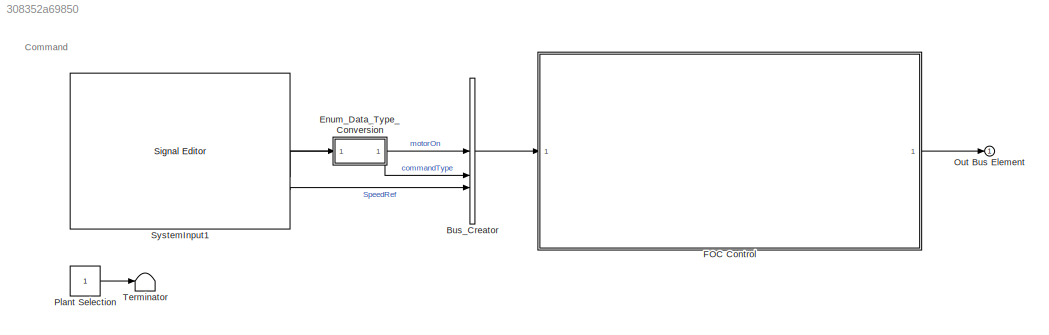
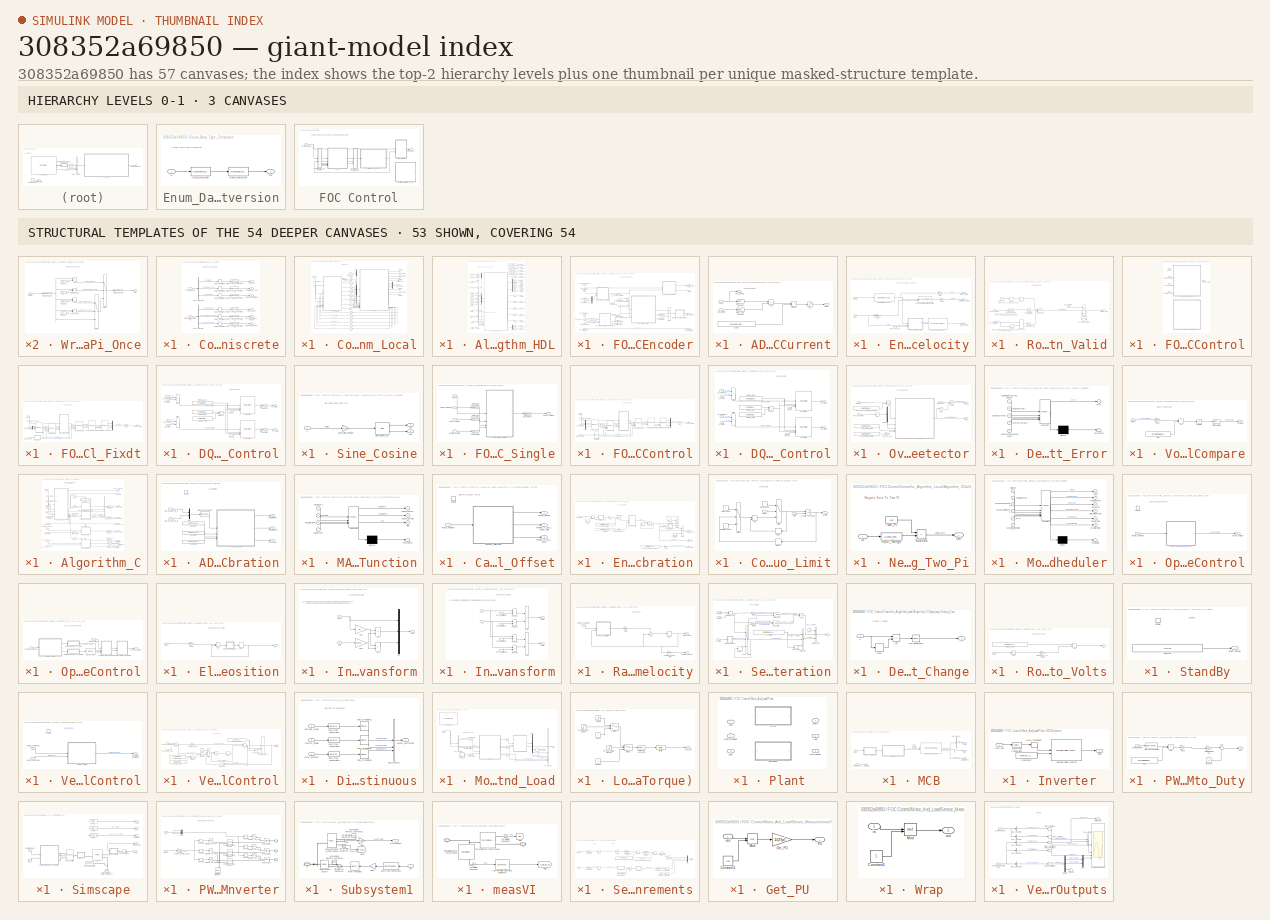
[diagram: thumbnail index - top-2 hierarchy levels (3 canvases) + 53 structural-template representatives of the remaining 54 canvases]
MODEL slx_308352a69850
KIND model
CONFIG AbsTol = auto
CONFIG EnableMultiTasking = off
CONFIG FixedStep = auto
CONFIG MaxStep = auto
CONFIG MinStep = auto
CONFIG RelTol = 1e-3
CONFIG SampleTimeConstraint = Unconstrained
CONFIG SolverName = VariableStepAuto
CONFIG StartTime = 0.0
CONFIG StopTime = 8
BLOCK [BusCreator] Bus_Creator
  DisplayOption = bar
  InheritFromInputs = on
  Inputs = 3
BLOCK [SubSystem] Enum_Data_Type_Conversion
BLOCK [DataTypeConversion] Enum_Data_Type_Conversion/Enum_Data_Type
  OutDataTypeStr = dataTypeStr
  RndMeth = Floor
  SaturateOnIntegerOverflow = off
BLOCK [Inport] Enum_Data_Type_Conversion/In
BLOCK [DataTypeConversion] Enum_Data_Type_Conversion/Int32_Data_Type
  OutDataTypeStr = int32
  RndMeth = Floor
  SaturateOnIntegerOverflow = off
BLOCK [Outport] Enum_Data_Type_Conversion/Out
BLOCK [SubSystem] FOC Control
BLOCK [SubSystem] FOC Control/Continuous_To_Discrete
BLOCK [Outport] FOC Control/Continuous_To_Discrete/ADC_Count
  Port = 4
BLOCK [BusSelector] FOC Control/Continuous_To_Discrete/Bus_Selector1
  OutputSignals = adcCount,encoderIndexFound,encoderCount
BLOCK [BusSelector] FOC Control/Continuous_To_Discrete/Bus_Selector2
  OutputSignals = motorOn,commandType,SpeedRef
BLOCK [Outport] FOC Control/Continuous_To_Discrete/Command_Type
  Port = 2
BLOCK [DataTypeConversion] FOC Control/Continuous_To_Discrete/Data_Type_Conversion1
  RndMeth = Floor
  SaturateOnIntegerOverflow = off
BLOCK [DataTypeConversion] FOC Control/Continuous_To_Discrete/Data_Type_Conversion2
  RndMeth = Floor
  SaturateOnIntegerOverflow = off
BLOCK [DataTypeConversion] FOC Control/Continuous_To_Discrete/Data_Type_Conversion3
  RndMeth = Floor
  SaturateOnIntegerOverflow = off
BLOCK [DataTypeConversion] FOC Control/Continuous_To_Discrete/Data_Type_Conversion4
  RndMeth = Floor
  SaturateOnIntegerOverflow = off
BLOCK [DataTypeConversion] FOC Control/Continuous_To_Discrete/Data_Type_Conversion5
  RndMeth = Floor
  SaturateOnIntegerOverflow = off
BLOCK [DataTypeConversion] FOC Control/Continuous_To_Discrete/Data_Type_Conversion6
  RndMeth = Floor
  SaturateOnIntegerOverflow = off
BLOCK [Outport] FOC Control/Continuous_To_Discrete/Encoder_Count
  Port = 6
BLOCK [Outport] FOC Control/Continuous_To_Discrete/Encoder_Index_Found
  Port = 5
BLOCK [Inport] FOC Control/Continuous_To_Discrete/Motor_Measurements
  Port = 2
BLOCK [Outport] FOC Control/Continuous_To_Discrete/Motor_On
BLOCK [RateTransition] FOC Control/Continuous_To_Discrete/Rate_Transition1
  Deterministic = off
  Integrity = off
BLOCK [RateTransition] FOC Control/Continuous_To_Discrete/Rate_Transition2
  Deterministic = off
  Integrity = off
BLOCK [RateTransition] FOC Control/Continuous_To_Discrete/Rate_Transition3
  Deterministic = off
  Integrity = off
BLOCK [RateTransition] FOC Control/Continuous_To_Discrete/Rate_Transition4
  Deterministic = off
BLOCK [RateTransition] FOC Control/Continuous_To_Discrete/Rate_Transition5
  Deterministic = off
BLOCK [RateTransition] FOC Control/Continuous_To_Discrete/Rate_Transition6
  Deterministic = off
BLOCK [Inport] FOC Control/Continuous_To_Discrete/System_Inputs
BLOCK [Outport] FOC Control/Continuous_To_Discrete/Velocity_Command
  Port = 3
BLOCK [SubSystem] FOC Control/Controller_Algorithm_Local
  Commented = on
  DataTypeOverrideAppliesTo = Fixed-point
  ShowPortLabels = none
  TreatAsAtomicUnit = on
BLOCK [Inport] FOC Control/Controller_Algorithm_Local/ADC_Count
  Interpolate = off
  Port = 4
  PortDimensions = 2
  SampleTime = sampleTime.CurrentControl
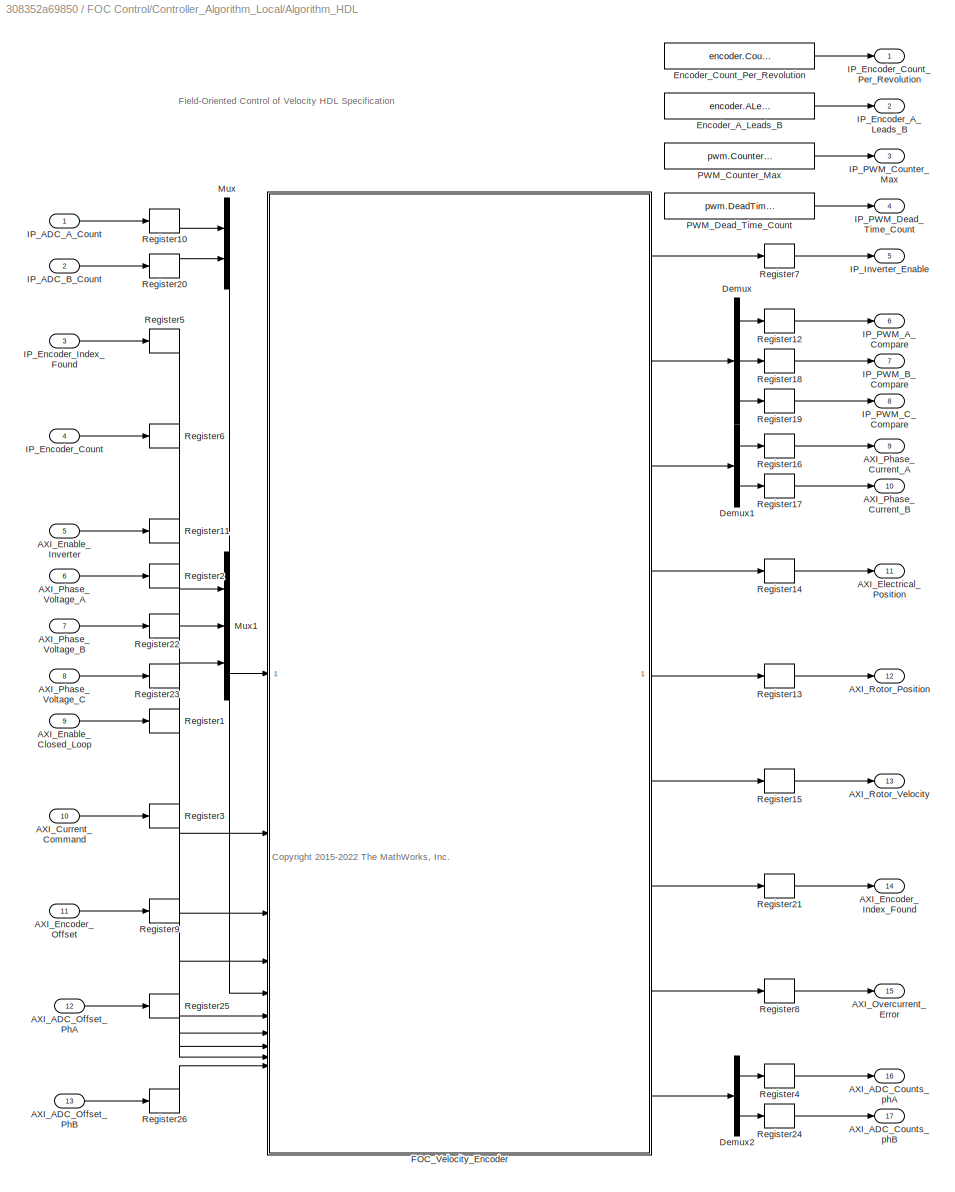
BLOCK [SubSystem] FOC Control/Controller_Algorithm_Local/Algorithm_HDL
BLOCK [Outport] FOC Control/Controller_Algorithm_Local/Algorithm_HDL/AXI_ADC_Counts_phA
  Port = 16
  VectorParamsAs1DForOutWhenUnconnected = off
BLOCK [Outport] FOC Control/Controller_Algorithm_Local/Algorithm_HDL/AXI_ADC_Counts_phB
  Port = 17
  VectorParamsAs1DForOutWhenUnconnected = off
BLOCK [Inport] FOC Control/Controller_Algorithm_Local/Algorithm_HDL/AXI_ADC_Offset_PhA
  Port = 12
BLOCK [Inport] FOC Control/Controller_Algorithm_Local/Algorithm_HDL/AXI_ADC_Offset_PhB
  Port = 13
BLOCK [Inport] FOC Control/Controller_Algorithm_Local/Algorithm_HDL/AXI_Current_Command
  Port = 10
BLOCK [Outport] FOC Control/Controller_Algorithm_Local/Algorithm_HDL/AXI_Electrical_Position
  Port = 11
  VectorParamsAs1DForOutWhenUnconnected = off
BLOCK [Inport] FOC Control/Controller_Algorithm_Local/Algorithm_HDL/AXI_Enable_Closed_Loop
  Port = 9
BLOCK [Inport] FOC Control/Controller_Algorithm_Local/Algorithm_HDL/AXI_Enable_Inverter
  Port = 5
BLOCK [Outport] FOC Control/Controller_Algorithm_Local/Algorithm_HDL/AXI_Encoder_Index_Found
  Port = 14
  VectorParamsAs1DForOutWhenUnconnected = off
BLOCK [Inport] FOC Control/Controller_Algorithm_Local/Algorithm_HDL/AXI_Encoder_Offset
  Port = 11
BLOCK [Outport] FOC Control/Controller_Algorithm_Local/Algorithm_HDL/AXI_Overcurrent_Error
  Port = 15
  VectorParamsAs1DForOutWhenUnconnected = off
BLOCK [Outport] FOC Control/Controller_Algorithm_Local/Algorithm_HDL/AXI_Phase_Current_A
  Port = 9
  VectorParamsAs1DForOutWhenUnconnected = off
BLOCK [Outport] FOC Control/Controller_Algorithm_Local/Algorithm_HDL/AXI_Phase_Current_B
  Port = 10
  VectorParamsAs1DForOutWhenUnconnected = off
BLOCK [Inport] FOC Control/Controller_Algorithm_Local/Algorithm_HDL/AXI_Phase_Voltage_A
  Port = 6
BLOCK [Inport] FOC Control/Controller_Algorithm_Local/Algorithm_HDL/AXI_Phase_Voltage_B
  Port = 7
BLOCK [Inport] FOC Control/Controller_Algorithm_Local/Algorithm_HDL/AXI_Phase_Voltage_C
  Port = 8
BLOCK [Outport] FOC Control/Controller_Algorithm_Local/Algorithm_HDL/AXI_Rotor_Position
  Port = 12
  VectorParamsAs1DForOutWhenUnconnected = off
BLOCK [Outport] FOC Control/Controller_Algorithm_Local/Algorithm_HDL/AXI_Rotor_Velocity
  Port = 13
  VectorParamsAs1DForOutWhenUnconnected = off
BLOCK [Demux] FOC Control/Controller_Algorithm_Local/Algorithm_HDL/Demux
  Outputs = 3
BLOCK [Demux] FOC Control/Controller_Algorithm_Local/Algorithm_HDL/Demux1
  Outputs = 2
BLOCK [Demux] FOC Control/Controller_Algorithm_Local/Algorithm_HDL/Demux2
  Outputs = 2
BLOCK [Constant] FOC Control/Controller_Algorithm_Local/Algorithm_HDL/Encoder_A_Leads_B
  OutDataTypeStr = fixdt(0,1,0)
  SampleTime = -1
  Value = encoder.ALeadsB
BLOCK [Constant] FOC Control/Controller_Algorithm_Local/Algorithm_HDL/Encoder_Count_Per_Revolution
  OutDataTypeStr = fixdt(0,15,0)
  SampleTime = -1
  Value = encoder.CountPerRevolution
BLOCK [SubSystem] FOC Control/Controller_Algorithm_Local/Algorithm_HDL/FOC_Velocity_Encoder
BLOCK [SubSystem] FOC Control/Controller_Algorithm_Local/Algorithm_HDL/FOC_Velocity_Encoder/ADC_Count_To_Current
BLOCK [Outport] FOC Control/Controller_Algorithm_Local/Algorithm_HDL/FOC_Velocity_Encoder/ADC_Count_To_Current/ADC_Counts
  Port = 2
  VectorParamsAs1DForOutWhenUnconnected = off
BLOCK [Inport] FOC Control/Controller_Algorithm_Local/Algorithm_HDL/FOC_Velocity_Encoder/ADC_Count_To_Current/ADC_Offsets
  Port = 2
BLOCK [Sum] FOC Control/Controller_Algorithm_Local/Algorithm_HDL/FOC_Velocity_Encoder/ADC_Count_To_Current/Add
  IconShape = rectangular
  Inputs = +-
  LockScale = on
  OutDataTypeStr = int32
  SaturateOnIntegerOverflow = on
BLOCK [Inport] FOC Control/Controller_Algorithm_Local/Algorithm_HDL/FOC_Velocity_Encoder/ADC_Count_To_Current/Count
  LockScale = on
  OutDataTypeStr = uint16
  OutMax = 2^16-1
  OutMin = 0
BLOCK [Outport] FOC Control/Controller_Algorithm_Local/Algorithm_HDL/FOC_Velocity_Encoder/ADC_Count_To_Current/Current
  VectorParamsAs1DForOutWhenUnconnected = off
BLOCK [DataTypeConversion] FOC Control/Controller_Algorithm_Local/Algorithm_HDL/FOC_Velocity_Encoder/ADC_Count_To_Current/Data_Type_Convert
  LockScale = on
  OutDataTypeStr = int32
  RndMeth = Floor
  SaturateOnIntegerOverflow = off
BLOCK [DataTypeConversion] FOC Control/Controller_Algorithm_Local/Algorithm_HDL/FOC_Velocity_Encoder/ADC_Count_To_Current/Data_Type_Convert1
  LockScale = on
  OutDataTypeStr = int32
  RndMeth = Floor
  SaturateOnIntegerOverflow = off
BLOCK [Product] FOC Control/Controller_Algorithm_Local/Algorithm_HDL/FOC_Velocity_Encoder/ADC_Count_To_Current/Product
  OutDataTypeStr = fixdt(1,32,19)
BLOCK [Saturate] FOC Control/Controller_Algorithm_Local/Algorithm_HDL/FOC_Velocity_Encoder/ADC_Count_To_Current/Sat
  AttributesFormatString = -----------------\nLower = %<LowerLimit>\nUpper = %<UpperLimit>
  LowerLimit = dataRange.PhaseCurrent.Min
  OutDataTypeStr = fixdt(1,16,11)
  UpperLimit = dataRange.PhaseCurrent.Max
BLOCK [Constant] FOC Control/Controller_Algorithm_Local/Algorithm_HDL/FOC_Velocity_Encoder/ADC_Count_To_Current/Scalar
  OutDataTypeStr = fixdt(1,16,19)
  SampleTime = -1
  Value = paramAdcAmperePerCount
BLOCK [Outport] FOC Control/Controller_Algorithm_Local/Algorithm_HDL/FOC_Velocity_Encoder/ADC_Counts
  Port = 9
  VectorParamsAs1DForOutWhenUnconnected = off
BLOCK [Inport] FOC Control/Controller_Algorithm_Local/Algorithm_HDL/FOC_Velocity_Encoder/ADC_Offset_PhA
  OutDataTypeStr = uint16
  Port = 9
BLOCK [Inport] FOC Control/Controller_Algorithm_Local/Algorithm_HDL/FOC_Velocity_Encoder/ADC_Offset_PhB
  OutDataTypeStr = uint16
  Port = 10
BLOCK [Inport] FOC Control/Controller_Algorithm_Local/Algorithm_HDL/FOC_Velocity_Encoder/ADC_Phase_Currents
BLOCK [Inport] FOC Control/Controller_Algorithm_Local/Algorithm_HDL/FOC_Velocity_Encoder/Current_Command
  Port = 7
BLOCK [Outport] FOC Control/Controller_Algorithm_Local/Algorithm_HDL/FOC_Velocity_Encoder/Electrical_Position
  Port = 4
  VectorParamsAs1DForOutWhenUnconnected = off
BLOCK [Inport] FOC Control/Controller_Algorithm_Local/Algorithm_HDL/FOC_Velocity_Encoder/Enable_Current_Control
  OutDataTypeStr = boolean
  OutMax = 1
  OutMin = 0
  Port = 6
BLOCK [InportShadow] FOC Control/Controller_Algorithm_Local/Algorithm_HDL/FOC_Velocity_Encoder/Enable_Current_Control1
  OutDataTypeStr = boolean
  OutMax = 1
  OutMin = 0
  Port = 6
BLOCK [Inport] FOC Control/Controller_Algorithm_Local/Algorithm_HDL/FOC_Velocity_Encoder/Enable_Inverter_In
  LockScale = on
  OutDataTypeStr = boolean
  Port = 4
BLOCK [Outport] FOC Control/Controller_Algorithm_Local/Algorithm_HDL/FOC_Velocity_Encoder/Enable_Inverter_Out
  OutMax = 1
  OutMin = 0
  VectorParamsAs1DForOutWhenUnconnected = off
BLOCK [Inport] FOC Control/Controller_Algorithm_Local/Algorithm_HDL/FOC_Velocity_Encoder/Encoder_Count
  LockScale = on
  Port = 3
BLOCK [Inport] FOC Control/Controller_Algorithm_Local/Algorithm_HDL/FOC_Velocity_Encoder/Encoder_Index_Found
  LockScale = on
  Port = 2
BLOCK [InportShadow] FOC Control/Controller_Algorithm_Local/Algorithm_HDL/FOC_Velocity_Encoder/Encoder_Index_Found1
  LockScale = on
  Port = 2
BLOCK [Outport] FOC Control/Controller_Algorithm_Local/Algorithm_HDL/FOC_Velocity_Encoder/Encoder_Index_Found_Out
  OutMax = 1
  OutMin = 0
  Port = 7
  VectorParamsAs1DForOutWhenUnconnected = off
BLOCK [Inport] FOC Control/Controller_Algorithm_Local/Algorithm_HDL/FOC_Velocity_Encoder/Encoder_Offset
  Port = 8
BLOCK [SubSystem] FOC Control/Controller_Algorithm_Local/Algorithm_HDL/FOC_Velocity_Encoder/Encoder_To_Position_And_Velocity
  VariantControl = ctrlVariantPosSns==PosSnsEnum.Encoder
BLOCK [Inport] FOC Control/Controller_Algorithm_Local/Algorithm_HDL/FOC_Velocity_Encoder/Encoder_To_Position_And_Velocity/Count
  Port = 2
  SampleTime = sampleTime.EncoderPosition
BLOCK [Outport] FOC Control/Controller_Algorithm_Local/Algorithm_HDL/FOC_Velocity_Encoder/Encoder_To_Position_And_Velocity/Electrical_Position
  Port = 2
  VectorParamsAs1DForOutWhenUnconnected = off
BLOCK [Gain] FOC Control/Controller_Algorithm_Local/Algorithm_HDL/FOC_Velocity_Encoder/Encoder_To_Position_And_Velocity/Gain
  Gain = 2*pi
  OutDataTypeStr = Inherit: Same as input
BLOCK [Gain] FOC Control/Controller_Algorithm_Local/Algorithm_HDL/FOC_Velocity_Encoder/Encoder_To_Position_And_Velocity/Gain1
  Gain = 1/(2*pi)
  OutDataTypeStr = fixdt(1,16,12)
BLOCK [Gain] FOC Control/Controller_Algorithm_Local/Algorithm_HDL/FOC_Velocity_Encoder/Encoder_To_Position_And_Velocity/Gain2
  Gain = 2*pi
  OutDataTypeStr = Inherit: Same as input
BLOCK [Inport] FOC Control/Controller_Algorithm_Local/Algorithm_HDL/FOC_Velocity_Encoder/Encoder_To_Position_And_Velocity/Index_Found
  NameLocation = top
  OutDataTypeStr = boolean
BLOCK [Reference] FOC Control/Controller_Algorithm_Local/Algorithm_HDL/FOC_Velocity_Encoder/Encoder_To_Position_And_Velocity/Mechanical to Electrical Position  REF=mcbpositiondecoderlib/Mechanical to Electrical Position
  SourceBlock = mcbpositiondecoderlib/Mechanical to Electrical Position
  SourceType = Mechanical to Electrical Position
BLOCK [Inport] FOC Control/Controller_Algorithm_Local/Algorithm_HDL/FOC_Velocity_Encoder/Encoder_To_Position_And_Velocity/Offset
  OutDataTypeStr = fixdt(1,16,12)
  Port = 3
  SampleTime = sampleTime.EncoderPosition
BLOCK [Reference] FOC Control/Controller_Algorithm_Local/Algorithm_HDL/FOC_Velocity_Encoder/Encoder_To_Position_And_Velocity/Quadrature Decoder  REF=mcbpositiondecoderlib/Quadrature Decoder
  SourceBlock = mcbpositiondecoderlib/Quadrature Decoder
  SourceType = Quadrature Decoder
BLOCK [Outport] FOC Control/Controller_Algorithm_Local/Algorithm_HDL/FOC_Velocity_Encoder/Encoder_To_Position_And_Velocity/Rotor_Position
  VectorParamsAs1DForOutWhenUnconnected = off
BLOCK [SubSystem] FOC Control/Controller_Algorithm_Local/Algorithm_HDL/FOC_Velocity_Encoder/Encoder_To_Position_And_Velocity/Rotor_Position_Valid
BLOCK [Constant] FOC Control/Controller_Algorithm_Local/Algorithm_HDL/FOC_Velocity_Encoder/Encoder_To_Position_And_Velocity/Rotor_Position_Valid/Constant
  OutDataTypeStr = fixdt(1,16,14)
  SampleTime = -1
BLOCK [Delay] FOC Control/Controller_Algorithm_Local/Algorithm_HDL/FOC_Velocity_Encoder/Encoder_To_Position_And_Velocity/Rotor_Position_Valid/Delay1
  DelayLength = 1
  InputPortMap = u0
BLOCK [Delay] FOC Control/Controller_Algorithm_Local/Algorithm_HDL/FOC_Velocity_Encoder/Encoder_To_Position_And_Velocity/Rotor_Position_Valid/Delay2
  DelayLength = 1
  InputPortMap = u0
BLOCK [Delay] FOC Control/Controller_Algorithm_Local/Algorithm_HDL/FOC_Velocity_Encoder/Encoder_To_Position_And_Velocity/Rotor_Position_Valid/Delay3
  DelayLength = 1
  InputPortMap = u0
BLOCK [Reference] FOC Control/Controller_Algorithm_Local/Algorithm_HDL/FOC_Velocity_Encoder/Encoder_To_Position_And_Velocity/Rotor_Position_Valid/Detect_Change  REF=simulink/Logic and Bit
Operations/Detect
Change
  SourceBlock = simulink/Logic and Bit\nOperations/Detect\nChange
  SourceType = Detect Change
BLOCK [RelationalOperator] FOC Control/Controller_Algorithm_Local/Algorithm_HDL/FOC_Velocity_Encoder/Encoder_To_Position_And_Velocity/Rotor_Position_Valid/Detect_Rise
  InputSameDT = off
  Operator = >
  OutDataTypeStr = boolean
  ZeroCross = off
BLOCK [Inport] FOC Control/Controller_Algorithm_Local/Algorithm_HDL/FOC_Velocity_Encoder/Encoder_To_Position_And_Velocity/Rotor_Position_Valid/Encoder_Index_Found
  LockScale = on
  OutDataTypeStr = boolean
  Port = 3
  SampleTime = sampleTime.EncoderPosition
BLOCK [Inport] FOC Control/Controller_Algorithm_Local/Algorithm_HDL/FOC_Velocity_Encoder/Encoder_To_Position_And_Velocity/Rotor_Position_Valid/Encoder_Offset
  OutDataTypeStr = fixdt(1,16,12)
  OutMax = 2*pi
  OutMin = -2*pi
  Port = 2
  SampleTime = sampleTime.EncoderPosition
BLOCK [Delay] FOC Control/Controller_Algorithm_Local/Algorithm_HDL/FOC_Velocity_Encoder/Encoder_To_Position_And_Velocity/Rotor_Position_Valid/Last_Valid_Position
  DelayLength = 1
  InputPortMap = u0
BLOCK [Logic] FOC Control/Controller_Algorithm_Local/Algorithm_HDL/FOC_Velocity_Encoder/Encoder_To_Position_And_Velocity/Rotor_Position_Valid/Logical_AND
  AllPortsSameDT = off
  IconShape = distinctive
  Inputs = 3
  OutDataTypeStr = boolean
BLOCK [Logic] FOC Control/Controller_Algorithm_Local/Algorithm_HDL/FOC_Velocity_Encoder/Encoder_To_Position_And_Velocity/Rotor_Position_Valid/No_Change_Detected
  AllPortsSameDT = off
  IconShape = distinctive
  Operator = NOT
  OutDataTypeStr = boolean
BLOCK [Logic] FOC Control/Controller_Algorithm_Local/Algorithm_HDL/FOC_Velocity_Encoder/Encoder_To_Position_And_Velocity/Rotor_Position_Valid/No_Rise_Detected
  AllPortsSameDT = off
  IconShape = distinctive
  Operator = NOT
  OutDataTypeStr = boolean
BLOCK [Outport] FOC Control/Controller_Algorithm_Local/Algorithm_HDL/FOC_Velocity_Encoder/Encoder_To_Position_And_Velocity/Rotor_Position_Valid/Position_Delta
  SampleTime = sampleTime.EncoderPosition
  VectorParamsAs1DForOutWhenUnconnected = off
BLOCK [Inport] FOC Control/Controller_Algorithm_Local/Algorithm_HDL/FOC_Velocity_Encoder/Encoder_To_Position_And_Velocity/Rotor_Position_Valid/Rotor_Position
  OutDataTypeStr = fixdt(1,16,12)
  OutMax = 2*pi
  OutMin = 0
  SampleTime = sampleTime.EncoderPosition
BLOCK [Switch] FOC Control/Controller_Algorithm_Local/Algorithm_HDL/FOC_Velocity_Encoder/Encoder_To_Position_And_Velocity/Rotor_Position_Valid/Switch
  Criteria = u2 ~= 0
  OutDataTypeStr = fixdt(1,16,12)
  SaturateOnIntegerOverflow = off
BLOCK [Outport] FOC Control/Controller_Algorithm_Local/Algorithm_HDL/FOC_Velocity_Encoder/Encoder_To_Position_And_Velocity/Rotor_Velocity
  Port = 3
  VectorParamsAs1DForOutWhenUnconnected = off
BLOCK [Reference] FOC Control/Controller_Algorithm_Local/Algorithm_HDL/FOC_Velocity_Encoder/Encoder_To_Position_And_Velocity/Speed Measurement  REF=mcbpositiondecoderlib/Speed Measurement
  SourceBlock = mcbpositiondecoderlib/Speed Measurement
  SourceType = Speed Measurement
BLOCK [Outport] FOC Control/Controller_Algorithm_Local/Algorithm_HDL/FOC_Velocity_Encoder/Error
  OutMax = 1
  OutMin = 0
  Port = 8
  VectorParamsAs1DForOutWhenUnconnected = off
BLOCK [SubSystem] FOC Control/Controller_Algorithm_Local/Algorithm_HDL/FOC_Velocity_Encoder/FOC_Current_Control
  LabelModeActiveChoice = FixedPoint
  Variant = on
  VariantControl = Choice
  VariantControlMode = label
BLOCK [Inport] FOC Control/Controller_Algorithm_Local/Algorithm_HDL/FOC_Velocity_Encoder/FOC_Current_Control/Current_Command
  OutDataTypeStr = fixdt(1,16,11)
  Port = 2
BLOCK [Inport] FOC Control/Controller_Algorithm_Local/Algorithm_HDL/FOC_Velocity_Encoder/FOC_Current_Control/Electrical_Position
  Port = 4
BLOCK [SubSystem] FOC Control/Controller_Algorithm_Local/Algorithm_HDL/FOC_Velocity_Encoder/FOC_Current_Control/FOC_Current_Control_Fixdt
  VariantControl = FixedPoint
BLOCK [Reference] FOC Control/Controller_Algorithm_Local/Algorithm_HDL/FOC_Velocity_Encoder/FOC_Current_Control/FOC_Current_Control_Fixdt/Clarke Transform  REF=mcbeeMathTransformLib/Clarke Transform
  LibrarySourceBlock = mcbcontrolslib/Clarke Transform
  SourceBlock = mcbeeMathTransformLib/Clarke Transform
  SourceType = Clarke Transform
BLOCK [Inport] FOC Control/Controller_Algorithm_Local/Algorithm_HDL/FOC_Velocity_Encoder/FOC_Current_Control/FOC_Current_Control_Fixdt/Current_Command
  OutDataTypeStr = fixdt(1,16,11)
  OutMax = dataRange.PhaseCurrent.Max
  OutMin = dataRange.PhaseCurrent.Min
  Port = 2
  SampleTime = sampleTime.CurrentControl
BLOCK [SubSystem] FOC Control/Controller_Algorithm_Local/Algorithm_HDL/FOC_Velocity_Encoder/FOC_Current_Control/FOC_Current_Control_Fixdt/DQ_Current_Control
BLOCK [Constant] FOC Control/Controller_Algorithm_Local/Algorithm_HDL/FOC_Velocity_Encoder/FOC_Current_Control/FOC_Current_Control_Fixdt/DQ_Current_Control/D_Command
  OutDataTypeStr = fixdt(1,16,0)
  SampleTime = -1
  Value = 0
BLOCK [Reference] FOC Control/Controller_Algorithm_Local/Algorithm_HDL/FOC_Velocity_Encoder/FOC_Current_Control/FOC_Current_Control_Fixdt/DQ_Current_Control/D_Control  REF=slpidlib/PID Controller
  LibrarySourceBlock = mcblib/Controls/Controllers/PI Controller
  SourceBlock = slpidlib/PID Controller
  SourceType = PID 1dof
BLOCK [Inport] FOC Control/Controller_Algorithm_Local/Algorithm_HDL/FOC_Velocity_Encoder/FOC_Current_Control/FOC_Current_Control_Fixdt/DQ_Current_Control/D_Current
  Port = 3
BLOCK [Outport] FOC Control/Controller_Algorithm_Local/Algorithm_HDL/FOC_Velocity_Encoder/FOC_Current_Control/FOC_Current_Control_Fixdt/DQ_Current_Control/D_Voltage
  VectorParamsAs1DForOutWhenUnconnected = off
BLOCK [DataTypeConversion] FOC Control/Controller_Algorithm_Local/Algorithm_HDL/FOC_Velocity_Encoder/FOC_Current_Control/FOC_Current_Control_Fixdt/DQ_Current_Control/Data_Type_Convert
  OutDataTypeStr = fixdt(1,16,11)
  RndMeth = Simplest
  SaturateOnIntegerOverflow = off
BLOCK [DataTypeConversion] FOC Control/Controller_Algorithm_Local/Algorithm_HDL/FOC_Velocity_Encoder/FOC_Current_Control/FOC_Current_Control_Fixdt/DQ_Current_Control/Data_Type_Convert1
  OutDataTypeStr = fixdt(1,16,11)
  RndMeth = Simplest
  SaturateOnIntegerOverflow = off
BLOCK [Sum] FOC Control/Controller_Algorithm_Local/Algorithm_HDL/FOC_Velocity_Encoder/FOC_Current_Control/FOC_Current_Control_Fixdt/DQ_Current_Control/Error
  IconShape = rectangular
  Inputs = +-
  OutDataTypeStr = fixdt(1,32,24)
BLOCK [Sum] FOC Control/Controller_Algorithm_Local/Algorithm_HDL/FOC_Velocity_Encoder/FOC_Current_Control/FOC_Current_Control_Fixdt/DQ_Current_Control/Error1
  IconShape = rectangular
  Inputs = +-
  OutDataTypeStr = fixdt(1,32,24)
BLOCK [Constant] FOC Control/Controller_Algorithm_Local/Algorithm_HDL/FOC_Velocity_Encoder/FOC_Current_Control/FOC_Current_Control_Fixdt/DQ_Current_Control/Integral_Gain
  OutDataTypeStr = fixdt(1,16,3)
  SampleTime = -1
  Value = PI_params.Ki_i
BLOCK [Constant] FOC Control/Controller_Algorithm_Local/Algorithm_HDL/FOC_Velocity_Encoder/FOC_Current_Control/FOC_Current_Control_Fixdt/DQ_Current_Control/Integral_Gain1
  OutDataTypeStr = fixdt(1,16,3)
  SampleTime = -1
  Value = PI_params.Kp_i
BLOCK [Product] FOC Control/Controller_Algorithm_Local/Algorithm_HDL/FOC_Velocity_Encoder/FOC_Current_Control/FOC_Current_Control_Fixdt/DQ_Current_Control/Product
  OutDataTypeStr = fixdt(1,16,15)
BLOCK [Inport] FOC Control/Controller_Algorithm_Local/Algorithm_HDL/FOC_Velocity_Encoder/FOC_Current_Control/FOC_Current_Control_Fixdt/DQ_Current_Control/Q_Command
  Port = 2
  SampleTime = sampleTime.CurrentControl
BLOCK [Reference] FOC Control/Controller_Algorithm_Local/Algorithm_HDL/FOC_Velocity_Encoder/FOC_Current_Control/FOC_Current_Control_Fixdt/DQ_Current_Control/Q_Control  REF=slpidlib/PID Controller
  LibrarySourceBlock = mcblib/Controls/Controllers/PI Controller
  SourceBlock = slpidlib/PID Controller
  SourceType = PID 1dof
BLOCK [Inport] FOC Control/Controller_Algorithm_Local/Algorithm_HDL/FOC_Velocity_Encoder/FOC_Current_Control/FOC_Current_Control_Fixdt/DQ_Current_Control/Q_Current
  Port = 4
BLOCK [Outport] FOC Control/Controller_Algorithm_Local/Algorithm_HDL/FOC_Velocity_Encoder/FOC_Current_Control/FOC_Current_Control_Fixdt/DQ_Current_Control/Q_Voltage
  Port = 2
  VectorParamsAs1DForOutWhenUnconnected = off
BLOCK [Inport] FOC Control/Controller_Algorithm_Local/Algorithm_HDL/FOC_Velocity_Encoder/FOC_Current_Control/FOC_Current_Control_Fixdt/DQ_Current_Control/Reset
BLOCK [InportShadow] FOC Control/Controller_Algorithm_Local/Algorithm_HDL/FOC_Velocity_Encoder/FOC_Current_Control/FOC_Current_Control_Fixdt/DQ_Current_Control/Reset1
BLOCK [Constant] FOC Control/Controller_Algorithm_Local/Algorithm_HDL/FOC_Velocity_Encoder/FOC_Current_Control/FOC_Current_Control_Fixdt/DQ_Current_Control/Sample_Time
  OutDataTypeStr = fixdt(1,16,27)
  SampleTime = -1
  Value = sampleTime.CurrentControl
BLOCK [Demux] FOC Control/Controller_Algorithm_Local/Algorithm_HDL/FOC_Velocity_Encoder/FOC_Current_Control/FOC_Current_Control_Fixdt/Demux
  Outputs = 2
BLOCK [Inport] FOC Control/Controller_Algorithm_Local/Algorithm_HDL/FOC_Velocity_Encoder/FOC_Current_Control/FOC_Current_Control_Fixdt/Electrical_Position
  OutDataTypeStr = fixdt(1,16,12)
  OutMax = 2*pi
  OutMin = 0
  Port = 4
  SampleTime = sampleTime.CurrentControl
BLOCK [Reference] FOC Control/Controller_Algorithm_Local/Algorithm_HDL/FOC_Velocity_Encoder/FOC_Current_Control/FOC_Current_Control_Fixdt/Inverse Clarke Transform  REF=mcbeeMathTransformLib/Inverse Clarke Transform
  LibrarySourceBlock = mcbcontrolslib/Inverse Clarke Transform
  SourceBlock = mcbeeMathTransformLib/Inverse Clarke Transform
  SourceType = Inverse Clarke Transform
BLOCK [Reference] FOC Control/Controller_Algorithm_Local/Algorithm_HDL/FOC_Velocity_Encoder/FOC_Current_Control/FOC_Current_Control_Fixdt/Inverse Park Transform  REF=mcbeeMathTransformLib/Park to Clarke
Angle Transform
  LibrarySourceBlock = mcbcontrolslib/Inverse Park Transform
  SourceBlock = mcbeeMathTransformLib/Park to Clarke\nAngle Transform
  SourceType = Park to Clarke Angle Transform
BLOCK [Mux] FOC Control/Controller_Algorithm_Local/Algorithm_HDL/FOC_Velocity_Encoder/FOC_Current_Control/FOC_Current_Control_Fixdt/Mux
  DisplayOption = bar
  Inputs = 3
BLOCK [Reference] FOC Control/Controller_Algorithm_Local/Algorithm_HDL/FOC_Velocity_Encoder/FOC_Current_Control/FOC_Current_Control_Fixdt/PWM Reference Generator  REF=mcbcontrolslib/PWM Reference Generator
  LibrarySourceBlock = mcbhdllib/Controls/Math Transforms/PWM Reference Generator
  SourceBlock = mcbcontrolslib/PWM Reference Generator
  SourceType = PWM Modulation
BLOCK [Reference] FOC Control/Controller_Algorithm_Local/Algorithm_HDL/FOC_Velocity_Encoder/FOC_Current_Control/FOC_Current_Control_Fixdt/Park Transform  REF=mcbeeMathTransformLib/Clarke to Park
Angle Transform
  LibrarySourceBlock = mcbcontrolslib/Park Transform
  SourceBlock = mcbeeMathTransformLib/Clarke to Park\nAngle Transform
  SourceType = Clarke to Park Angle Transform
BLOCK [Inport] FOC Control/Controller_Algorithm_Local/Algorithm_HDL/FOC_Velocity_Encoder/FOC_Current_Control/FOC_Current_Control_Fixdt/Phase_Current
  OutDataTypeStr = fixdt(1,16,11)
  OutMax = dataRange.PhaseCurrent.Max
  OutMin = dataRange.PhaseCurrent.Min
  Port = 3
  SampleTime = sampleTime.CurrentControl
BLOCK [Outport] FOC Control/Controller_Algorithm_Local/Algorithm_HDL/FOC_Velocity_Encoder/FOC_Current_Control/FOC_Current_Control_Fixdt/Phase_Voltage
  SampleTime = sampleTime.CurrentControl
  VectorParamsAs1DForOutWhenUnconnected = off
BLOCK [Inport] FOC Control/Controller_Algorithm_Local/Algorithm_HDL/FOC_Velocity_Encoder/FOC_Current_Control/FOC_Current_Control_Fixdt/Reset
  SampleTime = sampleTime.CurrentControl
BLOCK [Saturate] FOC Control/Controller_Algorithm_Local/Algorithm_HDL/FOC_Velocity_Encoder/FOC_Current_Control/FOC_Current_Control_Fixdt/Sat
  AttributesFormatString = -----------------\nLower = %<LowerLimit>\nUpper = %<UpperLimit>
  LowerLimit = dataRange.PhaseVoltage.Min
  OutDataTypeStr = fixdt(1,16,11)
  UpperLimit = dataRange.PhaseVoltage.Max
BLOCK [SubSystem] FOC Control/Controller_Algorithm_Local/Algorithm_HDL/FOC_Velocity_Encoder/FOC_Current_Control/FOC_Current_Control_Fixdt/Sine_Cosine
BLOCK [Outport] FOC Control/Controller_Algorithm_Local/Algorithm_HDL/FOC_Velocity_Encoder/FOC_Current_Control/FOC_Current_Control_Fixdt/Sine_Cosine/Cos
  Port = 2
  VectorParamsAs1DForOutWhenUnconnected = off
BLOCK [Gain] FOC Control/Controller_Algorithm_Local/Algorithm_HDL/FOC_Velocity_Encoder/FOC_Current_Control/FOC_Current_Control_Fixdt/Sine_Cosine/Normalize_Position
  AttributesFormatString = ------------------------------\nGain = %<Gain>
  Gain = 1/(2*pi)
  OutDataTypeStr = fixdt(1,32,30)
  OutMax = 1
  OutMin = 0
  ParamDataTypeStr = fixdt(1,16,17)
BLOCK [Inport] FOC Control/Controller_Algorithm_Local/Algorithm_HDL/FOC_Velocity_Encoder/FOC_Current_Control/FOC_Current_Control_Fixdt/Sine_Cosine/P
BLOCK [Outport] FOC Control/Controller_Algorithm_Local/Algorithm_HDL/FOC_Velocity_Encoder/FOC_Current_Control/FOC_Current_Control_Fixdt/Sine_Cosine/Sin
  VectorParamsAs1DForOutWhenUnconnected = off
BLOCK [Reference] FOC Control/Controller_Algorithm_Local/Algorithm_HDL/FOC_Velocity_Encoder/FOC_Current_Control/FOC_Current_Control_Fixdt/Sine_Cosine/Sine_Cosine_LUT  REF=simulink/Lookup
Tables/Sine
  SourceBlock = simulink/Lookup\nTables/Sine
  SourceType = Sine and Cosine
BLOCK [SubSystem] FOC Control/Controller_Algorithm_Local/Algorithm_HDL/FOC_Velocity_Encoder/FOC_Current_Control/FOC_Current_Control_Single
  VariantControl = FloatingPoint
BLOCK [Inport] FOC Control/Controller_Algorithm_Local/Algorithm_HDL/FOC_Velocity_Encoder/FOC_Current_Control/FOC_Current_Control_Single/Current_Command
  Port = 2
BLOCK [DataTypeConversion] FOC Control/Controller_Algorithm_Local/Algorithm_HDL/FOC_Velocity_Encoder/FOC_Current_Control/FOC_Current_Control_Single/Data Type Conversion1
  OutDataTypeStr = single
  RndMeth = Nearest
  SaturateOnIntegerOverflow = off
BLOCK [DataTypeConversion] FOC Control/Controller_Algorithm_Local/Algorithm_HDL/FOC_Velocity_Encoder/FOC_Current_Control/FOC_Current_Control_Single/Data Type Conversion2
  OutDataTypeStr = single
  RndMeth = Nearest
  SaturateOnIntegerOverflow = off
BLOCK [DataTypeConversion] FOC Control/Controller_Algorithm_Local/Algorithm_HDL/FOC_Velocity_Encoder/FOC_Current_Control/FOC_Current_Control_Single/Data Type Conversion3
  OutDataTypeStr = single
  RndMeth = Nearest
  SaturateOnIntegerOverflow = off
BLOCK [DataTypeConversion] FOC Control/Controller_Algorithm_Local/Algorithm_HDL/FOC_Velocity_Encoder/FOC_Current_Control/FOC_Current_Control_Single/Data Type Conversion4
  OutDataTypeStr = fixdt(1,16,11)
  RndMeth = Nearest
  SaturateOnIntegerOverflow = off
BLOCK [Inport] FOC Control/Controller_Algorithm_Local/Algorithm_HDL/FOC_Velocity_Encoder/FOC_Current_Control/FOC_Current_Control_Single/Electrical_Position
  Port = 4
BLOCK [SubSystem] FOC Control/Controller_Algorithm_Local/Algorithm_HDL/FOC_Velocity_Encoder/FOC_Current_Control/FOC_Current_Control_Single/FOC_Current_Control
BLOCK [Reference] FOC Control/Controller_Algorithm_Local/Algorithm_HDL/FOC_Velocity_Encoder/FOC_Current_Control/FOC_Current_Control_Single/FOC_Current_Control/Clarke Transform  REF=mcbeeMathTransformLib/Clarke Transform
  LibrarySourceBlock = mcbcontrolslib/Clarke Transform
  SourceBlock = mcbeeMathTransformLib/Clarke Transform
  SourceType = Clarke Transform
BLOCK [Inport] FOC Control/Controller_Algorithm_Local/Algorithm_HDL/FOC_Velocity_Encoder/FOC_Current_Control/FOC_Current_Control_Single/FOC_Current_Control/Current_Command
  OutMax = dataRange.PhaseCurrent.Max
  OutMin = dataRange.PhaseCurrent.Min
  Port = 2
  SampleTime = sampleTime.CurrentControl
BLOCK [SubSystem] FOC Control/Controller_Algorithm_Local/Algorithm_HDL/FOC_Velocity_Encoder/FOC_Current_Control/FOC_Current_Control_Single/FOC_Current_Control/DQ_Current_Control
BLOCK [Constant] FOC Control/Controller_Algorithm_Local/Algorithm_HDL/FOC_Velocity_Encoder/FOC_Current_Control/FOC_Current_Control_Single/FOC_Current_Control/DQ_Current_Control/D_Command
  OutDataTypeStr = Inherit: Inherit via back propagation
  SampleTime = -1
  Value = 0
BLOCK [Reference] FOC Control/Controller_Algorithm_Local/Algorithm_HDL/FOC_Velocity_Encoder/FOC_Current_Control/FOC_Current_Control_Single/FOC_Current_Control/DQ_Current_Control/D_Control  REF=slpidlib/PID Controller
  LibrarySourceBlock = mcblib/Controls/Controllers/PI Controller
  SourceBlock = slpidlib/PID Controller
  SourceType = PID 1dof
BLOCK [Inport] FOC Control/Controller_Algorithm_Local/Algorithm_HDL/FOC_Velocity_Encoder/FOC_Current_Control/FOC_Current_Control_Single/FOC_Current_Control/DQ_Current_Control/D_Current
  Port = 3
BLOCK [Outport] FOC Control/Controller_Algorithm_Local/Algorithm_HDL/FOC_Velocity_Encoder/FOC_Current_Control/FOC_Current_Control_Single/FOC_Current_Control/DQ_Current_Control/D_Voltage
  VectorParamsAs1DForOutWhenUnconnected = off
BLOCK [Sum] FOC Control/Controller_Algorithm_Local/Algorithm_HDL/FOC_Velocity_Encoder/FOC_Current_Control/FOC_Current_Control_Single/FOC_Current_Control/DQ_Current_Control/Error
  IconShape = rectangular
  Inputs = +-
  OutDataTypeStr = single
BLOCK [Sum] FOC Control/Controller_Algorithm_Local/Algorithm_HDL/FOC_Velocity_Encoder/FOC_Current_Control/FOC_Current_Control_Single/FOC_Current_Control/DQ_Current_Control/Error1
  IconShape = rectangular
  Inputs = +-
  OutDataTypeStr = single
BLOCK [Constant] FOC Control/Controller_Algorithm_Local/Algorithm_HDL/FOC_Velocity_Encoder/FOC_Current_Control/FOC_Current_Control_Single/FOC_Current_Control/DQ_Current_Control/Integral_Gain
  OutDataTypeStr = single
  SampleTime = -1
  Value = PI_params.Ki_i
BLOCK [Constant] FOC Control/Controller_Algorithm_Local/Algorithm_HDL/FOC_Velocity_Encoder/FOC_Current_Control/FOC_Current_Control_Single/FOC_Current_Control/DQ_Current_Control/Integral_Gain1
  OutDataTypeStr = single
  SampleTime = -1
  Value = PI_params.Kp_i
BLOCK [Product] FOC Control/Controller_Algorithm_Local/Algorithm_HDL/FOC_Velocity_Encoder/FOC_Current_Control/FOC_Current_Control_Single/FOC_Current_Control/DQ_Current_Control/Product
  OutDataTypeStr = single
BLOCK [Inport] FOC Control/Controller_Algorithm_Local/Algorithm_HDL/FOC_Velocity_Encoder/FOC_Current_Control/FOC_Current_Control_Single/FOC_Current_Control/DQ_Current_Control/Q_Command
  Port = 2
  SampleTime = sampleTime.CurrentControl
BLOCK [Reference] FOC Control/Controller_Algorithm_Local/Algorithm_HDL/FOC_Velocity_Encoder/FOC_Current_Control/FOC_Current_Control_Single/FOC_Current_Control/DQ_Current_Control/Q_Control  REF=slpidlib/PID Controller
  LibrarySourceBlock = mcblib/Controls/Controllers/PI Controller
  SourceBlock = slpidlib/PID Controller
  SourceType = PID 1dof
BLOCK [Inport] FOC Control/Controller_Algorithm_Local/Algorithm_HDL/FOC_Velocity_Encoder/FOC_Current_Control/FOC_Current_Control_Single/FOC_Current_Control/DQ_Current_Control/Q_Current
  Port = 4
BLOCK [Outport] FOC Control/Controller_Algorithm_Local/Algorithm_HDL/FOC_Velocity_Encoder/FOC_Current_Control/FOC_Current_Control_Single/FOC_Current_Control/DQ_Current_Control/Q_Voltage
  Port = 2
  VectorParamsAs1DForOutWhenUnconnected = off
BLOCK [Inport] FOC Control/Controller_Algorithm_Local/Algorithm_HDL/FOC_Velocity_Encoder/FOC_Current_Control/FOC_Current_Control_Single/FOC_Current_Control/DQ_Current_Control/Reset
BLOCK [InportShadow] FOC Control/Controller_Algorithm_Local/Algorithm_HDL/FOC_Velocity_Encoder/FOC_Current_Control/FOC_Current_Control_Single/FOC_Current_Control/DQ_Current_Control/Reset1
BLOCK [Constant] FOC Control/Controller_Algorithm_Local/Algorithm_HDL/FOC_Velocity_Encoder/FOC_Current_Control/FOC_Current_Control_Single/FOC_Current_Control/DQ_Current_Control/Sample_Time
  OutDataTypeStr = single
  SampleTime = -1
  Value = sampleTime.CurrentControl
BLOCK [Demux] FOC Control/Controller_Algorithm_Local/Algorithm_HDL/FOC_Velocity_Encoder/FOC_Current_Control/FOC_Current_Control_Single/FOC_Current_Control/Demux
  Outputs = 2
BLOCK [Inport] FOC Control/Controller_Algorithm_Local/Algorithm_HDL/FOC_Velocity_Encoder/FOC_Current_Control/FOC_Current_Control_Single/FOC_Current_Control/Electrical_Position
  OutMax = 2*pi
  OutMin = 0
  Port = 4
  SampleTime = sampleTime.CurrentControl
BLOCK [Reference] FOC Control/Controller_Algorithm_Local/Algorithm_HDL/FOC_Velocity_Encoder/FOC_Current_Control/FOC_Current_Control_Single/FOC_Current_Control/Inverse Clarke Transform  REF=mcbeeMathTransformLib/Inverse Clarke Transform
  LibrarySourceBlock = mcbcontrolslib/Inverse Clarke Transform
  SourceBlock = mcbeeMathTransformLib/Inverse Clarke Transform
  SourceType = Inverse Clarke Transform
BLOCK [Reference] FOC Control/Controller_Algorithm_Local/Algorithm_HDL/FOC_Velocity_Encoder/FOC_Current_Control/FOC_Current_Control_Single/FOC_Current_Control/Inverse Park Transform  REF=mcbeeMathTransformLib/Park to Clarke
Angle Transform
  LibrarySourceBlock = mcbcontrolslib/Inverse Park Transform
  SourceBlock = mcbeeMathTransformLib/Park to Clarke\nAngle Transform
  SourceType = Park to Clarke Angle Transform
BLOCK [Mux] FOC Control/Controller_Algorithm_Local/Algorithm_HDL/FOC_Velocity_Encoder/FOC_Current_Control/FOC_Current_Control_Single/FOC_Current_Control/Mux
  DisplayOption = bar
  Inputs = 3
BLOCK [Reference] FOC Control/Controller_Algorithm_Local/Algorithm_HDL/FOC_Velocity_Encoder/FOC_Current_Control/FOC_Current_Control_Single/FOC_Current_Control/PWM Reference Generator  REF=mcbcontrolslib/PWM Reference Generator
  LibrarySourceBlock = mcbhdllib/Controls/Math Transforms/PWM Reference Generator
  SourceBlock = mcbcontrolslib/PWM Reference Generator
  SourceType = PWM Modulation
BLOCK [Reference] FOC Control/Controller_Algorithm_Local/Algorithm_HDL/FOC_Velocity_Encoder/FOC_Current_Control/FOC_Current_Control_Single/FOC_Current_Control/Park Transform  REF=mcbeeMathTransformLib/Clarke to Park
Angle Transform
  LibrarySourceBlock = mcbcontrolslib/Park Transform
  SourceBlock = mcbeeMathTransformLib/Clarke to Park\nAngle Transform
  SourceType = Clarke to Park Angle Transform
BLOCK [Inport] FOC Control/Controller_Algorithm_Local/Algorithm_HDL/FOC_Velocity_Encoder/FOC_Current_Control/FOC_Current_Control_Single/FOC_Current_Control/Phase_Current
  OutMax = dataRange.PhaseCurrent.Max
  OutMin = dataRange.PhaseCurrent.Min
  Port = 3
  SampleTime = sampleTime.CurrentControl
BLOCK [Outport] FOC Control/Controller_Algorithm_Local/Algorithm_HDL/FOC_Velocity_Encoder/FOC_Current_Control/FOC_Current_Control_Single/FOC_Current_Control/Phase_Voltage
  SampleTime = sampleTime.CurrentControl
  VectorParamsAs1DForOutWhenUnconnected = off
BLOCK [Inport] FOC Control/Controller_Algorithm_Local/Algorithm_HDL/FOC_Velocity_Encoder/FOC_Current_Control/FOC_Current_Control_Single/FOC_Current_Control/Reset
  SampleTime = sampleTime.CurrentControl
BLOCK [Saturate] FOC Control/Controller_Algorithm_Local/Algorithm_HDL/FOC_Velocity_Encoder/FOC_Current_Control/FOC_Current_Control_Single/FOC_Current_Control/Sat
  AttributesFormatString = -----------------\nLower = %<LowerLimit>\nUpper = %<UpperLimit>
  LowerLimit = dataRange.PhaseVoltage.Min
  OutDataTypeStr = Inherit: Inherit via back propagation
  UpperLimit = dataRange.PhaseVoltage.Max
BLOCK [Trigonometry] FOC Control/Controller_Algorithm_Local/Algorithm_HDL/FOC_Velocity_Encoder/FOC_Current_Control/FOC_Current_Control_Single/FOC_Current_Control/Trigonometric Function
  Operator = sincos
BLOCK [Inport] FOC Control/Controller_Algorithm_Local/Algorithm_HDL/FOC_Velocity_Encoder/FOC_Current_Control/FOC_Current_Control_Single/Phase_Current
  Port = 3
BLOCK [Outport] FOC Control/Controller_Algorithm_Local/Algorithm_HDL/FOC_Velocity_Encoder/FOC_Current_Control/FOC_Current_Control_Single/Phase_Voltage
  VectorParamsAs1DForOutWhenUnconnected = off
BLOCK [Inport] FOC Control/Controller_Algorithm_Local/Algorithm_HDL/FOC_Velocity_Encoder/FOC_Current_Control/FOC_Current_Control_Single/Reset
BLOCK [Inport] FOC Control/Controller_Algorithm_Local/Algorithm_HDL/FOC_Velocity_Encoder/FOC_Current_Control/Phase_Current
  Port = 3
BLOCK [Outport] FOC Control/Controller_Algorithm_Local/Algorithm_HDL/FOC_Velocity_Encoder/FOC_Current_Control/Phase_Voltage
BLOCK [Inport] FOC Control/Controller_Algorithm_Local/Algorithm_HDL/FOC_Velocity_Encoder/FOC_Current_Control/Reset
BLOCK [Logic] FOC Control/Controller_Algorithm_Local/Algorithm_HDL/FOC_Velocity_Encoder/Logical Operator
  AllPortsSameDT = off
  IconShape = distinctive
  Operator = NOT
  OutDataTypeStr = boolean
BLOCK [Mux] FOC Control/Controller_Algorithm_Local/Algorithm_HDL/FOC_Velocity_Encoder/Mux
  DisplayOption = bar
  Inputs = 2
BLOCK [SubSystem] FOC Control/Controller_Algorithm_Local/Algorithm_HDL/FOC_Velocity_Encoder/Over_Current_Detector
BLOCK [Logic] FOC Control/Controller_Algorithm_Local/Algorithm_HDL/FOC_Velocity_Encoder/Over_Current_Detector/AND
  AllPortsSameDT = off
  IconShape = distinctive
  OutDataTypeStr = boolean
BLOCK [Logic] FOC Control/Controller_Algorithm_Local/Algorithm_HDL/FOC_Velocity_Encoder/Over_Current_Detector/AND1
  AllPortsSameDT = off
  IconShape = distinctive
  OutDataTypeStr = boolean
BLOCK [Abs] FOC Control/Controller_Algorithm_Local/Algorithm_HDL/FOC_Velocity_Encoder/Over_Current_Detector/Abs
  LockScale = on
  SaturateOnIntegerOverflow = off
BLOCK [Demux] FOC Control/Controller_Algorithm_Local/Algorithm_HDL/FOC_Velocity_Encoder/Over_Current_Detector/Demux
  Outputs = 2
BLOCK [SubSystem] FOC Control/Controller_Algorithm_Local/Algorithm_HDL/FOC_Velocity_Encoder/Over_Current_Detector/Detect_Over_Current_Error
  ErrorFcn = Stateflow.Translate.translate
  PermitHierarchicalResolution = ExplicitOnly
  SFBlockType = Chart
  TreatAsAtomicUnit = on
BLOCK [Demux] FOC Control/Controller_Algorithm_Local/Algorithm_HDL/FOC_Velocity_Encoder/Over_Current_Detector/Detect_Over_Current_Error/ Demux 
  Outputs = 1
BLOCK [S-Function] FOC Control/Controller_Algorithm_Local/Algorithm_HDL/FOC_Velocity_Encoder/Over_Current_Detector/Detect_Over_Current_Error/ SFunction 
  EnableBusSupport = off
  FunctionName = sf_sfun
  PortCounts = [5 2]
  SFcnIsStateOwnerBlock = off
  SFunctionDeploymentMode = off
  Tag = Stateflow S-Function 3
BLOCK [Terminator] FOC Control/Controller_Algorithm_Local/Algorithm_HDL/FOC_Velocity_Encoder/Over_Current_Detector/Detect_Over_Current_Error/ Terminator 
BLOCK [Inport] FOC Control/Controller_Algorithm_Local/Algorithm_HDL/FOC_Velocity_Encoder/Over_Current_Detector/Detect_Over_Current_Error/enableOverCurrentDetect
BLOCK [Outport] FOC Control/Controller_Algorithm_Local/Algorithm_HDL/FOC_Velocity_Encoder/Over_Current_Detector/Detect_Over_Current_Error/error
  VectorParamsAs1DForOutWhenUnconnected = off
BLOCK [Inport] FOC Control/Controller_Algorithm_Local/Algorithm_HDL/FOC_Velocity_Encoder/Over_Current_Detector/Detect_Over_Current_Error/overCurrentDurationTicks
  Port = 5
BLOCK [Inport] FOC Control/Controller_Algorithm_Local/Algorithm_HDL/FOC_Velocity_Encoder/Over_Current_Detector/Detect_Over_Current_Error/overCurrentLimit
  Port = 4
BLOCK [Inport] FOC Control/Controller_Algorithm_Local/Algorithm_HDL/FOC_Velocity_Encoder/Over_Current_Detector/Detect_Over_Current_Error/phaseCurrentA
  Port = 2
BLOCK [Inport] FOC Control/Controller_Algorithm_Local/Algorithm_HDL/FOC_Velocity_Encoder/Over_Current_Detector/Detect_Over_Current_Error/phaseCurrentB
  Port = 3
BLOCK [Outport] FOC Control/Controller_Algorithm_Local/Algorithm_HDL/FOC_Velocity_Encoder/Over_Current_Detector/En_Inv
  VectorParamsAs1DForOutWhenUnconnected = off
BLOCK [Constant] FOC Control/Controller_Algorithm_Local/Algorithm_HDL/FOC_Velocity_Encoder/Over_Current_Detector/Enable_Over_Current_Detection
  LockScale = on
  OutDataTypeStr = boolean
  SampleTime = -1
  Value = paramOverCurrentEnable
BLOCK [Outport] FOC Control/Controller_Algorithm_Local/Algorithm_HDL/FOC_Velocity_Encoder/Over_Current_Detector/Error
  Port = 2
  VectorParamsAs1DForOutWhenUnconnected = off
BLOCK [Inport] FOC Control/Controller_Algorithm_Local/Algorithm_HDL/FOC_Velocity_Encoder/Over_Current_Detector/Motor_On
  LockScale = on
  OutDataTypeStr = boolean
  OutMax = 1
  OutMin = 0
BLOCK [InportShadow] FOC Control/Controller_Algorithm_Local/Algorithm_HDL/FOC_Velocity_Encoder/Over_Current_Detector/Motor_On1
  LockScale = on
  OutDataTypeStr = boolean
  OutMax = 1
  OutMin = 0
BLOCK [Logic] FOC Control/Controller_Algorithm_Local/Algorithm_HDL/FOC_Velocity_Encoder/Over_Current_Detector/NOT
  AllPortsSameDT = off
  IconShape = distinctive
  Operator = NOT
  OutDataTypeStr = boolean
BLOCK [Constant] FOC Control/Controller_Algorithm_Local/Algorithm_HDL/FOC_Velocity_Encoder/Over_Current_Detector/Over_Current_Duration
  OutDataTypeStr = fixdt(1,16,14)
  SampleTime = -1
  Value = paramOverCurrentDuration
BLOCK [Constant] FOC Control/Controller_Algorithm_Local/Algorithm_HDL/FOC_Velocity_Encoder/Over_Current_Detector/Over_Current_Limit
  OutDataTypeStr = fixdt(1,16,11)
  SampleTime = -1
  Value = paramOverCurrentLimit
BLOCK [Inport] FOC Control/Controller_Algorithm_Local/Algorithm_HDL/FOC_Velocity_Encoder/Over_Current_Detector/Phase_Current
  OutDataTypeStr = fixdt(1,16,11)
  OutMax = dataRange.PhaseCurrent.Max
  OutMin = dataRange.PhaseCurrent.Min
  Port = 2
BLOCK [Gain] FOC Control/Controller_Algorithm_Local/Algorithm_HDL/FOC_Velocity_Encoder/Over_Current_Detector/Tick_Per_Sec
  AttributesFormatString = ---------------------------\nGain = %<Gain>
  Gain = 1/sampleTime.OverCurrentDetector
  LockScale = on
  OutDataTypeStr = uint16
  ParamDataTypeStr = fixdt(1,16,0)
BLOCK [Outport] FOC Control/Controller_Algorithm_Local/Algorithm_HDL/FOC_Velocity_Encoder/PWM_Compare
  Port = 2
  VectorParamsAs1DForOutWhenUnconnected = off
BLOCK [Outport] FOC Control/Controller_Algorithm_Local/Algorithm_HDL/FOC_Velocity_Encoder/Phase_Currents
  Port = 3
  VectorParamsAs1DForOutWhenUnconnected = off
BLOCK [Inport] FOC Control/Controller_Algorithm_Local/Algorithm_HDL/FOC_Velocity_Encoder/Phase_Voltage_Command
  Port = 5
BLOCK [Outport] FOC Control/Controller_Algorithm_Local/Algorithm_HDL/FOC_Velocity_Encoder/Rotor_Position
  Port = 5
  VectorParamsAs1DForOutWhenUnconnected = off
BLOCK [Outport] FOC Control/Controller_Algorithm_Local/Algorithm_HDL/FOC_Velocity_Encoder/Rotor_Velocity
  Port = 6
  VectorParamsAs1DForOutWhenUnconnected = off
BLOCK [Switch] FOC Control/Controller_Algorithm_Local/Algorithm_HDL/FOC_Velocity_Encoder/Switch
  Criteria = u2 ~= 0
  InputSameDT = off
  SaturateOnIntegerOverflow = off
BLOCK [SubSystem] FOC Control/Controller_Algorithm_Local/Algorithm_HDL/FOC_Velocity_Encoder/Voltage_To_PWM_Compare
BLOCK [Sum] FOC Control/Controller_Algorithm_Local/Algorithm_HDL/FOC_Velocity_Encoder/Voltage_To_PWM_Compare/Add
  IconShape = rectangular
  OutDataTypeStr = fixdt(1,32,17)
BLOCK [Constant] FOC Control/Controller_Algorithm_Local/Algorithm_HDL/FOC_Velocity_Encoder/Voltage_To_PWM_Compare/Bias
  OutDataTypeStr = fixdt(1,16,2)
  SampleTime = -1
  Value = paramPwmCompareAtZeroVolt
BLOCK [Outport] FOC Control/Controller_Algorithm_Local/Algorithm_HDL/FOC_Velocity_Encoder/Voltage_To_PWM_Compare/Compare
  VectorParamsAs1DForOutWhenUnconnected = off
BLOCK [DataTypeConversion] FOC Control/Controller_Algorithm_Local/Algorithm_HDL/FOC_Velocity_Encoder/Voltage_To_PWM_Compare/Data_Type_Conversion
  LockScale = on
  OutDataTypeStr = uint16
  RndMeth = Floor
  SaturateOnIntegerOverflow = off
BLOCK [Saturate] FOC Control/Controller_Algorithm_Local/Algorithm_HDL/FOC_Velocity_Encoder/Voltage_To_PWM_Compare/Saturation
  AttributesFormatString = --------------------------------\nUpper Limit = %<UpperLimit>\nLower Limit = %<LowerLimit>
  LowerLimit = 0
  UpperLimit = paramPwmCompareMax
BLOCK [Gain] FOC Control/Controller_Algorithm_Local/Algorithm_HDL/FOC_Velocity_Encoder/Voltage_To_PWM_Compare/Slope
  AttributesFormatString = ----------------------------------------\nGain = %<Gain>
  Gain = paramPwmComparePerVolt
  OutDataTypeStr = fixdt(1,32,18)
  ParamDataTypeStr = fixdt(1,16,6)
BLOCK [Inport] FOC Control/Controller_Algorithm_Local/Algorithm_HDL/FOC_Velocity_Encoder/Voltage_To_PWM_Compare/Voltage
  OutDataTypeStr = fixdt(1,16,11)
  OutMax = dataRange.PhaseVoltage.Max
  OutMin = dataRange.PhaseVoltage.Min
BLOCK [Inport] FOC Control/Controller_Algorithm_Local/Algorithm_HDL/IP_ADC_A_Count
  Interpolate = off
  PortDimensions = 1
BLOCK [Inport] FOC Control/Controller_Algorithm_Local/Algorithm_HDL/IP_ADC_B_Count
  Interpolate = off
  Port = 2
  PortDimensions = 1
BLOCK [Outport] FOC Control/Controller_Algorithm_Local/Algorithm_HDL/IP_Encoder_A_Leads_B
  Port = 2
  VectorParamsAs1DForOutWhenUnconnected = off
BLOCK [Inport] FOC Control/Controller_Algorithm_Local/Algorithm_HDL/IP_Encoder_Count
  Interpolate = off
  Port = 4
BLOCK [Outport] FOC Control/Controller_Algorithm_Local/Algorithm_HDL/IP_Encoder_Count_Per_Revolution
  VectorParamsAs1DForOutWhenUnconnected = off
BLOCK [Inport] FOC Control/Controller_Algorithm_Local/Algorithm_HDL/IP_Encoder_Index_Found
  Interpolate = off
  Port = 3
BLOCK [Outport] FOC Control/Controller_Algorithm_Local/Algorithm_HDL/IP_Inverter_Enable
  Port = 5
  VectorParamsAs1DForOutWhenUnconnected = off
BLOCK [Outport] FOC Control/Controller_Algorithm_Local/Algorithm_HDL/IP_PWM_A_Compare
  Port = 6
  VectorParamsAs1DForOutWhenUnconnected = off
BLOCK [Outport] FOC Control/Controller_Algorithm_Local/Algorithm_HDL/IP_PWM_B_Compare
  Port = 7
  VectorParamsAs1DForOutWhenUnconnected = off
BLOCK [Outport] FOC Control/Controller_Algorithm_Local/Algorithm_HDL/IP_PWM_C_Compare
  Port = 8
  VectorParamsAs1DForOutWhenUnconnected = off
BLOCK [Outport] FOC Control/Controller_Algorithm_Local/Algorithm_HDL/IP_PWM_Counter_Max
  Port = 3
  VectorParamsAs1DForOutWhenUnconnected = off
BLOCK [Outport] FOC Control/Controller_Algorithm_Local/Algorithm_HDL/IP_PWM_Dead_Time_Count
  Port = 4
  VectorParamsAs1DForOutWhenUnconnected = off
BLOCK [Mux] FOC Control/Controller_Algorithm_Local/Algorithm_HDL/Mux
  DisplayOption = bar
  Inputs = 2
BLOCK [Mux] FOC Control/Controller_Algorithm_Local/Algorithm_HDL/Mux1
  DisplayOption = bar
  Inputs = 3
BLOCK [Constant] FOC Control/Controller_Algorithm_Local/Algorithm_HDL/PWM_Counter_Max
  OutDataTypeStr = uint16
  SampleTime = -1
  Value = pwm.CounterMax
BLOCK [Constant] FOC Control/Controller_Algorithm_Local/Algorithm_HDL/PWM_Dead_Time_Count
  OutDataTypeStr = uint8
  SampleTime = -1
  Value = pwm.DeadTimeCount
BLOCK [Delay] FOC Control/Controller_Algorithm_Local/Algorithm_HDL/Register1
  DelayLength = 1
  InputPortMap = u0
BLOCK [Delay] FOC Control/Controller_Algorithm_Local/Algorithm_HDL/Register10
  DelayLength = 1
  InputPortMap = u0
BLOCK [Delay] FOC Control/Controller_Algorithm_Local/Algorithm_HDL/Register11
  DelayLength = 1
  InputPortMap = u0
BLOCK [Delay] FOC Control/Controller_Algorithm_Local/Algorithm_HDL/Register12
  DelayLength = 1
  InputPortMap = u0
BLOCK [Delay] FOC Control/Controller_Algorithm_Local/Algorithm_HDL/Register13
  DelayLength = 1
  InputPortMap = u0
BLOCK [Delay] FOC Control/Controller_Algorithm_Local/Algorithm_HDL/Register14
  DelayLength = 1
  InputPortMap = u0
BLOCK [Delay] FOC Control/Controller_Algorithm_Local/Algorithm_HDL/Register15
  DelayLength = 1
  InputPortMap = u0
BLOCK [Delay] FOC Control/Controller_Algorithm_Local/Algorithm_HDL/Register16
  DelayLength = 1
  InputPortMap = u0
BLOCK [Delay] FOC Control/Controller_Algorithm_Local/Algorithm_HDL/Register17
  DelayLength = 1
  InputPortMap = u0
BLOCK [Delay] FOC Control/Controller_Algorithm_Local/Algorithm_HDL/Register18
  DelayLength = 1
  InputPortMap = u0
BLOCK [Delay] FOC Control/Controller_Algorithm_Local/Algorithm_HDL/Register19
  DelayLength = 1
  InputPortMap = u0
BLOCK [Delay] FOC Control/Controller_Algorithm_Local/Algorithm_HDL/Register2
  DelayLength = 1
  InputPortMap = u0
BLOCK [Delay] FOC Control/Controller_Algorithm_Local/Algorithm_HDL/Register20
  DelayLength = 1
  InputPortMap = u0
BLOCK [Delay] FOC Control/Controller_Algorithm_Local/Algorithm_HDL/Register21
  DelayLength = 1
  InputPortMap = u0
BLOCK [Delay] FOC Control/Controller_Algorithm_Local/Algorithm_HDL/Register22
  DelayLength = 1
  InputPortMap = u0
BLOCK [Delay] FOC Control/Controller_Algorithm_Local/Algorithm_HDL/Register23
  DelayLength = 1
  InputPortMap = u0
BLOCK [Delay] FOC Control/Controller_Algorithm_Local/Algorithm_HDL/Register24
  DelayLength = 1
  InputPortMap = u0
BLOCK [Delay] FOC Control/Controller_Algorithm_Local/Algorithm_HDL/Register25
  DelayLength = 1
  InputPortMap = u0
BLOCK [Delay] FOC Control/Controller_Algorithm_Local/Algorithm_HDL/Register26
  DelayLength = 1
  InputPortMap = u0
BLOCK [Delay] FOC Control/Controller_Algorithm_Local/Algorithm_HDL/Register3
  DelayLength = 1
  InputPortMap = u0
BLOCK [Delay] FOC Control/Controller_Algorithm_Local/Algorithm_HDL/Register4
  DelayLength = 1
  InputPortMap = u0
BLOCK [Delay] FOC Control/Controller_Algorithm_Local/Algorithm_HDL/Register5
  DelayLength = 1
  InputPortMap = u0
BLOCK [Delay] FOC Control/Controller_Algorithm_Local/Algorithm_HDL/Register6
  DelayLength = 1
  InputPortMap = u0
BLOCK [Delay] FOC Control/Controller_Algorithm_Local/Algorithm_HDL/Register7
  DelayLength = 1
  InputPortMap = u0
BLOCK [Delay] FOC Control/Controller_Algorithm_Local/Algorithm_HDL/Register8
  DelayLength = 1
  InputPortMap = u0
BLOCK [Delay] FOC Control/Controller_Algorithm_Local/Algorithm_HDL/Register9
  DelayLength = 1
  InputPortMap = u0
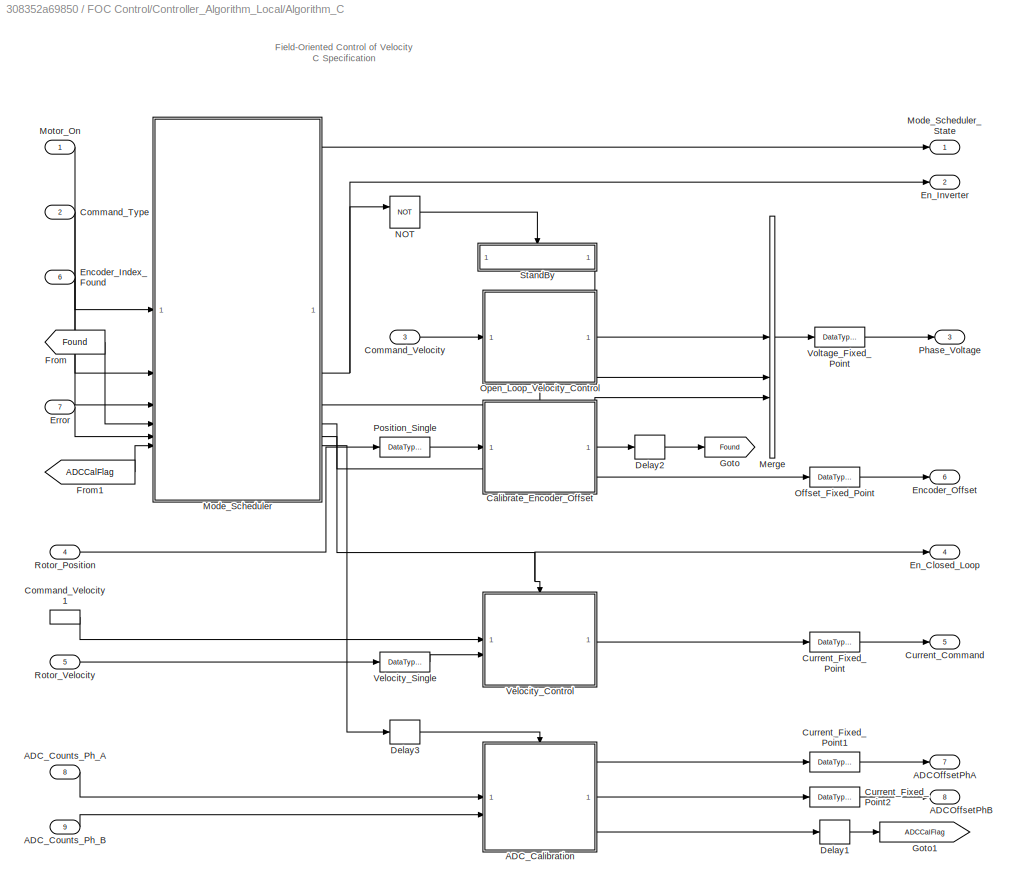
BLOCK [SubSystem] FOC Control/Controller_Algorithm_Local/Algorithm_С
BLOCK [Outport] FOC Control/Controller_Algorithm_Local/Algorithm_С/ADCOffsetPhA
  InitialOutput = 0
  Port = 7
  VectorParamsAs1DForOutWhenUnconnected = off
BLOCK [Outport] FOC Control/Controller_Algorithm_Local/Algorithm_С/ADCOffsetPhB
  InitialOutput = 0
  Port = 8
  VectorParamsAs1DForOutWhenUnconnected = off
BLOCK [SubSystem] FOC Control/Controller_Algorithm_Local/Algorithm_С/ADC_Calibration
BLOCK [Outport] FOC Control/Controller_Algorithm_Local/Algorithm_С/ADC_Calibration/ADCCaFlag
  InitialOutput = 0
  Port = 3
  VectorParamsAs1DForOutWhenUnconnected = off
BLOCK [Outport] FOC Control/Controller_Algorithm_Local/Algorithm_С/ADC_Calibration/ADCOffsetPhA
  InitialOutput = 0
  VectorParamsAs1DForOutWhenUnconnected = off
BLOCK [Outport] FOC Control/Controller_Algorithm_Local/Algorithm_С/ADC_Calibration/ADCOffsetPhB
  InitialOutput = 0
  Port = 2
  VectorParamsAs1DForOutWhenUnconnected = off
BLOCK [Inport] FOC Control/Controller_Algorithm_Local/Algorithm_С/ADC_Calibration/ADC_Counts_Ph_A
BLOCK [Inport] FOC Control/Controller_Algorithm_Local/Algorithm_С/ADC_Calibration/ADC_Counts_Ph_B
  Port = 2
BLOCK [Constant] FOC Control/Controller_Algorithm_Local/Algorithm_С/ADC_Calibration/Constant
  OutDataTypeStr = single
  Value = paramAdcCalibrationSamples
BLOCK [Constant] FOC Control/Controller_Algorithm_Local/Algorithm_С/ADC_Calibration/Constant1
  OutDataTypeStr = boolean
  Value = paramAdcEnablecalibration
BLOCK [Constant] FOC Control/Controller_Algorithm_Local/Algorithm_С/ADC_Calibration/Constant2
  OutDataTypeStr = single
  Value = paramAdcCountAtZeroAmpere
BLOCK [DataTypeConversion] FOC Control/Controller_Algorithm_Local/Algorithm_С/ADC_Calibration/Data Type Conversion
  OutDataTypeStr = single
  RndMeth = Floor
  SaturateOnIntegerOverflow = off
BLOCK [EnablePort] FOC Control/Controller_Algorithm_Local/Algorithm_С/ADC_Calibration/Enable
  AttributesFormatString = ----------------------------------------\nStates when enabling = %<StatesWhenEnabling>
BLOCK [SubSystem] FOC Control/Controller_Algorithm_Local/Algorithm_С/ADC_Calibration/MATLAB Function
  ErrorFcn = Stateflow.Translate.translate
  LibrarySourceBlock = simulink/User-Defined\nFunctions/MATLAB Function
  PermitHierarchicalResolution = ExplicitOnly
  SFBlockType = MATLAB Function
  TreatAsAtomicUnit = on
BLOCK [Demux] FOC Control/Controller_Algorithm_Local/Algorithm_С/ADC_Calibration/MATLAB Function/ Demux 
  Outputs = 1
BLOCK [S-Function] FOC Control/Controller_Algorithm_Local/Algorithm_С/ADC_Calibration/MATLAB Function/ SFunction 
  EnableBusSupport = off
  FunctionName = sf_sfun
  PortCounts = [4 4]
  SFcnIsStateOwnerBlock = off
  SFunctionDeploymentMode = off
  Tag = Stateflow S-Function 2
BLOCK [Terminator] FOC Control/Controller_Algorithm_Local/Algorithm_С/ADC_Calibration/MATLAB Function/ Terminator 
BLOCK [Inport] FOC Control/Controller_Algorithm_Local/Algorithm_С/ADC_Calibration/MATLAB Function/ADCCounts
BLOCK [Outport] FOC Control/Controller_Algorithm_Local/Algorithm_С/ADC_Calibration/MATLAB Function/ADCOffsetPhA
BLOCK [Outport] FOC Control/Controller_Algorithm_Local/Algorithm_С/ADC_Calibration/MATLAB Function/ADCOffsetPhB
  Port = 2
BLOCK [Inport] FOC Control/Controller_Algorithm_Local/Algorithm_С/ADC_Calibration/MATLAB Function/ADCOffsets
  Port = 4
BLOCK [Inport] FOC Control/Controller_Algorithm_Local/Algorithm_С/ADC_Calibration/MATLAB Function/EnCalibration
  Port = 3
BLOCK [Outport] FOC Control/Controller_Algorithm_Local/Algorithm_С/ADC_Calibration/MATLAB Function/Flag
  Port = 3
BLOCK [Inport] FOC Control/Controller_Algorithm_Local/Algorithm_С/ADC_Calibration/MATLAB Function/Samples
  Port = 2
BLOCK [Mux] FOC Control/Controller_Algorithm_Local/Algorithm_С/ADC_Calibration/Mux
  DisplayOption = bar
  Inputs = 2
BLOCK [Inport] FOC Control/Controller_Algorithm_Local/Algorithm_С/ADC_Counts_Ph_A
  OutDataTypeStr = uint16
  Port = 8
BLOCK [Inport] FOC Control/Controller_Algorithm_Local/Algorithm_С/ADC_Counts_Ph_B
  OutDataTypeStr = uint16
  Port = 9
BLOCK [SubSystem] FOC Control/Controller_Algorithm_Local/Algorithm_С/Calibrate_Encoder_Offset
BLOCK [EnablePort] FOC Control/Controller_Algorithm_Local/Algorithm_С/Calibrate_Encoder_Offset/Enable
  AttributesFormatString = ----------------------------------------\nStates when enabling = %<StatesWhenEnabling>
  StatesWhenEnabling = reset
BLOCK [SubSystem] FOC Control/Controller_Algorithm_Local/Algorithm_С/Calibrate_Encoder_Offset/Encoder_Calibration
BLOCK [Abs] FOC Control/Controller_Algorithm_Local/Algorithm_С/Calibrate_Encoder_Offset/Encoder_Calibration/Abs
  SaturateOnIntegerOverflow = off
BLOCK [SubSystem] FOC Control/Controller_Algorithm_Local/Algorithm_С/Calibrate_Encoder_Offset/Encoder_Calibration/Count_To_Limit
BLOCK [Sum] FOC Control/Controller_Algorithm_Local/Algorithm_С/Calibrate_Encoder_Offset/Encoder_Calibration/Count_To_Limit/Add
  IconShape = rectangular
BLOCK [Outport] FOC Control/Controller_Algorithm_Local/Algorithm_С/Calibrate_Encoder_Offset/Encoder_Calibration/Count_To_Limit/At_Limit
  VectorParamsAs1DForOutWhenUnconnected = off
BLOCK [Constant] FOC Control/Controller_Algorithm_Local/Algorithm_С/Calibrate_Encoder_Offset/Encoder_Calibration/Count_To_Limit/Continue_Count
  OutDataTypeStr = Inherit: Inherit via back propagation
BLOCK [Delay] FOC Control/Controller_Algorithm_Local/Algorithm_С/Calibrate_Encoder_Offset/Encoder_Calibration/Count_To_Limit/Delay
  DelayLength = 1
  InitialCondition = 0
  InputPortMap = u0
BLOCK [Delay] FOC Control/Controller_Algorithm_Local/Algorithm_С/Calibrate_Encoder_Offset/Encoder_Calibration/Count_To_Limit/Delay1
  DelayLength = 1
  InitialCondition = 0
  InputPortMap = u0
BLOCK [RelationalOperator] FOC Control/Controller_Algorithm_Local/Algorithm_С/Calibrate_Encoder_Offset/Encoder_Calibration/Count_To_Limit/Greater_Or_Equal
  InputSameDT = off
  OutDataTypeStr = boolean
BLOCK [Inport] FOC Control/Controller_Algorithm_Local/Algorithm_С/Calibrate_Encoder_Offset/Encoder_Calibration/Count_To_Limit/Limit
  Port = 2
BLOCK [Inport] FOC Control/Controller_Algorithm_Local/Algorithm_С/Calibrate_Encoder_Offset/Encoder_Calibration/Count_To_Limit/Reset
BLOCK [Constant] FOC Control/Controller_Algorithm_Local/Algorithm_С/Calibrate_Encoder_Offset/Encoder_Calibration/Count_To_Limit/Reset_Count
  OutDataTypeStr = Inherit: Inherit via back propagation
  Value = 0
BLOCK [Constant] FOC Control/Controller_Algorithm_Local/Algorithm_С/Calibrate_Encoder_Offset/Encoder_Calibration/Count_To_Limit/Stop_Count
  OutDataTypeStr = Inherit: Inherit via back propagation
  Value = 0
BLOCK [Switch] FOC Control/Controller_Algorithm_Local/Algorithm_С/Calibrate_Encoder_Offset/Encoder_Calibration/Count_To_Limit/Switch
  InputSameDT = off
  SaturateOnIntegerOverflow = off
  Threshold = 1
BLOCK [Switch] FOC Control/Controller_Algorithm_Local/Algorithm_С/Calibrate_Encoder_Offset/Encoder_Calibration/Count_To_Limit/Switch1
  InputSameDT = off
  SaturateOnIntegerOverflow = off
  Threshold = 1
BLOCK [Delay] FOC Control/Controller_Algorithm_Local/Algorithm_С/Calibrate_Encoder_Offset/Encoder_Calibration/Delay
  DelayLength = 1
  InputPortMap = u0
BLOCK [Delay] FOC Control/Controller_Algorithm_Local/Algorithm_С/Calibrate_Encoder_Offset/Encoder_Calibration/Delay1
  DelayLength = 1
  InitialCondition = 0
  InputPortMap = u0
BLOCK [Delay] FOC Control/Controller_Algorithm_Local/Algorithm_С/Calibrate_Encoder_Offset/Encoder_Calibration/Delay2
  DelayLength = 1
  InitialCondition = 0
  InputPortMap = u0
BLOCK [Sum] FOC Control/Controller_Algorithm_Local/Algorithm_С/Calibrate_Encoder_Offset/Encoder_Calibration/Difference
  IconShape = rectangular
  Inputs = +-
BLOCK [Constant] FOC Control/Controller_Algorithm_Local/Algorithm_С/Calibrate_Encoder_Offset/Encoder_Calibration/Duration
  OutDataTypeStr = Inherit: Inherit via back propagation
  SampleTime = -1
  Value = paramEncoderCalibrationDuration
BLOCK [Gain] FOC Control/Controller_Algorithm_Local/Algorithm_С/Calibrate_Encoder_Offset/Encoder_Calibration/Gain
  AttributesFormatString = ----------------------------------\nGain = %<Gain>
  Gain = [1 -1/2 -1/2]
BLOCK [RelationalOperator] FOC Control/Controller_Algorithm_Local/Algorithm_С/Calibrate_Encoder_Offset/Encoder_Calibration/Greater_Than
  InputSameDT = off
  Operator = >
  OutDataTypeStr = boolean
BLOCK [Logic] FOC Control/Controller_Algorithm_Local/Algorithm_С/Calibrate_Encoder_Offset/Encoder_Calibration/Logical_OR
  AllPortsSameDT = off
  IconShape = distinctive
  Operator = OR
  OutDataTypeStr = boolean
BLOCK [Constant] FOC Control/Controller_Algorithm_Local/Algorithm_С/Calibrate_Encoder_Offset/Encoder_Calibration/Max_Abs_Error
  OutDataTypeStr = Inherit: Inherit via back propagation
  SampleTime = -1
  Value = paramEncoderCalibrationMaxError
BLOCK [SubSystem] FOC Control/Controller_Algorithm_Local/Algorithm_С/Calibrate_Encoder_Offset/Encoder_Calibration/Negate_Zero_To_Two_Pi
BLOCK [Inport] FOC Control/Controller_Algorithm_Local/Algorithm_С/Calibrate_Encoder_Offset/Encoder_Calibration/Negate_Zero_To_Two_Pi/In
BLOCK [SignalSpecification] FOC Control/Controller_Algorithm_Local/Algorithm_С/Calibrate_Encoder_Offset/Encoder_Calibration/Negate_Zero_To_Two_Pi/Input_Range
  AttributesFormatString = -----------------------\nMin = %<OutMin>\nMax = %<OutMax>
  OutMax = 2*pi
  OutMin = 0
BLOCK [Outport] FOC Control/Controller_Algorithm_Local/Algorithm_С/Calibrate_Encoder_Offset/Encoder_Calibration/Negate_Zero_To_Two_Pi/Out
  VectorParamsAs1DForOutWhenUnconnected = off
BLOCK [Sum] FOC Control/Controller_Algorithm_Local/Algorithm_С/Calibrate_Encoder_Offset/Encoder_Calibration/Negate_Zero_To_Two_Pi/Subtract
  IconShape = rectangular
  Inputs = +-
  OutDataTypeStr = Inherit: Inherit via back propagation
BLOCK [Constant] FOC Control/Controller_Algorithm_Local/Algorithm_С/Calibrate_Encoder_Offset/Encoder_Calibration/Negate_Zero_To_Two_Pi/Two_Pi
  OutDataTypeStr = Inherit: Inherit via back propagation
  Value = 2*pi
BLOCK [Outport] FOC Control/Controller_Algorithm_Local/Algorithm_С/Calibrate_Encoder_Offset/Encoder_Calibration/Phase_Voltage
  InitialOutput = 0
  SampleTime = sampleTime.EncoderCalibration
  VectorParamsAs1DForOutWhenUnconnected = off
BLOCK [Constant] FOC Control/Controller_Algorithm_Local/Algorithm_С/Calibrate_Encoder_Offset/Encoder_Calibration/Phase_Voltage_Amplitude
  OutDataTypeStr = Inherit: Inherit via back propagation
  SampleTime = -1
  Value = paramEncoderCalibrationVoltage
BLOCK [Outport] FOC Control/Controller_Algorithm_Local/Algorithm_С/Calibrate_Encoder_Offset/Encoder_Calibration/Position_At_Zero_Count
  InitialOutput = 0
  Port = 3
  SampleTime = sampleTime.EncoderCalibration
  VectorParamsAs1DForOutWhenUnconnected = off
BLOCK [Outport] FOC Control/Controller_Algorithm_Local/Algorithm_С/Calibrate_Encoder_Offset/Encoder_Calibration/Position_Valid
  InitialOutput = 0
  Port = 2
  SampleTime = sampleTime.EncoderCalibration
  VectorParamsAs1DForOutWhenUnconnected = off
BLOCK [Inport] FOC Control/Controller_Algorithm_Local/Algorithm_С/Calibrate_Encoder_Offset/Encoder_Calibration/Rotor_Position
  Interpolate = off
  OutMax = 2*pi
  OutMin = 0
  PortDimensions = 1
  SampleTime = sampleTime.EncoderCalibration
  SamplingMode = Sample based
  SignalType = real
BLOCK [InportShadow] FOC Control/Controller_Algorithm_Local/Algorithm_С/Calibrate_Encoder_Offset/Encoder_Calibration/Rotor_Position1
  Interpolate = off
  OutMax = 2*pi
  OutMin = 0
  PortDimensions = 1
  SampleTime = sampleTime.EncoderCalibration
  SamplingMode = Sample based
  SignalType = real
BLOCK [Gain] FOC Control/Controller_Algorithm_Local/Algorithm_С/Calibrate_Encoder_Offset/Encoder_Calibration/Sample_Frequency
  AttributesFormatString = ----------------------------------\nGain = %<Gain>
  Gain = 1/sampleTime.EncoderCalibration
BLOCK [Switch] FOC Control/Controller_Algorithm_Local/Algorithm_С/Calibrate_Encoder_Offset/Encoder_Calibration/Switch
  Criteria = u2 ~= 0
  InputSameDT = off
  SaturateOnIntegerOverflow = off
  Threshold = 1
BLOCK [Switch] FOC Control/Controller_Algorithm_Local/Algorithm_С/Calibrate_Encoder_Offset/Encoder_Calibration/Switch1
  InputSameDT = off
  SaturateOnIntegerOverflow = off
  Threshold = 1
BLOCK [SubSystem] FOC Control/Controller_Algorithm_Local/Algorithm_С/Calibrate_Encoder_Offset/Encoder_Calibration/Wrap_Neg_Pi_To_Pi_Once
BLOCK [Sum] FOC Control/Controller_Algorithm_Local/Algorithm_С/Calibrate_Encoder_Offset/Encoder_Calibration/Wrap_Neg_Pi_To_Pi_Once/Add
  IconShape = rectangular
  Inputs = +-
  OutDataTypeStr = Inherit: Inherit via back propagation
BLOCK [Sum] FOC Control/Controller_Algorithm_Local/Algorithm_С/Calibrate_Encoder_Offset/Encoder_Calibration/Wrap_Neg_Pi_To_Pi_Once/Add1
  IconShape = rectangular
BLOCK [RelationalOperator] FOC Control/Controller_Algorithm_Local/Algorithm_С/Calibrate_Encoder_Offset/Encoder_Calibration/Wrap_Neg_Pi_To_Pi_Once/Greater_Than
  InputSameDT = off
  OutDataTypeStr = boolean
BLOCK [SignalSpecification] FOC Control/Controller_Algorithm_Local/Algorithm_С/Calibrate_Encoder_Offset/Encoder_Calibration/Wrap_Neg_Pi_To_Pi_Once/Input_Range
  AttributesFormatString = -----------------------\nMin = %<OutMin>\nMax = %<OutMax>
  OutMax = 4*pi
  OutMin = -4*pi
BLOCK [RelationalOperator] FOC Control/Controller_Algorithm_Local/Algorithm_С/Calibrate_Encoder_Offset/Encoder_Calibration/Wrap_Neg_Pi_To_Pi_Once/Less_Than
  InputSameDT = off
  Operator = <
  OutDataTypeStr = boolean
BLOCK [Constant] FOC Control/Controller_Algorithm_Local/Algorithm_С/Calibrate_Encoder_Offset/Encoder_Calibration/Wrap_Neg_Pi_To_Pi_Once/Neg_Pi
  OutDataTypeStr = Inherit: Inherit via back propagation
  Value = -pi
BLOCK [SignalSpecification] FOC Control/Controller_Algorithm_Local/Algorithm_С/Calibrate_Encoder_Offset/Encoder_Calibration/Wrap_Neg_Pi_To_Pi_Once/Output_Range
  AttributesFormatString = -----------------------\nMin = %<OutMin>\nMax = %<OutMax>
  OutMax = pi
  OutMin = -pi
BLOCK [Constant] FOC Control/Controller_Algorithm_Local/Algorithm_С/Calibrate_Encoder_Offset/Encoder_Calibration/Wrap_Neg_Pi_To_Pi_Once/PI
  OutDataTypeStr = Inherit: Inherit via back propagation
  Value = pi
BLOCK [Inport] FOC Control/Controller_Algorithm_Local/Algorithm_С/Calibrate_Encoder_Offset/Encoder_Calibration/Wrap_Neg_Pi_To_Pi_Once/Position
BLOCK [Switch] FOC Control/Controller_Algorithm_Local/Algorithm_С/Calibrate_Encoder_Offset/Encoder_Calibration/Wrap_Neg_Pi_To_Pi_Once/Switch1
  Criteria = u2 ~= 0
  InputSameDT = off
  SaturateOnIntegerOverflow = off
BLOCK [Switch] FOC Control/Controller_Algorithm_Local/Algorithm_С/Calibrate_Encoder_Offset/Encoder_Calibration/Wrap_Neg_Pi_To_Pi_Once/Switch2
  Criteria = u2 ~= 0
  InputSameDT = off
  SaturateOnIntegerOverflow = off
BLOCK [Constant] FOC Control/Controller_Algorithm_Local/Algorithm_С/Calibrate_Encoder_Offset/Encoder_Calibration/Wrap_Neg_Pi_To_Pi_Once/Two_Pi
  OutDataTypeStr = Inherit: Inherit via back propagation
  Value = 2*pi
BLOCK [Constant] FOC Control/Controller_Algorithm_Local/Algorithm_С/Calibrate_Encoder_Offset/Encoder_Calibration/Wrap_Neg_Pi_To_Pi_Once/Two_Pi2
  OutDataTypeStr = Inherit: Inherit via back propagation
  Value = 2*pi
BLOCK [Outport] FOC Control/Controller_Algorithm_Local/Algorithm_С/Calibrate_Encoder_Offset/Encoder_Calibration/Wrap_Neg_Pi_To_Pi_Once/Wrap
  VectorParamsAs1DForOutWhenUnconnected = off
BLOCK [Constant] FOC Control/Controller_Algorithm_Local/Algorithm_С/Calibrate_Encoder_Offset/Encoder_Calibration/Zero_During_Calibration
  OutDataTypeStr = Inherit: Inherit via back propagation
  Value = 0
BLOCK [Outport] FOC Control/Controller_Algorithm_Local/Algorithm_С/Calibrate_Encoder_Offset/Phase_Voltage
  InitialOutput = 0
  PortDimensions = 3
  SamplingMode = Sample based
  SignalType = real
  VectorParamsAs1DForOutWhenUnconnected = off
BLOCK [Outport] FOC Control/Controller_Algorithm_Local/Algorithm_С/Calibrate_Encoder_Offset/Position_At_Zero_Count
  AttributesFormatString = ---------------------------------\nInitial Output = %<InitialOutput>
  InitialOutput = paramEncoderRotorPositionAtZeroCount
  Port = 3
  VectorParamsAs1DForOutWhenUnconnected = off
BLOCK [Outport] FOC Control/Controller_Algorithm_Local/Algorithm_С/Calibrate_Encoder_Offset/Position_At_Zero_Count_Valid
  InitialOutput = 0
  Port = 2
  VectorParamsAs1DForOutWhenUnconnected = off
BLOCK [Inport] FOC Control/Controller_Algorithm_Local/Algorithm_С/Calibrate_Encoder_Offset/Rotor_Position
  Interpolate = off
  PortDimensions = 1
BLOCK [Inport] FOC Control/Controller_Algorithm_Local/Algorithm_С/Command_Type
  OutDataTypeStr = Enum: commandTypeEnum
  Port = 2
BLOCK [Inport] FOC Control/Controller_Algorithm_Local/Algorithm_С/Command_Velocity
  Port = 3
BLOCK [InportShadow] FOC Control/Controller_Algorithm_Local/Algorithm_С/Command_Velocity1
  Port = 3
BLOCK [Outport] FOC Control/Controller_Algorithm_Local/Algorithm_С/Current_Command
  Port = 5
  VectorParamsAs1DForOutWhenUnconnected = off
BLOCK [DataTypeConversion] FOC Control/Controller_Algorithm_Local/Algorithm_С/Current_Fixed_Point
  OutDataTypeStr = fixdt(1,16,11)
  OutMax = dataRange.PhaseCurrent.Max
  OutMin = dataRange.PhaseCurrent.Min
  RndMeth = Floor
  SaturateOnIntegerOverflow = off
BLOCK [DataTypeConversion] FOC Control/Controller_Algorithm_Local/Algorithm_С/Current_Fixed_Point1
  OutDataTypeStr = uint16
  RndMeth = Floor
  SaturateOnIntegerOverflow = off
BLOCK [DataTypeConversion] FOC Control/Controller_Algorithm_Local/Algorithm_С/Current_Fixed_Point2
  OutDataTypeStr = uint16
  RndMeth = Floor
  SaturateOnIntegerOverflow = off
BLOCK [Delay] FOC Control/Controller_Algorithm_Local/Algorithm_С/Delay1
  DelayLength = 1
  InputPortMap = u0
BLOCK [Delay] FOC Control/Controller_Algorithm_Local/Algorithm_С/Delay2
  DelayLength = 1
  InputPortMap = u0
BLOCK [Delay] FOC Control/Controller_Algorithm_Local/Algorithm_С/Delay3
  DelayLength = 1
  InputPortMap = u0
BLOCK [Outport] FOC Control/Controller_Algorithm_Local/Algorithm_С/En_Closed_Loop
  Port = 4
  VectorParamsAs1DForOutWhenUnconnected = off
BLOCK [Outport] FOC Control/Controller_Algorithm_Local/Algorithm_С/En_Inverter
  Port = 2
  VectorParamsAs1DForOutWhenUnconnected = off
BLOCK [Inport] FOC Control/Controller_Algorithm_Local/Algorithm_С/Encoder_Index_Found
  OutDataTypeStr = boolean
  Port = 6
BLOCK [Outport] FOC Control/Controller_Algorithm_Local/Algorithm_С/Encoder_Offset
  Port = 6
  VectorParamsAs1DForOutWhenUnconnected = off
BLOCK [Inport] FOC Control/Controller_Algorithm_Local/Algorithm_С/Error
  OutDataTypeStr = boolean
  Port = 7
BLOCK [From] FOC Control/Controller_Algorithm_Local/Algorithm_С/From
  GotoTag = Found
BLOCK [From] FOC Control/Controller_Algorithm_Local/Algorithm_С/From1
  GotoTag = ADCCalFlag
BLOCK [Goto] FOC Control/Controller_Algorithm_Local/Algorithm_С/Goto
  GotoTag = Found
BLOCK [Goto] FOC Control/Controller_Algorithm_Local/Algorithm_С/Goto1
  GotoTag = ADCCalFlag
BLOCK [Merge] FOC Control/Controller_Algorithm_Local/Algorithm_С/Merge
  Inputs = 3
BLOCK [SubSystem] FOC Control/Controller_Algorithm_Local/Algorithm_С/Mode_Scheduler
  ErrorFcn = Stateflow.Translate.translate
  PermitHierarchicalResolution = ExplicitOnly
  SFBlockType = Chart
  TreatAsAtomicUnit = on
BLOCK [Demux] FOC Control/Controller_Algorithm_Local/Algorithm_С/Mode_Scheduler/ Demux 
  Outputs = 1
BLOCK [S-Function] FOC Control/Controller_Algorithm_Local/Algorithm_С/Mode_Scheduler/ SFunction 
  EnableBusSupport = off
  FunctionName = sf_sfun
  Parameters = paramEncoderCalibrateAtStartup
  PortCounts = [6 7]
  SFcnIsStateOwnerBlock = off
  SFunctionDeploymentMode = off
  Tag = Stateflow S-Function 1
BLOCK [Terminator] FOC Control/Controller_Algorithm_Local/Algorithm_С/Mode_Scheduler/ Terminator 
BLOCK [Outport] FOC Control/Controller_Algorithm_Local/Algorithm_С/Mode_Scheduler/ calibrateEncoder
  Port = 4
  VectorParamsAs1DForOutWhenUnconnected = off
BLOCK [Outport] FOC Control/Controller_Algorithm_Local/Algorithm_С/Mode_Scheduler/ closedLoop
  Port = 5
  VectorParamsAs1DForOutWhenUnconnected = off
BLOCK [Outport] FOC Control/Controller_Algorithm_Local/Algorithm_С/Mode_Scheduler/ enableInverter
  Port = 2
  VectorParamsAs1DForOutWhenUnconnected = off
BLOCK [Outport] FOC Control/Controller_Algorithm_Local/Algorithm_С/Mode_Scheduler/ openLoop
  Port = 3
  VectorParamsAs1DForOutWhenUnconnected = off
BLOCK [Outport] FOC Control/Controller_Algorithm_Local/Algorithm_С/Mode_Scheduler/adcCalibration
  Port = 6
BLOCK [Inport] FOC Control/Controller_Algorithm_Local/Algorithm_С/Mode_Scheduler/adcCalibrationStatus
  Port = 6
BLOCK [Inport] FOC Control/Controller_Algorithm_Local/Algorithm_С/Mode_Scheduler/commandType
  Port = 2
BLOCK [Inport] FOC Control/Controller_Algorithm_Local/Algorithm_С/Mode_Scheduler/encoderIndexFound
  Port = 3
BLOCK [Inport] FOC Control/Controller_Algorithm_Local/Algorithm_С/Mode_Scheduler/encoderOffsetFound
  Port = 4
BLOCK [Inport] FOC Control/Controller_Algorithm_Local/Algorithm_С/Mode_Scheduler/error
  Port = 5
BLOCK [Outport] FOC Control/Controller_Algorithm_Local/Algorithm_С/Mode_Scheduler/mode
  VectorParamsAs1DForOutWhenUnconnected = off
BLOCK [Inport] FOC Control/Controller_Algorithm_Local/Algorithm_С/Mode_Scheduler/motorOn
BLOCK [Outport] FOC Control/Controller_Algorithm_Local/Algorithm_С/Mode_Scheduler_State
  VectorParamsAs1DForOutWhenUnconnected = off
BLOCK [Inport] FOC Control/Controller_Algorithm_Local/Algorithm_С/Motor_On
  OutDataTypeStr = boolean
BLOCK [Logic] FOC Control/Controller_Algorithm_Local/Algorithm_С/NOT
  AllPortsSameDT = off
  IconShape = distinctive
  Operator = NOT
  OutDataTypeStr = boolean
BLOCK [DataTypeConversion] FOC Control/Controller_Algorithm_Local/Algorithm_С/Offset_Fixed_Point
  OutDataTypeStr = fixdt(1,16,12)
  OutMax = 2*pi
  OutMin = 0
  RndMeth = Floor
  SaturateOnIntegerOverflow = off
BLOCK [SubSystem] FOC Control/Controller_Algorithm_Local/Algorithm_С/Open_Loop_Velocity_Control
  FunctionInterfaceSpec = Allow arguments (Optimized)
  RTWFcnNameOpts = User specified
  TreatAsAtomicUnit = on
BLOCK [EnablePort] FOC Control/Controller_Algorithm_Local/Algorithm_С/Open_Loop_Velocity_Control/Enable
  AttributesFormatString = ----------------------------------------\nStates when enabling = %<StatesWhenEnabling>
  StatesWhenEnabling = reset
BLOCK [SubSystem] FOC Control/Controller_Algorithm_Local/Algorithm_С/Open_Loop_Velocity_Control/Open_Loop_Velocity_Control
BLOCK [Constant] FOC Control/Controller_Algorithm_Local/Algorithm_С/Open_Loop_Velocity_Control/Open_Loop_Velocity_Control/Direct_Voltage
  OutDataTypeStr = Inherit: Inherit via back propagation
  Value = 0
BLOCK [SubSystem] FOC Control/Controller_Algorithm_Local/Algorithm_С/Open_Loop_Velocity_Control/Open_Loop_Velocity_Control/Electrical_Velocity_To_Position
BLOCK [Sum] FOC Control/Controller_Algorithm_Local/Algorithm_С/Open_Loop_Velocity_Control/Open_Loop_Velocity_Control/Electrical_Velocity_To_Position/Add
  IconShape = rectangular
BLOCK [Delay] FOC Control/Controller_Algorithm_Local/Algorithm_С/Open_Loop_Velocity_Control/Open_Loop_Velocity_Control/Electrical_Velocity_To_Position/Delay
  DelayLength = 1
  InputPortMap = u0
BLOCK [Outport] FOC Control/Controller_Algorithm_Local/Algorithm_С/Open_Loop_Velocity_Control/Open_Loop_Velocity_Control/Electrical_Velocity_To_Position/EP
  VectorParamsAs1DForOutWhenUnconnected = off
BLOCK [Inport] FOC Control/Controller_Algorithm_Local/Algorithm_С/Open_Loop_Velocity_Control/Open_Loop_Velocity_Control/Electrical_Velocity_To_Position/EV
BLOCK [Gain] FOC Control/Controller_Algorithm_Local/Algorithm_С/Open_Loop_Velocity_Control/Open_Loop_Velocity_Control/Electrical_Velocity_To_Position/Gain
  AttributesFormatString = ------------------------------\nGain = %<Gain>
  Gain = sampleTime.OpenLoopVelocityControl
  OutDataTypeStr = Inherit: Inherit via back propagation
BLOCK [SubSystem] FOC Control/Controller_Algorithm_Local/Algorithm_С/Open_Loop_Velocity_Control/Open_Loop_Velocity_Control/Electrical_Velocity_To_Position/Mod_Two_Pi_Once
BLOCK [Sum] FOC Control/Controller_Algorithm_Local/Algorithm_С/Open_Loop_Velocity_Control/Open_Loop_Velocity_Control/Electrical_Velocity_To_Position/Mod_Two_Pi_Once/Add1
  IconShape = rectangular
  Inputs = +-
BLOCK [Sum] FOC Control/Controller_Algorithm_Local/Algorithm_С/Open_Loop_Velocity_Control/Open_Loop_Velocity_Control/Electrical_Velocity_To_Position/Mod_Two_Pi_Once/Add2
  IconShape = rectangular
BLOCK [RelationalOperator] FOC Control/Controller_Algorithm_Local/Algorithm_С/Open_Loop_Velocity_Control/Open_Loop_Velocity_Control/Electrical_Velocity_To_Position/Mod_Two_Pi_Once/Greater_Than
  InputSameDT = off
  OutDataTypeStr = boolean
BLOCK [SignalSpecification] FOC Control/Controller_Algorithm_Local/Algorithm_С/Open_Loop_Velocity_Control/Open_Loop_Velocity_Control/Electrical_Velocity_To_Position/Mod_Two_Pi_Once/Input_Range
  AttributesFormatString = -----------------------\nMin = %<OutMin>\nMax = %<OutMax>
  OutMax = 4*pi
  OutMin = -4*pi
BLOCK [RelationalOperator] FOC Control/Controller_Algorithm_Local/Algorithm_С/Open_Loop_Velocity_Control/Open_Loop_Velocity_Control/Electrical_Velocity_To_Position/Mod_Two_Pi_Once/Less_Than
  InputSameDT = off
  Operator = <
  OutDataTypeStr = boolean
BLOCK [Outport] FOC Control/Controller_Algorithm_Local/Algorithm_С/Open_Loop_Velocity_Control/Open_Loop_Velocity_Control/Electrical_Velocity_To_Position/Mod_Two_Pi_Once/Mod_X_Two_Pi
  VectorParamsAs1DForOutWhenUnconnected = off
BLOCK [SignalSpecification] FOC Control/Controller_Algorithm_Local/Algorithm_С/Open_Loop_Velocity_Control/Open_Loop_Velocity_Control/Electrical_Velocity_To_Position/Mod_Two_Pi_Once/Output_Range
  AttributesFormatString = -----------------------\nMin = %<OutMin>\nMax = %<OutMax>
  OutMax = 2*pi
  OutMin = 0
BLOCK [Switch] FOC Control/Controller_Algorithm_Local/Algorithm_С/Open_Loop_Velocity_Control/Open_Loop_Velocity_Control/Electrical_Velocity_To_Position/Mod_Two_Pi_Once/Switch
  Criteria = u2 ~= 0
  SaturateOnIntegerOverflow = off
BLOCK [Switch] FOC Control/Controller_Algorithm_Local/Algorithm_С/Open_Loop_Velocity_Control/Open_Loop_Velocity_Control/Electrical_Velocity_To_Position/Mod_Two_Pi_Once/Switch1
  Criteria = u2 ~= 0
  SaturateOnIntegerOverflow = off
BLOCK [Constant] FOC Control/Controller_Algorithm_Local/Algorithm_С/Open_Loop_Velocity_Control/Open_Loop_Velocity_Control/Electrical_Velocity_To_Position/Mod_Two_Pi_Once/Two_Pi
  OutDataTypeStr = Inherit: Inherit via back propagation
  Value = 2*pi
BLOCK [Constant] FOC Control/Controller_Algorithm_Local/Algorithm_С/Open_Loop_Velocity_Control/Open_Loop_Velocity_Control/Electrical_Velocity_To_Position/Mod_Two_Pi_Once/Two_Pi1
  OutDataTypeStr = Inherit: Inherit via back propagation
  Value = 2*pi
BLOCK [Constant] FOC Control/Controller_Algorithm_Local/Algorithm_С/Open_Loop_Velocity_Control/Open_Loop_Velocity_Control/Electrical_Velocity_To_Position/Mod_Two_Pi_Once/Two_Pi2
  OutDataTypeStr = Inherit: Inherit via back propagation
  Value = 2*pi
BLOCK [Inport] FOC Control/Controller_Algorithm_Local/Algorithm_С/Open_Loop_Velocity_Control/Open_Loop_Velocity_Control/Electrical_Velocity_To_Position/Mod_Two_Pi_Once/X
BLOCK [Constant] FOC Control/Controller_Algorithm_Local/Algorithm_С/Open_Loop_Velocity_Control/Open_Loop_Velocity_Control/Electrical_Velocity_To_Position/Mod_Two_Pi_Once/Zero
  OutDataTypeStr = Inherit: Inherit via back propagation
  Value = 0
BLOCK [SubSystem] FOC Control/Controller_Algorithm_Local/Algorithm_С/Open_Loop_Velocity_Control/Open_Loop_Velocity_Control/Inverse_Clarke_Transform
  RTWSystemCode = Reusable function
  VariantControl = INVERSE_CLARKE_TRANSFORM
BLOCK [Outport] FOC Control/Controller_Algorithm_Local/Algorithm_С/Open_Loop_Velocity_Control/Open_Loop_Velocity_Control/Inverse_Clarke_Transform/ABC
  VectorParamsAs1DForOutWhenUnconnected = off
BLOCK [Sum] FOC Control/Controller_Algorithm_Local/Algorithm_С/Open_Loop_Velocity_Control/Open_Loop_Velocity_Control/Inverse_Clarke_Transform/Add
  IconShape = rectangular
  Inputs = -+
  OutDataTypeStr = Inherit: Same as first input
BLOCK [Sum] FOC Control/Controller_Algorithm_Local/Algorithm_С/Open_Loop_Velocity_Control/Open_Loop_Velocity_Control/Inverse_Clarke_Transform/Add1
  IconShape = rectangular
  Inputs = --
  OutDataTypeStr = Inherit: Same as first input
BLOCK [Inport] FOC Control/Controller_Algorithm_Local/Algorithm_С/Open_Loop_Velocity_Control/Open_Loop_Velocity_Control/Inverse_Clarke_Transform/Alpha
BLOCK [Inport] FOC Control/Controller_Algorithm_Local/Algorithm_С/Open_Loop_Velocity_Control/Open_Loop_Velocity_Control/Inverse_Clarke_Transform/Beta
  Port = 2
BLOCK [Gain] FOC Control/Controller_Algorithm_Local/Algorithm_С/Open_Loop_Velocity_Control/Open_Loop_Velocity_Control/Inverse_Clarke_Transform/Gain
  Gain = 1/2
BLOCK [Gain] FOC Control/Controller_Algorithm_Local/Algorithm_С/Open_Loop_Velocity_Control/Open_Loop_Velocity_Control/Inverse_Clarke_Transform/Gain1
  Gain = sqrt(3)/2
BLOCK [Mux] FOC Control/Controller_Algorithm_Local/Algorithm_С/Open_Loop_Velocity_Control/Open_Loop_Velocity_Control/Inverse_Clarke_Transform/Mux
  DisplayOption = bar
  Inputs = 3
BLOCK [SubSystem] FOC Control/Controller_Algorithm_Local/Algorithm_С/Open_Loop_Velocity_Control/Open_Loop_Velocity_Control/Inverse_Park_Transform
BLOCK [Sum] FOC Control/Controller_Algorithm_Local/Algorithm_С/Open_Loop_Velocity_Control/Open_Loop_Velocity_Control/Inverse_Park_Transform/Add1
  IconShape = rectangular
  Inputs = +-
  OutDataTypeStr = Inherit: Same as first input
BLOCK [Sum] FOC Control/Controller_Algorithm_Local/Algorithm_С/Open_Loop_Velocity_Control/Open_Loop_Velocity_Control/Inverse_Park_Transform/Add2
  IconShape = rectangular
  OutDataTypeStr = Inherit: Same as first input
BLOCK [Outport] FOC Control/Controller_Algorithm_Local/Algorithm_С/Open_Loop_Velocity_Control/Open_Loop_Velocity_Control/Inverse_Park_Transform/Alpha
  VectorParamsAs1DForOutWhenUnconnected = off
BLOCK [Outport] FOC Control/Controller_Algorithm_Local/Algorithm_С/Open_Loop_Velocity_Control/Open_Loop_Velocity_Control/Inverse_Park_Transform/Beta
  Port = 2
  VectorParamsAs1DForOutWhenUnconnected = off
BLOCK [Inport] FOC Control/Controller_Algorithm_Local/Algorithm_С/Open_Loop_Velocity_Control/Open_Loop_Velocity_Control/Inverse_Park_Transform/Cos_Coefficient
  Port = 4
BLOCK [InportShadow] FOC Control/Controller_Algorithm_Local/Algorithm_С/Open_Loop_Velocity_Control/Open_Loop_Velocity_Control/Inverse_Park_Transform/Cos_Coefficient1
  Port = 4
BLOCK [Inport] FOC Control/Controller_Algorithm_Local/Algorithm_С/Open_Loop_Velocity_Control/Open_Loop_Velocity_Control/Inverse_Park_Transform/D
BLOCK [Product] FOC Control/Controller_Algorithm_Local/Algorithm_С/Open_Loop_Velocity_Control/Open_Loop_Velocity_Control/Inverse_Park_Transform/Product1
  RndMeth = Simplest
BLOCK [Product] FOC Control/Controller_Algorithm_Local/Algorithm_С/Open_Loop_Velocity_Control/Open_Loop_Velocity_Control/Inverse_Park_Transform/Product2
  RndMeth = Simplest
BLOCK [Product] FOC Control/Controller_Algorithm_Local/Algorithm_С/Open_Loop_Velocity_Control/Open_Loop_Velocity_Control/Inverse_Park_Transform/Product3
  RndMeth = Simplest
BLOCK [Product] FOC Control/Controller_Algorithm_Local/Algorithm_С/Open_Loop_Velocity_Control/Open_Loop_Velocity_Control/Inverse_Park_Transform/Product4
  RndMeth = Simplest
BLOCK [Inport] FOC Control/Controller_Algorithm_Local/Algorithm_С/Open_Loop_Velocity_Control/Open_Loop_Velocity_Control/Inverse_Park_Transform/Q
  Port = 2
BLOCK [Inport] FOC Control/Controller_Algorithm_Local/Algorithm_С/Open_Loop_Velocity_Control/Open_Loop_Velocity_Control/Inverse_Park_Transform/Sin_Coefficient
  Port = 3
BLOCK [InportShadow] FOC Control/Controller_Algorithm_Local/Algorithm_С/Open_Loop_Velocity_Control/Open_Loop_Velocity_Control/Inverse_Park_Transform/Sin_Coefficient1
  Port = 3
BLOCK [Outport] FOC Control/Controller_Algorithm_Local/Algorithm_С/Open_Loop_Velocity_Control/Open_Loop_Velocity_Control/Phase_Voltage
  SampleTime = sampleTime.OpenLoopVelocityControl
  VectorParamsAs1DForOutWhenUnconnected = off
BLOCK [SubSystem] FOC Control/Controller_Algorithm_Local/Algorithm_С/Open_Loop_Velocity_Control/Open_Loop_Velocity_Control/Ramp_Velocity
BLOCK [Delay] FOC Control/Controller_Algorithm_Local/Algorithm_С/Open_Loop_Velocity_Control/Open_Loop_Velocity_Control/Ramp_Velocity/Delay
  DelayLength = 1
  InputPortMap = u0
BLOCK [Outport] FOC Control/Controller_Algorithm_Local/Algorithm_С/Open_Loop_Velocity_Control/Open_Loop_Velocity_Control/Ramp_Velocity/Electrical_Velocity
  Port = 2
  VectorParamsAs1DForOutWhenUnconnected = off
BLOCK [Gain] FOC Control/Controller_Algorithm_Local/Algorithm_С/Open_Loop_Velocity_Control/Open_Loop_Velocity_Control/Ramp_Velocity/Gain
  AttributesFormatString = ------------------------------\nGain = %<Gain>
  Gain = sampleTime.OpenLoopVelocityControl
BLOCK [Gain] FOC Control/Controller_Algorithm_Local/Algorithm_С/Open_Loop_Velocity_Control/Open_Loop_Velocity_Control/Ramp_Velocity/Number_Of_Pole_Pairs
  AttributesFormatString = ------------------------------------\nGain = %<Gain>
  Gain = pmsm.p
BLOCK [Outport] FOC Control/Controller_Algorithm_Local/Algorithm_С/Open_Loop_Velocity_Control/Open_Loop_Velocity_Control/Ramp_Velocity/Rotor_Velocity
  VectorParamsAs1DForOutWhenUnconnected = off
BLOCK [SubSystem] FOC Control/Controller_Algorithm_Local/Algorithm_С/Open_Loop_Velocity_Control/Open_Loop_Velocity_Control/Ramp_Velocity/Set_Acceleration
BLOCK [Outport] FOC Control/Controller_Algorithm_Local/Algorithm_С/Open_Loop_Velocity_Control/Open_Loop_Velocity_Control/Ramp_Velocity/Set_Acceleration/A
  VectorParamsAs1DForOutWhenUnconnected = off
BLOCK [Logic] FOC Control/Controller_Algorithm_Local/Algorithm_С/Open_Loop_Velocity_Control/Open_Loop_Velocity_Control/Ramp_Velocity/Set_Acceleration/AND_Neg
  AllPortsSameDT = off
  IconShape = distinctive
  OutDataTypeStr = boolean
BLOCK [Logic] FOC Control/Controller_Algorithm_Local/Algorithm_С/Open_Loop_Velocity_Control/Open_Loop_Velocity_Control/Ramp_Velocity/Set_Acceleration/AND_Pos
  AllPortsSameDT = off
  IconShape = distinctive
  OutDataTypeStr = boolean
BLOCK [Constant] FOC Control/Controller_Algorithm_Local/Algorithm_С/Open_Loop_Velocity_Control/Open_Loop_Velocity_Control/Ramp_Velocity/Set_Acceleration/Acceleration
  OutDataTypeStr = Inherit: Inherit via back propagation
  SampleTime = -1
  Value = paramOpenLoopVelocityAcceleration
BLOCK [Delay] FOC Control/Controller_Algorithm_Local/Algorithm_С/Open_Loop_Velocity_Control/Open_Loop_Velocity_Control/Ramp_Velocity/Set_Acceleration/Delay1
  DelayLength = 1
  InputPortMap = u0
BLOCK [SubSystem] FOC Control/Controller_Algorithm_Local/Algorithm_С/Open_Loop_Velocity_Control/Open_Loop_Velocity_Control/Ramp_Velocity/Set_Acceleration/Detect_Change
BLOCK [Sum] FOC Control/Controller_Algorithm_Local/Algorithm_С/Open_Loop_Velocity_Control/Open_Loop_Velocity_Control/Ramp_Velocity/Set_Acceleration/Detect_Change/Add
  IconShape = rectangular
  Inputs = +-
BLOCK [Delay] FOC Control/Controller_Algorithm_Local/Algorithm_С/Open_Loop_Velocity_Control/Open_Loop_Velocity_Control/Ramp_Velocity/Set_Acceleration/Detect_Change/Delay
  DelayLength = 1
  InputPortMap = u0
BLOCK [Reference] FOC Control/Controller_Algorithm_Local/Algorithm_С/Open_Loop_Velocity_Control/Open_Loop_Velocity_Control/Ramp_Velocity/Set_Acceleration/Detect_Change/Not_Equal_Zero  REF=simulink/Logic and Bit
Operations/Compare
To Zero
  SourceBlock = simulink/Logic and Bit\nOperations/Compare\nTo Zero
  SourceType = Compare To Zero
BLOCK [Inport] FOC Control/Controller_Algorithm_Local/Algorithm_С/Open_Loop_Velocity_Control/Open_Loop_Velocity_Control/Ramp_Velocity/Set_Acceleration/Detect_Change/X
BLOCK [Outport] FOC Control/Controller_Algorithm_Local/Algorithm_С/Open_Loop_Velocity_Control/Open_Loop_Velocity_Control/Ramp_Velocity/Set_Acceleration/Detect_Change/Y
  VectorParamsAs1DForOutWhenUnconnected = off
BLOCK [RelationalOperator] FOC Control/Controller_Algorithm_Local/Algorithm_С/Open_Loop_Velocity_Control/Open_Loop_Velocity_Control/Ramp_Velocity/Set_Acceleration/Greater_Than
  InputSameDT = off
  Operator = >
  OutDataTypeStr = boolean
BLOCK [Switch] FOC Control/Controller_Algorithm_Local/Algorithm_С/Open_Loop_Velocity_Control/Open_Loop_Velocity_Control/Ramp_Velocity/Set_Acceleration/Latch_Target
  Criteria = u2 ~= 0
  InputSameDT = off
  SaturateOnIntegerOverflow = off
BLOCK [Logic] FOC Control/Controller_Algorithm_Local/Algorithm_С/Open_Loop_Velocity_Control/Open_Loop_Velocity_Control/Ramp_Velocity/Set_Acceleration/NOT1
  AllPortsSameDT = off
  IconShape = distinctive
  Operator = NOT
  OutDataTypeStr = boolean
BLOCK [Logic] FOC Control/Controller_Algorithm_Local/Algorithm_С/Open_Loop_Velocity_Control/Open_Loop_Velocity_Control/Ramp_Velocity/Set_Acceleration/NOT2
  AllPortsSameDT = off
  IconShape = distinctive
  Operator = NOT
  OutDataTypeStr = boolean
BLOCK [Logic] FOC Control/Controller_Algorithm_Local/Algorithm_С/Open_Loop_Velocity_Control/Open_Loop_Velocity_Control/Ramp_Velocity/Set_Acceleration/OR
  AllPortsSameDT = off
  IconShape = distinctive
  Operator = OR
  OutDataTypeStr = boolean
BLOCK [Switch] FOC Control/Controller_Algorithm_Local/Algorithm_С/Open_Loop_Velocity_Control/Open_Loop_Velocity_Control/Ramp_Velocity/Set_Acceleration/Switch_Dir
  Criteria = u2 > Threshold
  InputSameDT = off
  SaturateOnIntegerOverflow = off
BLOCK [Switch] FOC Control/Controller_Algorithm_Local/Algorithm_С/Open_Loop_Velocity_Control/Open_Loop_Velocity_Control/Ramp_Velocity/Set_Acceleration/Switch_Stop
  Criteria = u2 ~= 0
  InputSameDT = off
  SaturateOnIntegerOverflow = off
BLOCK [UnaryMinus] FOC Control/Controller_Algorithm_Local/Algorithm_С/Open_Loop_Velocity_Control/Open_Loop_Velocity_Control/Ramp_Velocity/Set_Acceleration/Unary_Minus
BLOCK [Inport] FOC Control/Controller_Algorithm_Local/Algorithm_С/Open_Loop_Velocity_Control/Open_Loop_Velocity_Control/Ramp_Velocity/Set_Acceleration/V_Current
  Port = 2
BLOCK [Inport] FOC Control/Controller_Algorithm_Local/Algorithm_С/Open_Loop_Velocity_Control/Open_Loop_Velocity_Control/Ramp_Velocity/Set_Acceleration/V_Target
BLOCK [InportShadow] FOC Control/Controller_Algorithm_Local/Algorithm_С/Open_Loop_Velocity_Control/Open_Loop_Velocity_Control/Ramp_Velocity/Set_Acceleration/V_Target1
BLOCK [Constant] FOC Control/Controller_Algorithm_Local/Algorithm_С/Open_Loop_Velocity_Control/Open_Loop_Velocity_Control/Ramp_Velocity/Set_Acceleration/Zero
  OutDataTypeStr = Inherit: Inherit via back propagation
  SampleTime = -1
  Value = 0
BLOCK [Sum] FOC Control/Controller_Algorithm_Local/Algorithm_С/Open_Loop_Velocity_Control/Open_Loop_Velocity_Control/Ramp_Velocity/Sum
  Inputs = ++|
  SaturateOnIntegerOverflow = on
BLOCK [Inport] FOC Control/Controller_Algorithm_Local/Algorithm_С/Open_Loop_Velocity_Control/Open_Loop_Velocity_Control/Ramp_Velocity/Velocity_Command
BLOCK [SubSystem] FOC Control/Controller_Algorithm_Local/Algorithm_С/Open_Loop_Velocity_Control/Open_Loop_Velocity_Control/Rotor_Velocity_To_Volts
BLOCK [Abs] FOC Control/Controller_Algorithm_Local/Algorithm_С/Open_Loop_Velocity_Control/Open_Loop_Velocity_Control/Rotor_Velocity_To_Volts/Abs
  SaturateOnIntegerOverflow = off
BLOCK [Sum] FOC Control/Controller_Algorithm_Local/Algorithm_С/Open_Loop_Velocity_Control/Open_Loop_Velocity_Control/Rotor_Velocity_To_Volts/Add
  IconShape = rectangular
  OutDataTypeStr = Inherit: Same as first input
BLOCK [Gain] FOC Control/Controller_Algorithm_Local/Algorithm_С/Open_Loop_Velocity_Control/Open_Loop_Velocity_Control/Rotor_Velocity_To_Volts/Frequency_To_Voltage
  AttributesFormatString = --------------------------------\n%<Gain>
  Gain = paramOpenLoopVelocityToVoltsScalar
BLOCK [Inport] FOC Control/Controller_Algorithm_Local/Algorithm_С/Open_Loop_Velocity_Control/Open_Loop_Velocity_Control/Rotor_Velocity_To_Volts/RV
BLOCK [Outport] FOC Control/Controller_Algorithm_Local/Algorithm_С/Open_Loop_Velocity_Control/Open_Loop_Velocity_Control/Rotor_Velocity_To_Volts/V
  VectorParamsAs1DForOutWhenUnconnected = off
BLOCK [Constant] FOC Control/Controller_Algorithm_Local/Algorithm_С/Open_Loop_Velocity_Control/Open_Loop_Velocity_Control/Rotor_Velocity_To_Volts/Voltage_Bias
  OutDataTypeStr = Inherit: Inherit via back propagation
  SampleTime = -1
  Value = paramOpenLoopVelocityToVoltsBias
BLOCK [Trigonometry] FOC Control/Controller_Algorithm_Local/Algorithm_С/Open_Loop_Velocity_Control/Open_Loop_Velocity_Control/Sine_Cosine
  Operator = sincos
BLOCK [Inport] FOC Control/Controller_Algorithm_Local/Algorithm_С/Open_Loop_Velocity_Control/Open_Loop_Velocity_Control/Velocity_Command
  SampleTime = sampleTime.OpenLoopVelocityControl
BLOCK [Outport] FOC Control/Controller_Algorithm_Local/Algorithm_С/Open_Loop_Velocity_Control/Phase_Voltage
  VectorParamsAs1DForOutWhenUnconnected = off
BLOCK [Inport] FOC Control/Controller_Algorithm_Local/Algorithm_С/Open_Loop_Velocity_Control/Velocity_Command
BLOCK [Outport] FOC Control/Controller_Algorithm_Local/Algorithm_С/Phase_Voltage
  Port = 3
  VectorParamsAs1DForOutWhenUnconnected = off
BLOCK [DataTypeConversion] FOC Control/Controller_Algorithm_Local/Algorithm_С/Position_Single
  OutDataTypeStr = single
  RndMeth = Floor
  SaturateOnIntegerOverflow = off
BLOCK [Inport] FOC Control/Controller_Algorithm_Local/Algorithm_С/Rotor_Position
  OutDataTypeStr = fixdt(1,16,12)
  OutMax = 2*pi
  OutMin = 0
  Port = 4
  SampleTime = sampleTime.VelocityControl
BLOCK [Inport] FOC Control/Controller_Algorithm_Local/Algorithm_С/Rotor_Velocity
  OutDataTypeStr = fixdt(1,16,5)
  OutMax = dataRange.RotorVelocity.Max
  OutMin = dataRange.RotorVelocity.Min
  Port = 5
BLOCK [SubSystem] FOC Control/Controller_Algorithm_Local/Algorithm_С/StandBy
  Description = Stand By mode for controller outputs constant phase voltages.
  TreatAsAtomicUnit = on
BLOCK [Constant] FOC Control/Controller_Algorithm_Local/Algorithm_С/StandBy/Constant
  OutDataTypeStr = Inherit: Inherit via back propagation
  Value = [0 0 0]
BLOCK [EnablePort] FOC Control/Controller_Algorithm_Local/Algorithm_С/StandBy/Enable
  AttributesFormatString = ----------------------------------------\nStates when enabling = %<StatesWhenEnabling>
BLOCK [Outport] FOC Control/Controller_Algorithm_Local/Algorithm_С/StandBy/Phase Voltage
  AttributesFormatString = --------------------------------------------\nInitial Output = %<InitialOutput>
  InitialOutput = [0 0 0]
  VectorParamsAs1DForOutWhenUnconnected = off
BLOCK [SubSystem] FOC Control/Controller_Algorithm_Local/Algorithm_С/Velocity_Control
BLOCK [EnablePort] FOC Control/Controller_Algorithm_Local/Algorithm_С/Velocity_Control/Enable
  AttributesFormatString = ----------------------------------------\nStates when enabling = %<StatesWhenEnabling>
  StatesWhenEnabling = reset
BLOCK [Outport] FOC Control/Controller_Algorithm_Local/Algorithm_С/Velocity_Control/Q_Current_Command
  InitialOutput = 0
  VectorParamsAs1DForOutWhenUnconnected = off
BLOCK [Inport] FOC Control/Controller_Algorithm_Local/Algorithm_С/Velocity_Control/Velocity_Command
BLOCK [SubSystem] FOC Control/Controller_Algorithm_Local/Algorithm_С/Velocity_Control/Velocity_Control
BLOCK [Sum] FOC Control/Controller_Algorithm_Local/Algorithm_С/Velocity_Control/Velocity_Control/Add
  IconShape = rectangular
BLOCK [Sum] FOC Control/Controller_Algorithm_Local/Algorithm_С/Velocity_Control/Velocity_Control/Add1
  IconShape = rectangular
BLOCK [Outport] FOC Control/Controller_Algorithm_Local/Algorithm_С/Velocity_Control/Velocity_Control/Current
  SampleTime = sampleTime.VelocityControl
  VectorParamsAs1DForOutWhenUnconnected = off
BLOCK [Delay] FOC Control/Controller_Algorithm_Local/Algorithm_С/Velocity_Control/Velocity_Control/Delay
  DelayLength = 1
  InputPortMap = u0
BLOCK [Sum] FOC Control/Controller_Algorithm_Local/Algorithm_С/Velocity_Control/Velocity_Control/Error
  IconShape = rectangular
  Inputs = +-
BLOCK [Constant] FOC Control/Controller_Algorithm_Local/Algorithm_С/Velocity_Control/Velocity_Control/Integral_Gain
  OutDataTypeStr = Inherit: Inherit via back propagation
  Value = PI_params.Ki_speed
BLOCK [RelationalOperator] FOC Control/Controller_Algorithm_Local/Algorithm_С/Velocity_Control/Velocity_Control/Not_Equal
  InputSameDT = off
  Operator = ~=
  OutDataTypeStr = boolean
BLOCK [Product] FOC Control/Controller_Algorithm_Local/Algorithm_С/Velocity_Control/Velocity_Control/Product
  OutDataTypeStr = Inherit: Same as first input
BLOCK [Product] FOC Control/Controller_Algorithm_Local/Algorithm_С/Velocity_Control/Velocity_Control/Product1
  OutDataTypeStr = Inherit: Same as first input
BLOCK [Gain] FOC Control/Controller_Algorithm_Local/Algorithm_С/Velocity_Control/Velocity_Control/Proportional_Gain
  AttributesFormatString = -----------------------------------\nGain = %<Gain>
  Gain = PI_params.Kp_speed/7
BLOCK [Constant] FOC Control/Controller_Algorithm_Local/Algorithm_С/Velocity_Control/Velocity_Control/Sample_Time
  OutDataTypeStr = Inherit: Inherit via back propagation
  Value = sampleTime.VelocityControl
BLOCK [Constant] FOC Control/Controller_Algorithm_Local/Algorithm_С/Velocity_Control/Velocity_Control/Saturate_Magnitude
  OutDataTypeStr = Inherit: Inherit via back propagation
  Value = paramVelocityControlSatCurrent
BLOCK [Reference] FOC Control/Controller_Algorithm_Local/Algorithm_С/Velocity_Control/Velocity_Control/Saturate_Output  REF=simulink/Discontinuities/Saturation
Dynamic
  SourceBlock = simulink/Discontinuities/Saturation\nDynamic
  SourceType = Saturation Dynamic
BLOCK [Switch] FOC Control/Controller_Algorithm_Local/Algorithm_С/Velocity_Control/Velocity_Control/Switch
  Criteria = u2 ~= 0
  InputSameDT = off
  SaturateOnIntegerOverflow = off
BLOCK [UnaryMinus] FOC Control/Controller_Algorithm_Local/Algorithm_С/Velocity_Control/Velocity_Control/Unary_Minus
BLOCK [Inport] FOC Control/Controller_Algorithm_Local/Algorithm_С/Velocity_Control/Velocity_Control/Velocity_Command
  SampleTime = sampleTime.VelocityControl
BLOCK [Inport] FOC Control/Controller_Algorithm_Local/Algorithm_С/Velocity_Control/Velocity_Control/Velocity_Measured
  Port = 2
  SampleTime = sampleTime.VelocityControl
BLOCK [Constant] FOC Control/Controller_Algorithm_Local/Algorithm_С/Velocity_Control/Velocity_Control/Zero
  OutDataTypeStr = Inherit: Inherit via back propagation
  Value = 0
BLOCK [Inport] FOC Control/Controller_Algorithm_Local/Algorithm_С/Velocity_Control/Velocity_Measured
  Port = 2
BLOCK [DataTypeConversion] FOC Control/Controller_Algorithm_Local/Algorithm_С/Velocity_Single
  OutDataTypeStr = single
  RndMeth = Floor
  SaturateOnIntegerOverflow = off
BLOCK [DataTypeConversion] FOC Control/Controller_Algorithm_Local/Algorithm_С/Voltage_Fixed_Point
  OutDataTypeStr = fixdt(1,16,11)
  OutMax = dataRange.DqVoltage.Max
  OutMin = dataRange.DqVoltage.Min
  RndMeth = Floor
  SaturateOnIntegerOverflow = off
BLOCK [Inport] FOC Control/Controller_Algorithm_Local/Command_Type
  Interpolate = off
  Port = 2
BLOCK [Outport] FOC Control/Controller_Algorithm_Local/Controller_Mode
BLOCK [Demux] FOC Control/Controller_Algorithm_Local/Demux
  Outputs = 2
BLOCK [Demux] FOC Control/Controller_Algorithm_Local/Demux1
  Outputs = 3
BLOCK [Inport] FOC Control/Controller_Algorithm_Local/Encoder_Count
  Interpolate = off
  Port = 6
BLOCK [Inport] FOC Control/Controller_Algorithm_Local/Encoder_Index_Found
  Interpolate = off
  Port = 5
BLOCK [Outport] FOC Control/Controller_Algorithm_Local/Inverter_Enable
  Port = 2
BLOCK [Inport] FOC Control/Controller_Algorithm_Local/Motor_On
  Interpolate = off
  SampleTime = sampleTime.VelocityControl
BLOCK [Mux] FOC Control/Controller_Algorithm_Local/Mux
  DisplayOption = bar
  Inputs = 3
BLOCK [Outport] FOC Control/Controller_Algorithm_Local/PWM_Compare
  Port = 3
BLOCK [RateTransition] FOC Control/Controller_Algorithm_Local/RT1
  Integrity = off
BLOCK [RateTransition] FOC Control/Controller_Algorithm_Local/RT10
  Integrity = off
BLOCK [RateTransition] FOC Control/Controller_Algorithm_Local/RT11
  Integrity = off
BLOCK [RateTransition] FOC Control/Controller_Algorithm_Local/RT12
  Integrity = off
BLOCK [RateTransition] FOC Control/Controller_Algorithm_Local/RT13
  Integrity = off
BLOCK [RateTransition] FOC Control/Controller_Algorithm_Local/RT2
  Integrity = off
BLOCK [RateTransition] FOC Control/Controller_Algorithm_Local/RT3
  Integrity = off
BLOCK [RateTransition] FOC Control/Controller_Algorithm_Local/RT4
  Integrity = off
BLOCK [RateTransition] FOC Control/Controller_Algorithm_Local/RT5
  Integrity = off
BLOCK [RateTransition] FOC Control/Controller_Algorithm_Local/RT6
  Integrity = off
BLOCK [RateTransition] FOC Control/Controller_Algorithm_Local/RT7
  Integrity = off
BLOCK [RateTransition] FOC Control/Controller_Algorithm_Local/RT8
  Integrity = off
BLOCK [RateTransition] FOC Control/Controller_Algorithm_Local/RT9
  Integrity = off
BLOCK [Terminator] FOC Control/Controller_Algorithm_Local/Terminator1
BLOCK [Terminator] FOC Control/Controller_Algorithm_Local/Terminator2
BLOCK [Terminator] FOC Control/Controller_Algorithm_Local/Terminator3
BLOCK [Terminator] FOC Control/Controller_Algorithm_Local/Terminator4
BLOCK [Terminator] FOC Control/Controller_Algorithm_Local/Terminator5
BLOCK [Terminator] FOC Control/Controller_Algorithm_Local/Terminator6
BLOCK [Terminator] FOC Control/Controller_Algorithm_Local/Terminator7
BLOCK [Inport] FOC Control/Controller_Algorithm_Local/Velocity_Command
  Port = 3
BLOCK [SubSystem] FOC Control/Discrete_To_Continuous
BLOCK [BusCreator] FOC Control/Discrete_To_Continuous/Bus_Creator1
  DisplayOption = bar
  InheritFromInputs = on
  Inputs = 3
BLOCK [Inport] FOC Control/Discrete_To_Continuous/Controller_Mode
BLOCK [DataTypeConversion] FOC Control/Discrete_To_Continuous/Data_Type_Conversion1
  OutDataTypeStr = Enum: modeSchedulerEnum
  RndMeth = Floor
  SaturateOnIntegerOverflow = off
BLOCK [DataTypeConversion] FOC Control/Discrete_To_Continuous/Data_Type_Conversion2
  RndMeth = Floor
  SaturateOnIntegerOverflow = off
BLOCK [DataTypeConversion] FOC Control/Discrete_To_Continuous/Data_Type_Conversion3
  RndMeth = Floor
  SaturateOnIntegerOverflow = off
BLOCK [Inport] FOC Control/Discrete_To_Continuous/Inverter_Enable
  Port = 2
BLOCK [Outport] FOC Control/Discrete_To_Continuous/Motor_Commands
BLOCK [Inport] FOC Control/Discrete_To_Continuous/PWM_Compare
  Port = 3
BLOCK [RateTransition] FOC Control/Discrete_To_Continuous/Rate_Transition1
  Deterministic = off
  Integrity = off
BLOCK [RateTransition] FOC Control/Discrete_To_Continuous/Rate_Transition2
  Deterministic = off
BLOCK [RateTransition] FOC Control/Discrete_To_Continuous/Rate_Transition3
  Deterministic = off
BLOCK [ModelReference] FOC Control/Model
  ModelNameDialog = Controller_Algorithm_Local.slx
  ModelReferenceVersion = 1.7
BLOCK [SubSystem] FOC Control/Motor_And_Load
  ShowPortLabels = none
BLOCK [BusCreator] FOC Control/Motor_And_Load/Bus_Creator2
  DisplayOption = bar
  InheritFromInputs = on
  Inputs = 6
BLOCK [BusSelector] FOC Control/Motor_And_Load/Bus_Selector4
  OutputSignals = pwmCompare,inverterEnable
BLOCK [Inport] FOC Control/Motor_And_Load/Controller
BLOCK [DataTypeConversion] FOC Control/Motor_And_Load/Data Type Conversion
  OutDataTypeStr = boolean
  RndMeth = Floor
  SaturateOnIntegerOverflow = off
BLOCK [Demux] FOC Control/Motor_And_Load/Demux
  Outputs = 3
BLOCK [SubSystem] FOC Control/Motor_And_Load/Load_Profile (Torque)
BLOCK [DataTypeConversion] FOC Control/Motor_And_Load/Load_Profile (Torque)/Data Type Conversion
  OutDataTypeStr = single
  RndMeth = Floor
  SaturateOnIntegerOverflow = off
BLOCK [Reference] FOC Control/Motor_And_Load/Load_Profile (Torque)/IIR Filter  REF=mcbcontrolslib/IIR Filter
  SourceBlock = mcbcontrolslib/IIR Filter
  SourceType = IIR Filter
BLOCK [Outport] FOC Control/Motor_And_Load/Load_Profile (Torque)/Load_Trq
  VectorParamsAs1DForOutWhenUnconnected = off
BLOCK [Step] FOC Control/Motor_And_Load/Load_Profile (Torque)/No_load_during_Standby
  SampleTime = sampleTime.CurrentControl/2
  Time = (paramAdcCalibrationSamples+1)*sampleTime.VelocityControl
BLOCK [Step] FOC Control/Motor_And_Load/Load_Profile (Torque)/No_load_load_selctor
  After = 0
  Before = 1
  SampleTime = sampleTime.CurrentControl/2
  Time = 7
BLOCK [Constant] FOC Control/Motor_And_Load/Load_Profile (Torque)/Noload
  SampleTime = sampleTime.CurrentControl/2
  Value = 0
BLOCK [Constant] FOC Control/Motor_And_Load/Load_Profile (Torque)/Noload1
  SampleTime = sampleTime.CurrentControl/2
  Value = 0
BLOCK [Switch] FOC Control/Motor_And_Load/Load_Profile (Torque)/Switch
  Criteria = u2 > Threshold
  InputSameDT = off
  SaturateOnIntegerOverflow = off
BLOCK [Switch] FOC Control/Motor_And_Load/Load_Profile (Torque)/Switch1
  Criteria = u2 > Threshold
  InputSameDT = off
  SaturateOnIntegerOverflow = off
BLOCK [Step] FOC Control/Motor_And_Load/Load_Profile (Torque)/T_load
  After = 0.2*pmsm.T_rated
  Before = 0.1*pmsm.T_rated
  SampleTime = sampleTime.CurrentControl/2
  Time = 4
BLOCK [Outport] FOC Control/Motor_And_Load/Out
BLOCK [SubSystem] FOC Control/Motor_And_Load/Plant 
  Variant = on
BLOCK [Outport] FOC Control/Motor_And_Load/Plant /Iabc
  Port = 2
BLOCK [Inport] FOC Control/Motor_And_Load/Plant /InverterEnable
  Port = 2
BLOCK [Inport] FOC Control/Motor_And_Load/Plant /Load
  Port = 3
BLOCK [SubSystem] FOC Control/Motor_And_Load/Plant /MCB
  VariantControl = (get_param(['FOC_Motor_Tuning' '/Plant Selection'], 'Value') == '1')
BLOCK [BusSelector] FOC Control/Motor_And_Load/Plant /MCB/Bus Selector
  OutputSignals = MtrPos
BLOCK [Outport] FOC Control/Motor_And_Load/Plant /MCB/Iabc
  Port = 2
BLOCK [SubSystem] FOC Control/Motor_And_Load/Plant /MCB/Inverter
BLOCK [Reference] FOC Control/Motor_And_Load/Plant /MCB/Inverter/Average-Value Inverter  REF=mcbplantlib/Average-Value Inverter
  SourceBlock = mcbplantlib/Average-Value Inverter
  SourceType = Average Value Inverter
BLOCK [Constant] FOC Control/Motor_And_Load/Plant /MCB/Inverter/Constant2
  OutDataTypeStr = single
  SampleTime = -1
  Value = inverter.V_dc
BLOCK [DataTypeConversion] FOC Control/Motor_And_Load/Plant /MCB/Inverter/Data Type Conversion1
  OutDataTypeStr = single
  RndMeth = Simplest
  SaturateOnIntegerOverflow = off
BLOCK [Inport] FOC Control/Motor_And_Load/Plant /MCB/Inverter/Duty_abc
BLOCK [RateTransition] FOC Control/Motor_And_Load/Plant /MCB/Inverter/Rate Transition3
  Deterministic = off
  OutPortSampleTime = sampleTime.CurrentControl/2
BLOCK [Outport] FOC Control/Motor_And_Load/Plant /MCB/Inverter/Vabc
  VectorParamsAs1DForOutWhenUnconnected = off
BLOCK [Inport] FOC Control/Motor_And_Load/Plant /MCB/InverterEnable
  Port = 2
BLOCK [Inport] FOC Control/Motor_And_Load/Plant /MCB/Load
  NameLocation = top
  Port = 3
BLOCK [Outport] FOC Control/Motor_And_Load/Plant /MCB/MotorSpeed
  Port = 3
BLOCK [SubSystem] FOC Control/Motor_And_Load/Plant /MCB/PWM_Count_to_Duty
BLOCK [Inport] FOC Control/Motor_And_Load/Plant /MCB/PWM_Count_to_Duty/<pwmCompare>
BLOCK [Sum] FOC Control/Motor_And_Load/Plant /MCB/PWM_Count_to_Duty/Add
  IconShape = rectangular
  Inputs = +-
BLOCK [Constant] FOC Control/Motor_And_Load/Plant /MCB/PWM_Count_to_Duty/Bias
  OutDataTypeStr = single
  SampleTime = -1
  Value = paramPwmCompareAtZeroVolt
BLOCK [Constant] FOC Control/Motor_And_Load/Plant /MCB/PWM_Count_to_Duty/Constant
  OutDataTypeStr = single
  SampleTime = -1
  Value = 0.5
BLOCK [DataTypeConversion] FOC Control/Motor_And_Load/Plant /MCB/PWM_Count_to_Duty/Data Type Conversion
  OutDataTypeStr = single
  RndMeth = Floor
  SaturateOnIntegerOverflow = off
BLOCK [Outport] FOC Control/Motor_And_Load/Plant /MCB/PWM_Count_to_Duty/Duty
BLOCK [Gain] FOC Control/Motor_And_Load/Plant /MCB/PWM_Count_to_Duty/Normalize [-0.5 to 0.5]
  Gain = 1/ (2 * inverter.V_dc / sqrt(3))
  OutDataTypeStr = single
  RndMeth = Simplest
BLOCK [Gain] FOC Control/Motor_And_Load/Plant /MCB/PWM_Count_to_Duty/Slope
  AttributesFormatString = ----------------------------------------\nGain = %<Gain>
  Gain = 1/paramPwmComparePerVolt
  OutDataTypeStr = single
  ParamDataTypeStr = fixdt(1,16,6)
BLOCK [Sum] FOC Control/Motor_And_Load/Plant /MCB/PWM_Count_to_Duty/Sum
  AccumDataTypeStr = Inherit: Same as first input
  Inputs = |++
BLOCK [Reference] FOC Control/Motor_And_Load/Plant /MCB/Surface Mount PMSM  REF=autolibpmsmexterior/Surface Mount PMSM
  LibrarySourceBlock = mcblib/Electrical Systems/Motors/Surface Mount PMSM
  SourceBlock = autolibpmsmexterior/Surface Mount PMSM
  SourceType = Surface Mount PMSM
BLOCK [Terminator] FOC Control/Motor_And_Load/Plant /MCB/Terminator
BLOCK [Outport] FOC Control/Motor_And_Load/Plant /MCB/Theta
BLOCK [Inport] FOC Control/Motor_And_Load/Plant /MCB/Vabc
BLOCK [Outport] FOC Control/Motor_And_Load/Plant /MotorSpeed
  Port = 3
BLOCK [SubSystem] FOC Control/Motor_And_Load/Plant /Simscape
  VariantControl = (get_param(['FOC_Motor_Tuning' '/Plant Selection'], 'Value') == '2')
BLOCK [From] FOC Control/Motor_And_Load/Plant /Simscape/From
  GotoTag = Iabc
  TagVisibility = global
BLOCK [From] FOC Control/Motor_And_Load/Plant /Simscape/From1
  GotoTag = theta
  TagVisibility = global
BLOCK [From] FOC Control/Motor_And_Load/Plant /Simscape/From2
  GotoTag = V_ab_bc_ca
  TagVisibility = global
BLOCK [Outport] FOC Control/Motor_And_Load/Plant /Simscape/Iabc
  Port = 2
BLOCK [Inport] FOC Control/Motor_And_Load/Plant /Simscape/InverterEnable
  Port = 2
BLOCK [Inport] FOC Control/Motor_And_Load/Plant /Simscape/Load
  Port = 3
BLOCK [Reference] FOC Control/Motor_And_Load/Plant /Simscape/Mechanical Rotational Reference  REF=fl_lib/Mechanical/Rotational Elements/Mechanical
Rotational Reference
  NameLocation = right
  SourceBlock = fl_lib/Mechanical/Rotational Elements/Mechanical\nRotational Reference
  SourceType = Mechanical\nRotational Reference
BLOCK [Outport] FOC Control/Motor_And_Load/Plant /Simscape/MotorSpeed
  Port = 3
BLOCK [Reference] FOC Control/Motor_And_Load/Plant /Simscape/PMSM  REF=ee_lib/Electromechanical/Permanent Magnet/PMSM
  SourceBlock = ee_lib/Electromechanical/Permanent Magnet/PMSM
  SourceType = PMSM
BLOCK [SubSystem] FOC Control/Motor_And_Load/Plant /Simscape/PWM_Peripheral_And_Inverter
  VariantControl = variantPwm == enumPwm.behavior
BLOCK [PMIOPort] FOC Control/Motor_And_Load/Plant /Simscape/PWM_Peripheral_And_Inverter/A
  Side = Right
  Tag = PMCPort
BLOCK [PMIOPort] FOC Control/Motor_And_Load/Plant /Simscape/PWM_Peripheral_And_Inverter/B
  Port = 2
  Side = Right
  Tag = PMCPort
BLOCK [PMIOPort] FOC Control/Motor_And_Load/Plant /Simscape/PWM_Peripheral_And_Inverter/C
  Port = 3
  Side = Right
  Tag = PMCPort
BLOCK [Reference] FOC Control/Motor_And_Load/Plant /Simscape/PWM_Peripheral_And_Inverter/Controlled_Voltage_Source  REF=fl_lib/Electrical/Electrical Sources/Controlled Voltage
Source
  SourceBlock = fl_lib/Electrical/Electrical Sources/Controlled Voltage\nSource
  SourceType = Controlled Voltage\nSource
BLOCK [Reference] FOC Control/Motor_And_Load/Plant /Simscape/PWM_Peripheral_And_Inverter/Controlled_Voltage_Source1  REF=fl_lib/Electrical/Electrical Sources/Controlled Voltage
Source
  SourceBlock = fl_lib/Electrical/Electrical Sources/Controlled Voltage\nSource
  SourceType = Controlled Voltage\nSource
BLOCK [Reference] FOC Control/Motor_And_Load/Plant /Simscape/PWM_Peripheral_And_Inverter/Controlled_Voltage_Source2  REF=fl_lib/Electrical/Electrical Sources/Controlled Voltage
Source
  SourceBlock = fl_lib/Electrical/Electrical Sources/Controlled Voltage\nSource
  SourceType = Controlled Voltage\nSource
BLOCK [Inport] FOC Control/Motor_And_Load/Plant /Simscape/PWM_Peripheral_And_Inverter/Count
  Port = 2
BLOCK [Reference] FOC Control/Motor_And_Load/Plant /Simscape/PWM_Peripheral_And_Inverter/Electrical_Reference  REF=fl_lib/Electrical/Electrical Elements/Electrical Reference
  NameLocation = right
  SourceBlock = fl_lib/Electrical/Electrical Elements/Electrical Reference
  SourceType = Electrical Reference
BLOCK [Inport] FOC Control/Motor_And_Load/Plant /Simscape/PWM_Peripheral_And_Inverter/En
BLOCK [Reference] FOC Control/Motor_And_Load/Plant /Simscape/PWM_Peripheral_And_Inverter/Ideal_Switch1  REF=fl_lib/Electrical/Electrical Elements/Switch
  SourceBlock = fl_lib/Electrical/Electrical Elements/Switch
  SourceType = Switch
BLOCK [Reference] FOC Control/Motor_And_Load/Plant /Simscape/PWM_Peripheral_And_Inverter/Ideal_Switch2  REF=fl_lib/Electrical/Electrical Elements/Switch
  SourceBlock = fl_lib/Electrical/Electrical Elements/Switch
  SourceType = Switch
BLOCK [Reference] FOC Control/Motor_And_Load/Plant /Simscape/PWM_Peripheral_And_Inverter/Ideal_Switch3  REF=fl_lib/Electrical/Electrical Elements/Switch
  SourceBlock = fl_lib/Electrical/Electrical Elements/Switch
  SourceType = Switch
BLOCK [Mux] FOC Control/Motor_And_Load/Plant /Simscape/PWM_Peripheral_And_Inverter/Mux
  DisplayOption = bar
  Inputs = 3
BLOCK [Selector] FOC Control/Motor_And_Load/Plant /Simscape/PWM_Peripheral_And_Inverter/Selector1
  IndexOptions = Index vector (dialog)
  Indices = [1]
  InputPortWidth = 3
  OutputSizes = 1
BLOCK [Selector] FOC Control/Motor_And_Load/Plant /Simscape/PWM_Peripheral_And_Inverter/Selector2
  IndexOptions = Index vector (dialog)
  Indices = 2
  InputPortWidth = 3
  OutputSizes = 1
BLOCK [Selector] FOC Control/Motor_And_Load/Plant /Simscape/PWM_Peripheral_And_Inverter/Selector3
  IndexOptions = Index vector (dialog)
  Indices = [1]
  InputPortWidth = 3
  OutputSizes = 1
BLOCK [Selector] FOC Control/Motor_And_Load/Plant /Simscape/PWM_Peripheral_And_Inverter/Selector4
  IndexOptions = Index vector (dialog)
  Indices = 2
  InputPortWidth = 3
  OutputSizes = 1
BLOCK [Selector] FOC Control/Motor_And_Load/Plant /Simscape/PWM_Peripheral_And_Inverter/Selector5
  IndexOptions = Index vector (dialog)
  Indices = 3
  InputPortWidth = 3
  OutputSizes = 1
BLOCK [Selector] FOC Control/Motor_And_Load/Plant /Simscape/PWM_Peripheral_And_Inverter/Selector6
  IndexOptions = Index vector (dialog)
  Indices = 3
  InputPortWidth = 3
  OutputSizes = 1
BLOCK [Reference] FOC Control/Motor_And_Load/Plant /Simscape/PWM_Peripheral_And_Inverter/Simulink_To_PS1  REF=nesl_utility/Simulink-PS
Converter
  SourceBlock = nesl_utility/Simulink-PS\nConverter
  SourceType = Simulink-PS\nConverter
BLOCK [Reference] FOC Control/Motor_And_Load/Plant /Simscape/PWM_Peripheral_And_Inverter/Simulink_To_PS2  REF=nesl_utility/Simulink-PS
Converter
  SourceBlock = nesl_utility/Simulink-PS\nConverter
  SourceType = Simulink-PS\nConverter
BLOCK [Reference] FOC Control/Motor_And_Load/Plant /Simscape/PWM_Peripheral_And_Inverter/Simulink_To_PS3  REF=nesl_utility/Simulink-PS
Converter
  SourceBlock = nesl_utility/Simulink-PS\nConverter
  SourceType = Simulink-PS\nConverter
BLOCK [Reference] FOC Control/Motor_And_Load/Plant /Simscape/PWM_Peripheral_And_Inverter/Simulink_To_PS4  REF=nesl_utility/Simulink-PS
Converter
  SourceBlock = nesl_utility/Simulink-PS\nConverter
  SourceType = Simulink-PS\nConverter
BLOCK [Reference] FOC Control/Motor_And_Load/Plant /Simscape/PWM_Peripheral_And_Inverter/Simulink_To_PS5  REF=nesl_utility/Simulink-PS
Converter
  SourceBlock = nesl_utility/Simulink-PS\nConverter
  SourceType = Simulink-PS\nConverter
BLOCK [Reference] FOC Control/Motor_And_Load/Plant /Simscape/PWM_Peripheral_And_Inverter/Simulink_To_PS6  REF=nesl_utility/Simulink-PS
Converter
  SourceBlock = nesl_utility/Simulink-PS\nConverter
  SourceType = Simulink-PS\nConverter
BLOCK [Gain] FOC Control/Motor_And_Load/Plant /Simscape/PWM_Peripheral_And_Inverter/Volts_Per_PWM_Count
  AttributesFormatString = ----------------------------------------------------------------\nGain = %<Gain>
  Gain = inverter.V_dc / pwm.CounterMax
  OutDataTypeStr = double
  ParamDataTypeStr = double
BLOCK [Reference] FOC Control/Motor_And_Load/Plant /Simscape/Phase Splitter  REF=ee_lib/Connectors &
References/Phase Splitter
  NameLocation = top
  SourceBlock = ee_lib/Connectors &\nReferences/Phase Splitter
  SourceType = Phase Splitter
BLOCK [RateTransition] FOC Control/Motor_And_Load/Plant /Simscape/Rate Transition3
  Deterministic = off
  NameLocation = top
  OutPortSampleTime = sampleTime.CurrentControl/2
BLOCK [Reference] FOC Control/Motor_And_Load/Plant /Simscape/Solver Configuration  REF=nesl_utility/Solver
Configuration
  SourceBlock = nesl_utility/Solver\nConfiguration
  SourceType = Solver\nConfiguration
BLOCK [SubSystem] FOC Control/Motor_And_Load/Plant /Simscape/Subsystem1
  NameLocation = top
BLOCK [DataTypeConversion] FOC Control/Motor_And_Load/Plant /Simscape/Subsystem1/Data Type Conversion1
  NameLocation = top
  RndMeth = Floor
  SaturateOnIntegerOverflow = off
BLOCK [Gain] FOC Control/Motor_And_Load/Plant /Simscape/Subsystem1/Gain
  Gain = 2*pi/60
BLOCK [Gain] FOC Control/Motor_And_Load/Plant /Simscape/Subsystem1/Gain1
  Gain = -1
  NameLocation = top
BLOCK [Goto] FOC Control/Motor_And_Load/Plant /Simscape/Subsystem1/Goto
  GotoTag = theta
  TagVisibility = global
BLOCK [Reference] FOC Control/Motor_And_Load/Plant /Simscape/Subsystem1/Ideal Rotational Motion Sensor  REF=fl_lib/Mechanical/Mechanical Sensors/Ideal Rotational
Motion Sensor
  SourceBlock = fl_lib/Mechanical/Mechanical Sensors/Ideal Rotational\nMotion Sensor
  SourceType = Ideal Rotational\nMotion Sensor
BLOCK [Reference] FOC Control/Motor_And_Load/Plant /Simscape/Subsystem1/Ideal Torque Source  REF=fl_lib/Mechanical/Mechanical Sources/Ideal Torque Source
  NameLocation = top
  SourceBlock = fl_lib/Mechanical/Mechanical Sources/Ideal Torque Source
  SourceType = Ideal Torque Source
BLOCK [Reference] FOC Control/Motor_And_Load/Plant /Simscape/Subsystem1/Mechanical Rotational Reference1  REF=fl_lib/Mechanical/Rotational Elements/Mechanical
Rotational Reference
  NameLocation = top
  SourceBlock = fl_lib/Mechanical/Rotational Elements/Mechanical\nRotational Reference
  SourceType = Mechanical\nRotational Reference
BLOCK [Reference] FOC Control/Motor_And_Load/Plant /Simscape/Subsystem1/Mechanical Rotational Reference2  REF=fl_lib/Mechanical/Rotational Elements/Mechanical
Rotational Reference
  NameLocation = top
  SourceBlock = fl_lib/Mechanical/Rotational Elements/Mechanical\nRotational Reference
  SourceType = Mechanical\nRotational Reference
BLOCK [Outport] FOC Control/Motor_And_Load/Plant /Simscape/Subsystem1/MotorSpeed
BLOCK [Reference] FOC Control/Motor_And_Load/Plant /Simscape/Subsystem1/PS-Simulink Converter  REF=nesl_utility/PS-Simulink
Converter
  SourceBlock = nesl_utility/PS-Simulink\nConverter
  SourceType = PS-Simulink\nConverter
BLOCK [Reference] FOC Control/Motor_And_Load/Plant /Simscape/Subsystem1/PS-Simulink Converter1  REF=nesl_utility/PS-Simulink
Converter
  SourceBlock = nesl_utility/PS-Simulink\nConverter
  SourceType = PS-Simulink\nConverter
BLOCK [PMIOPort] FOC Control/Motor_And_Load/Plant /Simscape/Subsystem1/R 
  Side = Right
BLOCK [RateTransition] FOC Control/Motor_And_Load/Plant /Simscape/Subsystem1/Rate Transition1
  NameLocation = top
BLOCK [Reference] FOC Control/Motor_And_Load/Plant /Simscape/Subsystem1/Simulink-PS Converter  REF=nesl_utility/Simulink-PS
Converter
  NameLocation = top
  SourceBlock = nesl_utility/Simulink-PS\nConverter
  SourceType = Simulink-PS\nConverter
BLOCK [Inport] FOC Control/Motor_And_Load/Plant /Simscape/Subsystem1/Tm
BLOCK [Terminator] FOC Control/Motor_And_Load/Plant /Simscape/Terminator
BLOCK [Outport] FOC Control/Motor_And_Load/Plant /Simscape/Theta
BLOCK [Inport] FOC Control/Motor_And_Load/Plant /Simscape/Vabc
BLOCK [SubSystem] FOC Control/Motor_And_Load/Plant /Simscape/measVI
BLOCK [Reference] FOC Control/Motor_And_Load/Plant /Simscape/measVI/Current Sensor (Three-Phase)  REF=ee_lib/Sensors &
Transducers/Current Sensor
(Three-Phase)
  SourceBlock = ee_lib/Sensors &\nTransducers/Current Sensor\n(Three-Phase)
  SourceType = Current Sensor\n(Three-Phase)
BLOCK [Goto] FOC Control/Motor_And_Load/Plant /Simscape/measVI/Goto
  GotoTag = Iabc
  TagVisibility = global
BLOCK [Goto] FOC Control/Motor_And_Load/Plant /Simscape/measVI/Goto1
  GotoTag = V_ab_bc_ca
  TagVisibility = global
BLOCK [Reference] FOC Control/Motor_And_Load/Plant /Simscape/measVI/Line Voltage Sensor (Three-Phase)  REF=ee_lib/Sensors &
Transducers/Line Voltage Sensor
(Three-Phase)
  NameLocation = right
  SourceBlock = ee_lib/Sensors &\nTransducers/Line Voltage Sensor\n(Three-Phase)
  SourceType = Line Voltage Sensor\n(Three-Phase)
BLOCK [Reference] FOC Control/Motor_And_Load/Plant /Simscape/measVI/Low-Pass Filter (Discrete or Continuous)  REF=eeGeneralControl/Low-Pass Filter
(Discrete or Continuous)
  SourceBlock = eeGeneralControl/Low-Pass Filter\n(Discrete or Continuous)
  SourceType = Low-Pass Filter (Discrete or Continuous)
BLOCK [Reference] FOC Control/Motor_And_Load/Plant /Simscape/measVI/PS-Simulink Converter2  REF=nesl_utility/PS-Simulink
Converter
  SourceBlock = nesl_utility/PS-Simulink\nConverter
  SourceType = PS-Simulink\nConverter
BLOCK [Reference] FOC Control/Motor_And_Load/Plant /Simscape/measVI/PS-Simulink Converter3  REF=nesl_utility/PS-Simulink
Converter
  SourceBlock = nesl_utility/PS-Simulink\nConverter
  SourceType = PS-Simulink\nConverter
BLOCK [PMIOPort] FOC Control/Motor_And_Load/Plant /Simscape/measVI/~1
  Side = Left
BLOCK [PMIOPort] FOC Control/Motor_And_Load/Plant /Simscape/measVI/~2
  Port = 2
  Side = Right
BLOCK [Outport] FOC Control/Motor_And_Load/Plant /Theta
BLOCK [Inport] FOC Control/Motor_And_Load/Plant /Vabc
BLOCK [RateTransition] FOC Control/Motor_And_Load/RT1
  Deterministic = off
  OutPortSampleTime = sampleTime.CurrentControl/2
BLOCK [RateTransition] FOC Control/Motor_And_Load/RT2
  Deterministic = off
  OutPortSampleTime = sampleTime.CurrentControl/2
BLOCK [RateTransition] FOC Control/Motor_And_Load/RT3
  Deterministic = off
  OutPortSampleTime = sampleTime.CurrentControl/2
BLOCK [RadioButtonGroup] FOC Control/Motor_And_Load/Radio Button
  ButtonGroupName = Inverter+Motor Plant Model
  SelectedLabel = MCB
BLOCK [RateTransition] FOC Control/Motor_And_Load/Rate Transition
  Deterministic = off
  OutPortSampleTime = sampleTime.CurrentControl/2
BLOCK [RateTransition] FOC Control/Motor_And_Load/Rate Transition1
  Deterministic = off
  OutPortSampleTime = sampleTime.CurrentControl/2
BLOCK [RateTransition] FOC Control/Motor_And_Load/Rate Transition2
  Deterministic = off
  OutPortSampleTime = sampleTime.CurrentControl/2
BLOCK [SubSystem] FOC Control/Motor_And_Load/Sensor_Measurements
BLOCK [Constant] FOC Control/Motor_And_Load/Sensor_Measurements/ADC_Transducer_Volt_At_Zero_Ampere
  OutDataTypeStr = single
  Value = adc.TransducerVoltAtZeroAmpere
BLOCK [Sum] FOC Control/Motor_And_Load/Sensor_Measurements/Add Offset
  IconShape = rectangular
  RndMeth = Simplest
BLOCK [Sum] FOC Control/Motor_And_Load/Sensor_Measurements/Add Offset1
  IconShape = rectangular
  RndMeth = Simplest
BLOCK [Sum] FOC Control/Motor_And_Load/Sensor_Measurements/Add1
  IconShape = rectangular
  RndMeth = Simplest
BLOCK [Constant] FOC Control/Motor_And_Load/Sensor_Measurements/Count_At_Zero_Transducer_Volt
  OutDataTypeStr = single
  SampleTime = -1
  Value = adc.CountAtZeroTransducerVolt
BLOCK [DataTypeConversion] FOC Control/Motor_And_Load/Sensor_Measurements/Data Type Conversion1
  OutDataTypeStr = uint16
  RndMeth = Simplest
  SaturateOnIntegerOverflow = off
BLOCK [DataTypeConversion] FOC Control/Motor_And_Load/Sensor_Measurements/Data Type Conversion2
  OutDataTypeStr = single
  RndMeth = Simplest
  SaturateOnIntegerOverflow = off
BLOCK [DataTypeConversion] FOC Control/Motor_And_Load/Sensor_Measurements/Data Type Conversion4
  OutDataTypeStr = single
  RndMeth = Simplest
  SaturateOnIntegerOverflow = off
BLOCK [DataTypeConversion] FOC Control/Motor_And_Load/Sensor_Measurements/Data Type Conversion6
  OutDataTypeStr = uint16
  RndMeth = Simplest
  SaturateOnIntegerOverflow = off
BLOCK [DataTypeConversion] FOC Control/Motor_And_Load/Sensor_Measurements/Data Type Conversion7
  OutDataTypeStr = uint16
  RndMeth = Simplest
  SaturateOnIntegerOverflow = off
BLOCK [Delay] FOC Control/Motor_And_Load/Sensor_Measurements/Delay1
  InputPortMap = u0
BLOCK [Delay] FOC Control/Motor_And_Load/Sensor_Measurements/Delay2
  InputPortMap = u0
BLOCK [Gain] FOC Control/Motor_And_Load/Sensor_Measurements/Get Current Sense Voltage
  Gain = adc.TransducerVoltPerAmpere
  OutDataTypeStr = Inherit: Same as input
  RndMeth = Simplest
BLOCK [Gain] FOC Control/Motor_And_Load/Sensor_Measurements/Get Current Sense Voltage1
  Gain = adc.CountPerTransducerVolt
  OutDataTypeStr = Inherit: Same as input
  RndMeth = Simplest
BLOCK [SubSystem] FOC Control/Motor_And_Load/Sensor_Measurements/Get_PU 
BLOCK [Constant] FOC Control/Motor_And_Load/Sensor_Measurements/Get_PU /Constant2
  OutDataTypeStr = single
  SampleTime = -1
  Value = 2*pi
BLOCK [Gain] FOC Control/Motor_And_Load/Sensor_Measurements/Get_PU /Get_PU
  Gain = 1/(2*pi)
  OutDataTypeStr = Inherit: Same as input
  RndMeth = Simplest
BLOCK [Math] FOC Control/Motor_And_Load/Sensor_Measurements/Get_PU /Mod
  Operator = mod
BLOCK [Outport] FOC Control/Motor_And_Load/Sensor_Measurements/Get_PU /PU
  VectorParamsAs1DForOutWhenUnconnected = off
BLOCK [Inport] FOC Control/Motor_And_Load/Sensor_Measurements/Get_PU /rad
BLOCK [Gain] FOC Control/Motor_And_Load/Sensor_Measurements/Get_QEP_Counts
  Gain = encoder.NumberOfSlits*4
  OutDataTypeStr = uint16
  RndMeth = Simplest
BLOCK [Constant] FOC Control/Motor_And_Load/Sensor_Measurements/IndexOffset in PU
  OutDataTypeStr = single
  SampleTime = -1
  Value = encoder.RotorPositionAtIndex
BLOCK [Inport] FOC Control/Motor_And_Load/Sensor_Measurements/Info
BLOCK [Mux] FOC Control/Motor_And_Load/Sensor_Measurements/Mux1
  DisplayOption = bar
  Inputs = 3
BLOCK [Inport] FOC Control/Motor_And_Load/Sensor_Measurements/PhaseCurr
  Port = 2
BLOCK [Saturate] FOC Control/Motor_And_Load/Sensor_Measurements/Saturate at ADC Vref
  LowerLimit = adc.CountMin
  UpperLimit = adc.CountMax
BLOCK [Selector] FOC Control/Motor_And_Load/Sensor_Measurements/Selector
  IndexOptions = Index vector (dialog)
  Indices = [1 2]
  InputPortWidth = 3
  OutputSizes = 1
BLOCK [Outport] FOC Control/Motor_And_Load/Sensor_Measurements/Sim_fb
  VectorParamsAs1DForOutWhenUnconnected = off
BLOCK [Step] FOC Control/Motor_And_Load/Sensor_Measurements/Switch to closed loop 
  SampleTime = sampleTime.CurrentControl/2
BLOCK [SubSystem] FOC Control/Motor_And_Load/Sensor_Measurements/Wrap
BLOCK [Constant] FOC Control/Motor_And_Load/Sensor_Measurements/Wrap/Constant2
  OutDataTypeStr = single
  SampleTime = -1
BLOCK [Math] FOC Control/Motor_And_Load/Sensor_Measurements/Wrap/Mod
  Operator = mod
BLOCK [Inport] FOC Control/Motor_And_Load/Sensor_Measurements/Wrap/in
BLOCK [Outport] FOC Control/Motor_And_Load/Sensor_Measurements/Wrap/out
  VectorParamsAs1DForOutWhenUnconnected = off
BLOCK [Inport] FOC Control/System_Inputs
BLOCK [SubSystem] FOC Control/Verify_Outputs
  Description = System Analysis for Speed Control Design\n\nAnalyize and plot signals used to analyize performance of\nspeed  control designs
BLOCK [BusCreator] FOC Control/Verify_Outputs/Bus_Creator2
  DisplayOption = bar
  InheritFromInputs = on
  Inputs = 2
BLOCK [BusSelector] FOC Control/Verify_Outputs/Bus_Selector1
  OutputSignals = SpeedRef
BLOCK [BusSelector] FOC Control/Verify_Outputs/Bus_Selector10
  OutputSignals = phasecurrents
BLOCK [BusSelector] FOC Control/Verify_Outputs/Bus_Selector2
  OutputSignals = motorspeed
BLOCK [BusSelector] FOC Control/Verify_Outputs/Bus_Selector3
  OutputSignals = commandType
BLOCK [BusSelector] FOC Control/Verify_Outputs/Bus_Selector7
  OutputSignals = controller.controllerMode
BLOCK [Demux] FOC Control/Verify_Outputs/Demux
  Outputs = 3
BLOCK [Mux] FOC Control/Verify_Outputs/Mux1
  DisplayOption = bar
  Inputs = 2
BLOCK [RateTransition] FOC Control/Verify_Outputs/Rate_Transition1
  Integrity = off
BLOCK [RateTransition] FOC Control/Verify_Outputs/Rate_Transition2
  Integrity = off
BLOCK [RateTransition] FOC Control/Verify_Outputs/Rate_Transition3
  Integrity = off
BLOCK [RateTransition] FOC Control/Verify_Outputs/Rate_Transition4
  Integrity = off
BLOCK [RateTransition] FOC Control/Verify_Outputs/Rate_Transition5
  Integrity = off
BLOCK [Inport] FOC Control/Verify_Outputs/System_Inputs
BLOCK [Inport] FOC Control/Verify_Outputs/System_Measurements
  Port = 2
BLOCK [Scope] FOC Control/Verify_Outputs/System_Response
  ActiveDisplayYMaximum = 3.125
  ActiveDisplayYMinimum = 1.875
  AttributesFormatString = --------------------------------------\nSampleTime = %<SampleTime>
  DefaultConfigurationName = spbscopes.TimeScopeBlockCfg
  Floating = off
  GraphicalSettings = {"GraphicalSettings":{"LegacySettings":true,"Style":{"AxesScalingProperties":{"ScaleAxesLimitsAtStop":false},"Style":{"AxesColor":"[1 1 1]","BackgroundColor":"[0.941176470588235 0.941176470588235 0.941176470588235]","ChannelNames":["","","",""],"ColorOrder":"[0 0.447058823529412 0.741176470588235;0.850980392156863 0.325490196078431 0.0980392156862745;0.929411764705882 0.694117647058824 0.125490196...<+951ch>
  LayoutDimensionsString = [4 1]
  MaximizeAxes = Auto
  MultipleDisplayCache = [{"MaxYLimMag":3.125,"MaxYLimReal":3.125,"MinYLimMag":1.875,"MinYLimReal":1.875,"PlotAsMagnitudePhase":false,"ShowGrid":true,"ShowLegend":false,"Title":"Command Type","YLabel":""},{"MaxYLimMag":237.5,"MaxYLimReal":237.5,"MinYLimMag":0,"MinYLimReal":-137.5,"PlotAsMagnitudePhase":false,"ShowGrid":true,"ShowLegend":true,"Title":"Velocity Command and Response","YLabel":"Velocity (rad/sec)"},{"MaxYLimM...<+424ch>
  NumInputPorts = 4
  OpenAtSimulationStart = on
  SampleTime = 1e-3
  ScopeFrameLocation = window
  ShowTimeAxisLabel = on
  TimeUnits = Metric (based on Time Span)
  Title = Command Type
  Visible = on
  WasSavedAsWebScope = on
  WindowPosition = [50.000000,102.000000,698.000000,715.000000,]
BLOCK [Terminator] FOC Control/Verify_Outputs/Terminator
BLOCK [Outport] FOC Control/Verify_Outputs/rotorVelocity
BLOCK [Outport] FOC Control/rotorVelocity
BLOCK [Outport] Out Bus Element
BLOCK [Constant] Plant Selection
BLOCK [Reference] SystemInput1  REF=SignalEditorBlockLib/Signal Editor
  LibrarySourceBlock = simulink/Sources/Signal Editor
  SourceBlock = SignalEditorBlockLib/Signal Editor
  SourceType = SignalEditor
  UserDataPersistent = on
BLOCK [Terminator] Terminator
ANNOTATION (root): Command
ANNOTATION Enum_Data_Type_Conversion: Enum Data Type Conversion
ANNOTATION FOC Control: Permanent Magnet Synchronous Motor Field Oriented Control
ANNOTATION FOC Control/Continuous_To_Discrete: Continuous To Discrete
ANNOTATION FOC Control/Controller_Algorithm_Local: Controller Algorithm
ANNOTATION FOC Control/Controller_Algorithm_Local/Algorithm_HDL: <copyright redacted>
ANNOTATION FOC Control/Controller_Algorithm_Local/Algorithm_HDL: Field-Oriented Control of Velocity HDL Specification
ANNOTATION FOC Control/Controller_Algorithm_Local/Algorithm_HDL/FOC_Velocity_Encoder: FOC Encoder Current Loop
ANNOTATION FOC Control/Controller_Algorithm_Local/Algorithm_HDL/FOC_Velocity_Encoder/ADC_Count_To_Current: ADC Count to Current
ANNOTATION FOC Control/Controller_Algorithm_Local/Algorithm_HDL/FOC_Velocity_Encoder/Encoder_To_Position_And_Velocity: Encoder To Position And Velocity
ANNOTATION FOC Control/Controller_Algorithm_Local/Algorithm_HDL/FOC_Velocity_Encoder/Encoder_To_Position_And_Velocity/Rotor_Position_Valid: First two velocity calculations are not valid
ANNOTATION FOC Control/Controller_Algorithm_Local/Algorithm_HDL/FOC_Velocity_Encoder/Encoder_To_Position_And_Velocity/Rotor_Position_Valid: If detect positive rise in valid, this is a bad sample since encoder index just reset
ANNOTATION FOC Control/Controller_Algorithm_Local/Algorithm_HDL/FOC_Velocity_Encoder/Encoder_To_Position_And_Velocity/Rotor_Position_Valid: If offset changes, this is a bad sample since the encoder was calibrated to a new value
ANNOTATION FOC Control/Controller_Algorithm_Local/Algorithm_HDL/FOC_Velocity_Encoder/Encoder_To_Position_And_Velocity/Rotor_Position_Valid: Rotor Position Delta
ANNOTATION FOC Control/Controller_Algorithm_Local/Algorithm_HDL/FOC_Velocity_Encoder/FOC_Current_Control/FOC_Current_Control_Fixdt: FOC Current Control
ANNOTATION FOC Control/Controller_Algorithm_Local/Algorithm_HDL/FOC_Velocity_Encoder/FOC_Current_Control/FOC_Current_Control_Fixdt/DQ_Current_Control: DQ Current Control
ANNOTATION FOC Control/Controller_Algorithm_Local/Algorithm_HDL/FOC_Velocity_Encoder/FOC_Current_Control/FOC_Current_Control_Fixdt/Sine_Cosine: Sine Cosine Fixed Point LUT
ANNOTATION FOC Control/Controller_Algorithm_Local/Algorithm_HDL/FOC_Velocity_Encoder/FOC_Current_Control/FOC_Current_Control_Single/FOC_Current_Control: FOC Current Control
ANNOTATION FOC Control/Controller_Algorithm_Local/Algorithm_HDL/FOC_Velocity_Encoder/FOC_Current_Control/FOC_Current_Control_Single/FOC_Current_Control/DQ_Current_Control: DQ Current Control
ANNOTATION FOC Control/Controller_Algorithm_Local/Algorithm_HDL/FOC_Velocity_Encoder/Over_Current_Detector: Over Current Detector
ANNOTATION FOC Control/Controller_Algorithm_Local/Algorithm_HDL/FOC_Velocity_Encoder/Voltage_To_PWM_Compare: Voltage To PWM Compare
ANNOTATION FOC Control/Controller_Algorithm_Local/Algorithm_С: Field-Oriented Control of Velocity C Specification
ANNOTATION FOC Control/Controller_Algorithm_Local/Algorithm_С/ADC_Calibration: ADC Calibration
ANNOTATION FOC Control/Controller_Algorithm_Local/Algorithm_С/Calibrate_Encoder_Offset: Calibrate Encoder Offset
ANNOTATION FOC Control/Controller_Algorithm_Local/Algorithm_С/Calibrate_Encoder_Offset/Encoder_Calibration: Encoder Calibration
ANNOTATION FOC Control/Controller_Algorithm_Local/Algorithm_С/Calibrate_Encoder_Offset/Encoder_Calibration/Count_To_Limit: Count To Limit
ANNOTATION FOC Control/Controller_Algorithm_Local/Algorithm_С/Calibrate_Encoder_Offset/Encoder_Calibration/Negate_Zero_To_Two_Pi: Negate Zero To Two Pi
ANNOTATION FOC Control/Controller_Algorithm_Local/Algorithm_С/Calibrate_Encoder_Offset/Encoder_Calibration/Wrap_Neg_Pi_To_Pi_Once: Wrap Neg Pi To Pi Once
ANNOTATION FOC Control/Controller_Algorithm_Local/Algorithm_С/Open_Loop_Velocity_Control: Open Loop Velocity Control
ANNOTATION FOC Control/Controller_Algorithm_Local/Algorithm_С/Open_Loop_Velocity_Control/Open_Loop_Velocity_Control: Open Loop Velocity Control
ANNOTATION FOC Control/Controller_Algorithm_Local/Algorithm_С/Open_Loop_Velocity_Control/Open_Loop_Velocity_Control/Electrical_Velocity_To_Position: Electrical Velocity To Position
ANNOTATION FOC Control/Controller_Algorithm_Local/Algorithm_С/Open_Loop_Velocity_Control/Open_Loop_Velocity_Control/Electrical_Velocity_To_Position/Mod_Two_Pi_Once: Mod Two Pi Once
ANNOTATION FOC Control/Controller_Algorithm_Local/Algorithm_С/Open_Loop_Velocity_Control/Open_Loop_Velocity_Control/Inverse_Clarke_Transform: Converts direct axis (alpha) component and the quadrature axis (beta) component to balanced three-phase quantities The alpha and beta components are dependent on time and speed.
ANNOTATION FOC Control/Controller_Algorithm_Local/Algorithm_С/Open_Loop_Velocity_Control/Open_Loop_Velocity_Control/Inverse_Clarke_Transform: Inverse Clarke Transform
ANNOTATION FOC Control/Controller_Algorithm_Local/Algorithm_С/Open_Loop_Velocity_Control/Open_Loop_Velocity_Control/Inverse_Park_Transform: Converts orthogonal rotating reference frame (dq) to two-phase orthogonal stationary reference frame (alpha, beta)
ANNOTATION FOC Control/Controller_Algorithm_Local/Algorithm_С/Open_Loop_Velocity_Control/Open_Loop_Velocity_Control/Inverse_Park_Transform: Inverse Park Transform
ANNOTATION FOC Control/Controller_Algorithm_Local/Algorithm_С/Open_Loop_Velocity_Control/Open_Loop_Velocity_Control/Ramp_Velocity: Ramp Velocity
ANNOTATION FOC Control/Controller_Algorithm_Local/Algorithm_С/Open_Loop_Velocity_Control/Open_Loop_Velocity_Control/Ramp_Velocity/Set_Acceleration: Set Acceleration
ANNOTATION FOC Control/Controller_Algorithm_Local/Algorithm_С/Open_Loop_Velocity_Control/Open_Loop_Velocity_Control/Ramp_Velocity/Set_Acceleration/Detect_Change: Detect Change
ANNOTATION FOC Control/Controller_Algorithm_Local/Algorithm_С/Open_Loop_Velocity_Control/Open_Loop_Velocity_Control/Rotor_Velocity_To_Volts: Rotor Velocity To Volts
ANNOTATION FOC Control/Controller_Algorithm_Local/Algorithm_С/StandBy: Disabled
ANNOTATION FOC Control/Controller_Algorithm_Local/Algorithm_С/Velocity_Control: Velocity Control
ANNOTATION FOC Control/Controller_Algorithm_Local/Algorithm_С/Velocity_Control/Velocity_Control: Velocity Control
ANNOTATION FOC Control/Discrete_To_Continuous: Discrete To Continuous
ANNOTATION FOC Control/Motor_And_Load: Inverter Motor and Load
ANNOTATION FOC Control/Motor_And_Load/Plant /Simscape/PWM_Peripheral_And_Inverter: PWM Peripheral And Inverter
ANNOTATION FOC Control/Motor_And_Load/Sensor_Measurements: Delays
ANNOTATION FOC Control/Motor_And_Load/Sensor_Measurements: Scaling
ANNOTATION FOC Control/Verify_Outputs: Outputs
LINE Bus_Creator:1 -> FOC Control:1
LINE Enum_Data_Type_Conversion/Enum_Data_Type:1 -> Enum_Data_Type_Conversion/Out:1
LINE Enum_Data_Type_Conversion/In:1 -> Enum_Data_Type_Conversion/Int32_Data_Type:1
LINE Enum_Data_Type_Conversion/Int32_Data_Type:1 -> Enum_Data_Type_Conversion/Enum_Data_Type:1
LINE Enum_Data_Type_Conversion:1 -> Bus_Creator:2
LINE FOC Control/Continuous_To_Discrete/Bus_Selector1:1 -> FOC Control/Continuous_To_Discrete/Rate_Transition4:1
LINE FOC Control/Continuous_To_Discrete/Bus_Selector1:2 -> FOC Control/Continuous_To_Discrete/Rate_Transition5:1
LINE FOC Control/Continuous_To_Discrete/Bus_Selector1:3 -> FOC Control/Continuous_To_Discrete/Rate_Transition6:1
LINE FOC Control/Continuous_To_Discrete/Bus_Selector2:1 -> FOC Control/Continuous_To_Discrete/Rate_Transition1:1
LINE FOC Control/Continuous_To_Discrete/Bus_Selector2:2 -> FOC Control/Continuous_To_Discrete/Rate_Transition2:1
LINE FOC Control/Continuous_To_Discrete/Bus_Selector2:3 -> FOC Control/Continuous_To_Discrete/Rate_Transition3:1
LINE FOC Control/Continuous_To_Discrete/Data_Type_Conversion1:1 -> FOC Control/Continuous_To_Discrete/Motor_On:1
LINE FOC Control/Continuous_To_Discrete/Data_Type_Conversion2:1 -> FOC Control/Continuous_To_Discrete/Command_Type:1
LINE FOC Control/Continuous_To_Discrete/Data_Type_Conversion3:1 -> FOC Control/Continuous_To_Discrete/Velocity_Command:1
LINE FOC Control/Continuous_To_Discrete/Data_Type_Conversion4:1 -> FOC Control/Continuous_To_Discrete/ADC_Count:1
LINE FOC Control/Continuous_To_Discrete/Data_Type_Conversion5:1 -> FOC Control/Continuous_To_Discrete/Encoder_Index_Found:1
LINE FOC Control/Continuous_To_Discrete/Data_Type_Conversion6:1 -> FOC Control/Continuous_To_Discrete/Encoder_Count:1
LINE FOC Control/Continuous_To_Discrete/Motor_Measurements:1 -> FOC Control/Continuous_To_Discrete/Bus_Selector1:1
LINE FOC Control/Continuous_To_Discrete/Rate_Transition1:1 -> FOC Control/Continuous_To_Discrete/Data_Type_Conversion1:1
LINE FOC Control/Continuous_To_Discrete/Rate_Transition2:1 -> FOC Control/Continuous_To_Discrete/Data_Type_Conversion2:1
LINE FOC Control/Continuous_To_Discrete/Rate_Transition3:1 -> FOC Control/Continuous_To_Discrete/Data_Type_Conversion3:1
LINE FOC Control/Continuous_To_Discrete/Rate_Transition4:1 -> FOC Control/Continuous_To_Discrete/Data_Type_Conversion4:1
LINE FOC Control/Continuous_To_Discrete/Rate_Transition5:1 -> FOC Control/Continuous_To_Discrete/Data_Type_Conversion5:1
LINE FOC Control/Continuous_To_Discrete/Rate_Transition6:1 -> FOC Control/Continuous_To_Discrete/Data_Type_Conversion6:1
LINE FOC Control/Continuous_To_Discrete/System_Inputs:1 -> FOC Control/Continuous_To_Discrete/Bus_Selector2:1
LINE FOC Control/Continuous_To_Discrete:1 -> FOC Control/Model:1
LINE FOC Control/Continuous_To_Discrete:2 -> FOC Control/Model:2
LINE FOC Control/Continuous_To_Discrete:3 -> FOC Control/Model:3
LINE FOC Control/Continuous_To_Discrete:4 -> FOC Control/Model:4
LINE FOC Control/Continuous_To_Discrete:5 -> FOC Control/Model:5
LINE FOC Control/Continuous_To_Discrete:6 -> FOC Control/Model:6
LINE FOC Control/Controller_Algorithm_Local/ADC_Count:1 -> FOC Control/Controller_Algorithm_Local/Demux:1
LINE FOC Control/Controller_Algorithm_Local/Algorithm_HDL/AXI_ADC_Offset_PhA:1 -> FOC Control/Controller_Algorithm_Local/Algorithm_HDL/Register25:1
LINE FOC Control/Controller_Algorithm_Local/Algorithm_HDL/AXI_ADC_Offset_PhB:1 -> FOC Control/Controller_Algorithm_Local/Algorithm_HDL/Register26:1
LINE FOC Control/Controller_Algorithm_Local/Algorithm_HDL/AXI_Current_Command:1 -> FOC Control/Controller_Algorithm_Local/Algorithm_HDL/Register3:1
LINE FOC Control/Controller_Algorithm_Local/Algorithm_HDL/AXI_Enable_Closed_Loop:1 -> FOC Control/Controller_Algorithm_Local/Algorithm_HDL/Register1:1
LINE FOC Control/Controller_Algorithm_Local/Algorithm_HDL/AXI_Enable_Inverter:1 -> FOC Control/Controller_Algorithm_Local/Algorithm_HDL/Register11:1
LINE FOC Control/Controller_Algorithm_Local/Algorithm_HDL/AXI_Encoder_Offset:1 -> FOC Control/Controller_Algorithm_Local/Algorithm_HDL/Register9:1
LINE FOC Control/Controller_Algorithm_Local/Algorithm_HDL/AXI_Phase_Voltage_A:1 -> FOC Control/Controller_Algorithm_Local/Algorithm_HDL/Register2:1
LINE FOC Control/Controller_Algorithm_Local/Algorithm_HDL/AXI_Phase_Voltage_B:1 -> FOC Control/Controller_Algorithm_Local/Algorithm_HDL/Register22:1
LINE FOC Control/Controller_Algorithm_Local/Algorithm_HDL/AXI_Phase_Voltage_C:1 -> FOC Control/Controller_Algorithm_Local/Algorithm_HDL/Register23:1
LINE FOC Control/Controller_Algorithm_Local/Algorithm_HDL/Demux1:1 -> FOC Control/Controller_Algorithm_Local/Algorithm_HDL/Register16:1
LINE FOC Control/Controller_Algorithm_Local/Algorithm_HDL/Demux1:2 -> FOC Control/Controller_Algorithm_Local/Algorithm_HDL/Register17:1
LINE FOC Control/Controller_Algorithm_Local/Algorithm_HDL/Demux2:1 -> FOC Control/Controller_Algorithm_Local/Algorithm_HDL/Register4:1
LINE FOC Control/Controller_Algorithm_Local/Algorithm_HDL/Demux2:2 -> FOC Control/Controller_Algorithm_Local/Algorithm_HDL/Register24:1
LINE FOC Control/Controller_Algorithm_Local/Algorithm_HDL/Demux:1 -> FOC Control/Controller_Algorithm_Local/Algorithm_HDL/Register12:1
LINE FOC Control/Controller_Algorithm_Local/Algorithm_HDL/Demux:2 -> FOC Control/Controller_Algorithm_Local/Algorithm_HDL/Register18:1
LINE FOC Control/Controller_Algorithm_Local/Algorithm_HDL/Demux:3 -> FOC Control/Controller_Algorithm_Local/Algorithm_HDL/Register19:1
LINE FOC Control/Controller_Algorithm_Local/Algorithm_HDL/Encoder_A_Leads_B:1 -> FOC Control/Controller_Algorithm_Local/Algorithm_HDL/IP_Encoder_A_Leads_B:1
LINE FOC Control/Controller_Algorithm_Local/Algorithm_HDL/Encoder_Count_Per_Revolution:1 -> FOC Control/Controller_Algorithm_Local/Algorithm_HDL/IP_Encoder_Count_Per_Revolution:1
LINE FOC Control/Controller_Algorithm_Local/Algorithm_HDL/FOC_Velocity_Encoder/ADC_Count_To_Current/ADC_Offsets:1 -> FOC Control/Controller_Algorithm_Local/Algorithm_HDL/FOC_Velocity_Encoder/ADC_Count_To_Current/Data_Type_Convert1:1
LINE FOC Control/Controller_Algorithm_Local/Algorithm_HDL/FOC_Velocity_Encoder/ADC_Count_To_Current/Add:1 -> FOC Control/Controller_Algorithm_Local/Algorithm_HDL/FOC_Velocity_Encoder/ADC_Count_To_Current/Product:1
NET FOC Control/Controller_Algorithm_Local/Algorithm_HDL/FOC_Velocity_Encoder/ADC_Count_To_Current/Count:1 -> FOC Control/Controller_Algorithm_Local/Algorithm_HDL/FOC_Velocity_Encoder/ADC_Count_To_Current/ADC_Counts:1, FOC Control/Controller_Algorithm_Local/Algorithm_HDL/FOC_Velocity_Encoder/ADC_Count_To_Current/Data_Type_Convert:1
LINE FOC Control/Controller_Algorithm_Local/Algorithm_HDL/FOC_Velocity_Encoder/ADC_Count_To_Current/Data_Type_Convert1:1 -> FOC Control/Controller_Algorithm_Local/Algorithm_HDL/FOC_Velocity_Encoder/ADC_Count_To_Current/Add:2
LINE FOC Control/Controller_Algorithm_Local/Algorithm_HDL/FOC_Velocity_Encoder/ADC_Count_To_Current/Data_Type_Convert:1 -> FOC Control/Controller_Algorithm_Local/Algorithm_HDL/FOC_Velocity_Encoder/ADC_Count_To_Current/Add:1
LINE FOC Control/Controller_Algorithm_Local/Algorithm_HDL/FOC_Velocity_Encoder/ADC_Count_To_Current/Product:1 -> FOC Control/Controller_Algorithm_Local/Algorithm_HDL/FOC_Velocity_Encoder/ADC_Count_To_Current/Sat:1
LINE FOC Control/Controller_Algorithm_Local/Algorithm_HDL/FOC_Velocity_Encoder/ADC_Count_To_Current/Sat:1 -> FOC Control/Controller_Algorithm_Local/Algorithm_HDL/FOC_Velocity_Encoder/ADC_Count_To_Current/Current:1
LINE FOC Control/Controller_Algorithm_Local/Algorithm_HDL/FOC_Velocity_Encoder/ADC_Count_To_Current/Scalar:1 -> FOC Control/Controller_Algorithm_Local/Algorithm_HDL/FOC_Velocity_Encoder/ADC_Count_To_Current/Product:2
NET FOC Control/Controller_Algorithm_Local/Algorithm_HDL/FOC_Velocity_Encoder/ADC_Count_To_Current:1 -> FOC Control/Controller_Algorithm_Local/Algorithm_HDL/FOC_Velocity_Encoder/FOC_Current_Control:3, FOC Control/Controller_Algorithm_Local/Algorithm_HDL/FOC_Velocity_Encoder/Over_Current_Detector:2, FOC Control/Controller_Algorithm_Local/Algorithm_HDL/FOC_Velocity_Encoder/Phase_Currents:1
LINE FOC Control/Controller_Algorithm_Local/Algorithm_HDL/FOC_Velocity_Encoder/ADC_Count_To_Current:2 -> FOC Control/Controller_Algorithm_Local/Algorithm_HDL/FOC_Velocity_Encoder/ADC_Counts:1
LINE FOC Control/Controller_Algorithm_Local/Algorithm_HDL/FOC_Velocity_Encoder/ADC_Offset_PhA:1 -> FOC Control/Controller_Algorithm_Local/Algorithm_HDL/FOC_Velocity_Encoder/Mux:1
LINE FOC Control/Controller_Algorithm_Local/Algorithm_HDL/FOC_Velocity_Encoder/ADC_Offset_PhB:1 -> FOC Control/Controller_Algorithm_Local/Algorithm_HDL/FOC_Velocity_Encoder/Mux:2
LINE FOC Control/Controller_Algorithm_Local/Algorithm_HDL/FOC_Velocity_Encoder/ADC_Phase_Currents:1 -> FOC Control/Controller_Algorithm_Local/Algorithm_HDL/FOC_Velocity_Encoder/ADC_Count_To_Current:1
LINE FOC Control/Controller_Algorithm_Local/Algorithm_HDL/FOC_Velocity_Encoder/Current_Command:1 -> FOC Control/Controller_Algorithm_Local/Algorithm_HDL/FOC_Velocity_Encoder/FOC_Current_Control:2
LINE FOC Control/Controller_Algorithm_Local/Algorithm_HDL/FOC_Velocity_Encoder/Enable_Current_Control1:1 -> FOC Control/Controller_Algorithm_Local/Algorithm_HDL/FOC_Velocity_Encoder/Switch:2
LINE FOC Control/Controller_Algorithm_Local/Algorithm_HDL/FOC_Velocity_Encoder/Enable_Current_Control:1 -> FOC Control/Controller_Algorithm_Local/Algorithm_HDL/FOC_Velocity_Encoder/Logical Operator:1
LINE FOC Control/Controller_Algorithm_Local/Algorithm_HDL/FOC_Velocity_Encoder/Enable_Inverter_In:1 -> FOC Control/Controller_Algorithm_Local/Algorithm_HDL/FOC_Velocity_Encoder/Over_Current_Detector:1
LINE FOC Control/Controller_Algorithm_Local/Algorithm_HDL/FOC_Velocity_Encoder/Encoder_Count:1 -> FOC Control/Controller_Algorithm_Local/Algorithm_HDL/FOC_Velocity_Encoder/Encoder_To_Position_And_Velocity:2
LINE FOC Control/Controller_Algorithm_Local/Algorithm_HDL/FOC_Velocity_Encoder/Encoder_Index_Found1:1 -> FOC Control/Controller_Algorithm_Local/Algorithm_HDL/FOC_Velocity_Encoder/Encoder_Index_Found_Out:1
LINE FOC Control/Controller_Algorithm_Local/Algorithm_HDL/FOC_Velocity_Encoder/Encoder_Index_Found:1 -> FOC Control/Controller_Algorithm_Local/Algorithm_HDL/FOC_Velocity_Encoder/Encoder_To_Position_And_Velocity:1
LINE FOC Control/Controller_Algorithm_Local/Algorithm_HDL/FOC_Velocity_Encoder/Encoder_Offset:1 -> FOC Control/Controller_Algorithm_Local/Algorithm_HDL/FOC_Velocity_Encoder/Encoder_To_Position_And_Velocity:3
LINE FOC Control/Controller_Algorithm_Local/Algorithm_HDL/FOC_Velocity_Encoder/Encoder_To_Position_And_Velocity/Count:1 -> FOC Control/Controller_Algorithm_Local/Algorithm_HDL/FOC_Velocity_Encoder/Encoder_To_Position_And_Velocity/Quadrature Decoder:1
LINE FOC Control/Controller_Algorithm_Local/Algorithm_HDL/FOC_Velocity_Encoder/Encoder_To_Position_And_Velocity/Gain1:1 -> FOC Control/Controller_Algorithm_Local/Algorithm_HDL/FOC_Velocity_Encoder/Encoder_To_Position_And_Velocity/Mechanical to Electrical Position:2
LINE FOC Control/Controller_Algorithm_Local/Algorithm_HDL/FOC_Velocity_Encoder/Encoder_To_Position_And_Velocity/Gain2:1 -> FOC Control/Controller_Algorithm_Local/Algorithm_HDL/FOC_Velocity_Encoder/Encoder_To_Position_And_Velocity/Rotor_Position:1
LINE FOC Control/Controller_Algorithm_Local/Algorithm_HDL/FOC_Velocity_Encoder/Encoder_To_Position_And_Velocity/Gain:1 -> FOC Control/Controller_Algorithm_Local/Algorithm_HDL/FOC_Velocity_Encoder/Encoder_To_Position_And_Velocity/Electrical_Position:1
LINE FOC Control/Controller_Algorithm_Local/Algorithm_HDL/FOC_Velocity_Encoder/Encoder_To_Position_And_Velocity/Index_Found:1 -> FOC Control/Controller_Algorithm_Local/Algorithm_HDL/FOC_Velocity_Encoder/Encoder_To_Position_And_Velocity/Rotor_Position_Valid:3
LINE FOC Control/Controller_Algorithm_Local/Algorithm_HDL/FOC_Velocity_Encoder/Encoder_To_Position_And_Velocity/Mechanical to Electrical Position:1 -> FOC Control/Controller_Algorithm_Local/Algorithm_HDL/FOC_Velocity_Encoder/Encoder_To_Position_And_Velocity/Gain:1
NET FOC Control/Controller_Algorithm_Local/Algorithm_HDL/FOC_Velocity_Encoder/Encoder_To_Position_And_Velocity/Offset:1 -> FOC Control/Controller_Algorithm_Local/Algorithm_HDL/FOC_Velocity_Encoder/Encoder_To_Position_And_Velocity/Gain1:1, FOC Control/Controller_Algorithm_Local/Algorithm_HDL/FOC_Velocity_Encoder/Encoder_To_Position_And_Velocity/Rotor_Position_Valid:2
NET FOC Control/Controller_Algorithm_Local/Algorithm_HDL/FOC_Velocity_Encoder/Encoder_To_Position_And_Velocity/Quadrature Decoder:1 -> FOC Control/Controller_Algorithm_Local/Algorithm_HDL/FOC_Velocity_Encoder/Encoder_To_Position_And_Velocity/Gain2:1, FOC Control/Controller_Algorithm_Local/Algorithm_HDL/FOC_Velocity_Encoder/Encoder_To_Position_And_Velocity/Mechanical to Electrical Position:1, FOC Control/Controller_Algorithm_Local/Algorithm_HDL/FOC_Velocity_Encoder/Encoder_To_Position_And_Velocity/Rotor_Position_Valid:1
LINE FOC Control/Controller_Algorithm_Local/Algorithm_HDL/FOC_Velocity_Encoder/Encoder_To_Position_And_Velocity/Rotor_Position_Valid/Constant:1 -> FOC Control/Controller_Algorithm_Local/Algorithm_HDL/FOC_Velocity_Encoder/Encoder_To_Position_And_Velocity/Rotor_Position_Valid/Delay1:1
LINE FOC Control/Controller_Algorithm_Local/Algorithm_HDL/FOC_Velocity_Encoder/Encoder_To_Position_And_Velocity/Rotor_Position_Valid/Delay1:1 -> FOC Control/Controller_Algorithm_Local/Algorithm_HDL/FOC_Velocity_Encoder/Encoder_To_Position_And_Velocity/Rotor_Position_Valid/Delay2:1
LINE FOC Control/Controller_Algorithm_Local/Algorithm_HDL/FOC_Velocity_Encoder/Encoder_To_Position_And_Velocity/Rotor_Position_Valid/Delay2:1 -> FOC Control/Controller_Algorithm_Local/Algorithm_HDL/FOC_Velocity_Encoder/Encoder_To_Position_And_Velocity/Rotor_Position_Valid/Logical_AND:1
LINE FOC Control/Controller_Algorithm_Local/Algorithm_HDL/FOC_Velocity_Encoder/Encoder_To_Position_And_Velocity/Rotor_Position_Valid/Delay3:1 -> FOC Control/Controller_Algorithm_Local/Algorithm_HDL/FOC_Velocity_Encoder/Encoder_To_Position_And_Velocity/Rotor_Position_Valid/Detect_Rise:2
LINE FOC Control/Controller_Algorithm_Local/Algorithm_HDL/FOC_Velocity_Encoder/Encoder_To_Position_And_Velocity/Rotor_Position_Valid/Detect_Change:1 -> FOC Control/Controller_Algorithm_Local/Algorithm_HDL/FOC_Velocity_Encoder/Encoder_To_Position_And_Velocity/Rotor_Position_Valid/No_Change_Detected:1
LINE FOC Control/Controller_Algorithm_Local/Algorithm_HDL/FOC_Velocity_Encoder/Encoder_To_Position_And_Velocity/Rotor_Position_Valid/Detect_Rise:1 -> FOC Control/Controller_Algorithm_Local/Algorithm_HDL/FOC_Velocity_Encoder/Encoder_To_Position_And_Velocity/Rotor_Position_Valid/No_Rise_Detected:1
NET FOC Control/Controller_Algorithm_Local/Algorithm_HDL/FOC_Velocity_Encoder/Encoder_To_Position_And_Velocity/Rotor_Position_Valid/Encoder_Index_Found:1 -> FOC Control/Controller_Algorithm_Local/Algorithm_HDL/FOC_Velocity_Encoder/Encoder_To_Position_And_Velocity/Rotor_Position_Valid/Delay3:1, FOC Control/Controller_Algorithm_Local/Algorithm_HDL/FOC_Velocity_Encoder/Encoder_To_Position_And_Velocity/Rotor_Position_Valid/Detect_Rise:1
LINE FOC Control/Controller_Algorithm_Local/Algorithm_HDL/FOC_Velocity_Encoder/Encoder_To_Position_And_Velocity/Rotor_Position_Valid/Encoder_Offset:1 -> FOC Control/Controller_Algorithm_Local/Algorithm_HDL/FOC_Velocity_Encoder/Encoder_To_Position_And_Velocity/Rotor_Position_Valid/Detect_Change:1
LINE FOC Control/Controller_Algorithm_Local/Algorithm_HDL/FOC_Velocity_Encoder/Encoder_To_Position_And_Velocity/Rotor_Position_Valid/Last_Valid_Position:1 -> FOC Control/Controller_Algorithm_Local/Algorithm_HDL/FOC_Velocity_Encoder/Encoder_To_Position_And_Velocity/Rotor_Position_Valid/Switch:3
LINE FOC Control/Controller_Algorithm_Local/Algorithm_HDL/FOC_Velocity_Encoder/Encoder_To_Position_And_Velocity/Rotor_Position_Valid/Logical_AND:1 -> FOC Control/Controller_Algorithm_Local/Algorithm_HDL/FOC_Velocity_Encoder/Encoder_To_Position_And_Velocity/Rotor_Position_Valid/Switch:2
LINE FOC Control/Controller_Algorithm_Local/Algorithm_HDL/FOC_Velocity_Encoder/Encoder_To_Position_And_Velocity/Rotor_Position_Valid/No_Change_Detected:1 -> FOC Control/Controller_Algorithm_Local/Algorithm_HDL/FOC_Velocity_Encoder/Encoder_To_Position_And_Velocity/Rotor_Position_Valid/Logical_AND:2
LINE FOC Control/Controller_Algorithm_Local/Algorithm_HDL/FOC_Velocity_Encoder/Encoder_To_Position_And_Velocity/Rotor_Position_Valid/No_Rise_Detected:1 -> FOC Control/Controller_Algorithm_Local/Algorithm_HDL/FOC_Velocity_Encoder/Encoder_To_Position_And_Velocity/Rotor_Position_Valid/Logical_AND:3
LINE FOC Control/Controller_Algorithm_Local/Algorithm_HDL/FOC_Velocity_Encoder/Encoder_To_Position_And_Velocity/Rotor_Position_Valid/Rotor_Position:1 -> FOC Control/Controller_Algorithm_Local/Algorithm_HDL/FOC_Velocity_Encoder/Encoder_To_Position_And_Velocity/Rotor_Position_Valid/Switch:1
NET FOC Control/Controller_Algorithm_Local/Algorithm_HDL/FOC_Velocity_Encoder/Encoder_To_Position_And_Velocity/Rotor_Position_Valid/Switch:1 -> FOC Control/Controller_Algorithm_Local/Algorithm_HDL/FOC_Velocity_Encoder/Encoder_To_Position_And_Velocity/Rotor_Position_Valid/Last_Valid_Position:1, FOC Control/Controller_Algorithm_Local/Algorithm_HDL/FOC_Velocity_Encoder/Encoder_To_Position_And_Velocity/Rotor_Position_Valid/Position_Delta:1
LINE FOC Control/Controller_Algorithm_Local/Algorithm_HDL/FOC_Velocity_Encoder/Encoder_To_Position_And_Velocity/Rotor_Position_Valid:1 -> FOC Control/Controller_Algorithm_Local/Algorithm_HDL/FOC_Velocity_Encoder/Encoder_To_Position_And_Velocity/Speed Measurement:1
LINE FOC Control/Controller_Algorithm_Local/Algorithm_HDL/FOC_Velocity_Encoder/Encoder_To_Position_And_Velocity/Speed Measurement:1 -> FOC Control/Controller_Algorithm_Local/Algorithm_HDL/FOC_Velocity_Encoder/Encoder_To_Position_And_Velocity/Rotor_Velocity:1
LINE FOC Control/Controller_Algorithm_Local/Algorithm_HDL/FOC_Velocity_Encoder/Encoder_To_Position_And_Velocity:1 -> FOC Control/Controller_Algorithm_Local/Algorithm_HDL/FOC_Velocity_Encoder/Rotor_Position:1
NET FOC Control/Controller_Algorithm_Local/Algorithm_HDL/FOC_Velocity_Encoder/Encoder_To_Position_And_Velocity:2 -> FOC Control/Controller_Algorithm_Local/Algorithm_HDL/FOC_Velocity_Encoder/Electrical_Position:1, FOC Control/Controller_Algorithm_Local/Algorithm_HDL/FOC_Velocity_Encoder/FOC_Current_Control:4
LINE FOC Control/Controller_Algorithm_Local/Algorithm_HDL/FOC_Velocity_Encoder/Encoder_To_Position_And_Velocity:3 -> FOC Control/Controller_Algorithm_Local/Algorithm_HDL/FOC_Velocity_Encoder/Rotor_Velocity:1
LINE FOC Control/Controller_Algorithm_Local/Algorithm_HDL/FOC_Velocity_Encoder/FOC_Current_Control/FOC_Current_Control_Fixdt/Clarke Transform:1 -> FOC Control/Controller_Algorithm_Local/Algorithm_HDL/FOC_Velocity_Encoder/FOC_Current_Control/FOC_Current_Control_Fixdt/Park Transform:1
LINE FOC Control/Controller_Algorithm_Local/Algorithm_HDL/FOC_Velocity_Encoder/FOC_Current_Control/FOC_Current_Control_Fixdt/Clarke Transform:2 -> FOC Control/Controller_Algorithm_Local/Algorithm_HDL/FOC_Velocity_Encoder/FOC_Current_Control/FOC_Current_Control_Fixdt/Park Transform:2
LINE FOC Control/Controller_Algorithm_Local/Algorithm_HDL/FOC_Velocity_Encoder/FOC_Current_Control/FOC_Current_Control_Fixdt/Current_Command:1 -> FOC Control/Controller_Algorithm_Local/Algorithm_HDL/FOC_Velocity_Encoder/FOC_Current_Control/FOC_Current_Control_Fixdt/DQ_Current_Control:2
LINE FOC Control/Controller_Algorithm_Local/Algorithm_HDL/FOC_Velocity_Encoder/FOC_Current_Control/FOC_Current_Control_Fixdt/DQ_Current_Control/D_Command:1 -> FOC Control/Controller_Algorithm_Local/Algorithm_HDL/FOC_Velocity_Encoder/FOC_Current_Control/FOC_Current_Control_Fixdt/DQ_Current_Control/Error:1
LINE FOC Control/Controller_Algorithm_Local/Algorithm_HDL/FOC_Velocity_Encoder/FOC_Current_Control/FOC_Current_Control_Fixdt/DQ_Current_Control/D_Control:1 -> FOC Control/Controller_Algorithm_Local/Algorithm_HDL/FOC_Velocity_Encoder/FOC_Current_Control/FOC_Current_Control_Fixdt/DQ_Current_Control/Data_Type_Convert:1
LINE FOC Control/Controller_Algorithm_Local/Algorithm_HDL/FOC_Velocity_Encoder/FOC_Current_Control/FOC_Current_Control_Fixdt/DQ_Current_Control/D_Current:1 -> FOC Control/Controller_Algorithm_Local/Algorithm_HDL/FOC_Velocity_Encoder/FOC_Current_Control/FOC_Current_Control_Fixdt/DQ_Current_Control/Error:2
LINE FOC Control/Controller_Algorithm_Local/Algorithm_HDL/FOC_Velocity_Encoder/FOC_Current_Control/FOC_Current_Control_Fixdt/DQ_Current_Control/Data_Type_Convert1:1 -> FOC Control/Controller_Algorithm_Local/Algorithm_HDL/FOC_Velocity_Encoder/FOC_Current_Control/FOC_Current_Control_Fixdt/DQ_Current_Control/Q_Voltage:1
LINE FOC Control/Controller_Algorithm_Local/Algorithm_HDL/FOC_Velocity_Encoder/FOC_Current_Control/FOC_Current_Control_Fixdt/DQ_Current_Control/Data_Type_Convert:1 -> FOC Control/Controller_Algorithm_Local/Algorithm_HDL/FOC_Velocity_Encoder/FOC_Current_Control/FOC_Current_Control_Fixdt/DQ_Current_Control/D_Voltage:1
LINE FOC Control/Controller_Algorithm_Local/Algorithm_HDL/FOC_Velocity_Encoder/FOC_Current_Control/FOC_Current_Control_Fixdt/DQ_Current_Control/Error1:1 -> FOC Control/Controller_Algorithm_Local/Algorithm_HDL/FOC_Velocity_Encoder/FOC_Current_Control/FOC_Current_Control_Fixdt/DQ_Current_Control/Q_Control:1
LINE FOC Control/Controller_Algorithm_Local/Algorithm_HDL/FOC_Velocity_Encoder/FOC_Current_Control/FOC_Current_Control_Fixdt/DQ_Current_Control/Error:1 -> FOC Control/Controller_Algorithm_Local/Algorithm_HDL/FOC_Velocity_Encoder/FOC_Current_Control/FOC_Current_Control_Fixdt/DQ_Current_Control/D_Control:1
NET FOC Control/Controller_Algorithm_Local/Algorithm_HDL/FOC_Velocity_Encoder/FOC_Current_Control/FOC_Current_Control_Fixdt/DQ_Current_Control/Integral_Gain1:1 -> FOC Control/Controller_Algorithm_Local/Algorithm_HDL/FOC_Velocity_Encoder/FOC_Current_Control/FOC_Current_Control_Fixdt/DQ_Current_Control/D_Control:2, FOC Control/Controller_Algorithm_Local/Algorithm_HDL/FOC_Velocity_Encoder/FOC_Current_Control/FOC_Current_Control_Fixdt/DQ_Current_Control/Q_Control:2
LINE FOC Control/Controller_Algorithm_Local/Algorithm_HDL/FOC_Velocity_Encoder/FOC_Current_Control/FOC_Current_Control_Fixdt/DQ_Current_Control/Integral_Gain:1 -> FOC Control/Controller_Algorithm_Local/Algorithm_HDL/FOC_Velocity_Encoder/FOC_Current_Control/FOC_Current_Control_Fixdt/DQ_Current_Control/Product:1
NET FOC Control/Controller_Algorithm_Local/Algorithm_HDL/FOC_Velocity_Encoder/FOC_Current_Control/FOC_Current_Control_Fixdt/DQ_Current_Control/Product:1 -> FOC Control/Controller_Algorithm_Local/Algorithm_HDL/FOC_Velocity_Encoder/FOC_Current_Control/FOC_Current_Control_Fixdt/DQ_Current_Control/D_Control:3, FOC Control/Controller_Algorithm_Local/Algorithm_HDL/FOC_Velocity_Encoder/FOC_Current_Control/FOC_Current_Control_Fixdt/DQ_Current_Control/Q_Control:3
LINE FOC Control/Controller_Algorithm_Local/Algorithm_HDL/FOC_Velocity_Encoder/FOC_Current_Control/FOC_Current_Control_Fixdt/DQ_Current_Control/Q_Command:1 -> FOC Control/Controller_Algorithm_Local/Algorithm_HDL/FOC_Velocity_Encoder/FOC_Current_Control/FOC_Current_Control_Fixdt/DQ_Current_Control/Error1:1
LINE FOC Control/Controller_Algorithm_Local/Algorithm_HDL/FOC_Velocity_Encoder/FOC_Current_Control/FOC_Current_Control_Fixdt/DQ_Current_Control/Q_Control:1 -> FOC Control/Controller_Algorithm_Local/Algorithm_HDL/FOC_Velocity_Encoder/FOC_Current_Control/FOC_Current_Control_Fixdt/DQ_Current_Control/Data_Type_Convert1:1
LINE FOC Control/Controller_Algorithm_Local/Algorithm_HDL/FOC_Velocity_Encoder/FOC_Current_Control/FOC_Current_Control_Fixdt/DQ_Current_Control/Q_Current:1 -> FOC Control/Controller_Algorithm_Local/Algorithm_HDL/FOC_Velocity_Encoder/FOC_Current_Control/FOC_Current_Control_Fixdt/DQ_Current_Control/Error1:2
LINE FOC Control/Controller_Algorithm_Local/Algorithm_HDL/FOC_Velocity_Encoder/FOC_Current_Control/FOC_Current_Control_Fixdt/DQ_Current_Control/Reset1:1 -> FOC Control/Controller_Algorithm_Local/Algorithm_HDL/FOC_Velocity_Encoder/FOC_Current_Control/FOC_Current_Control_Fixdt/DQ_Current_Control/Q_Control:4
LINE FOC Control/Controller_Algorithm_Local/Algorithm_HDL/FOC_Velocity_Encoder/FOC_Current_Control/FOC_Current_Control_Fixdt/DQ_Current_Control/Reset:1 -> FOC Control/Controller_Algorithm_Local/Algorithm_HDL/FOC_Velocity_Encoder/FOC_Current_Control/FOC_Current_Control_Fixdt/DQ_Current_Control/D_Control:4
LINE FOC Control/Controller_Algorithm_Local/Algorithm_HDL/FOC_Velocity_Encoder/FOC_Current_Control/FOC_Current_Control_Fixdt/DQ_Current_Control/Sample_Time:1 -> FOC Control/Controller_Algorithm_Local/Algorithm_HDL/FOC_Velocity_Encoder/FOC_Current_Control/FOC_Current_Control_Fixdt/DQ_Current_Control/Product:2
LINE FOC Control/Controller_Algorithm_Local/Algorithm_HDL/FOC_Velocity_Encoder/FOC_Current_Control/FOC_Current_Control_Fixdt/DQ_Current_Control:1 -> FOC Control/Controller_Algorithm_Local/Algorithm_HDL/FOC_Velocity_Encoder/FOC_Current_Control/FOC_Current_Control_Fixdt/Inverse Park Transform:1
LINE FOC Control/Controller_Algorithm_Local/Algorithm_HDL/FOC_Velocity_Encoder/FOC_Current_Control/FOC_Current_Control_Fixdt/DQ_Current_Control:2 -> FOC Control/Controller_Algorithm_Local/Algorithm_HDL/FOC_Velocity_Encoder/FOC_Current_Control/FOC_Current_Control_Fixdt/Inverse Park Transform:2
LINE FOC Control/Controller_Algorithm_Local/Algorithm_HDL/FOC_Velocity_Encoder/FOC_Current_Control/FOC_Current_Control_Fixdt/Demux:1 -> FOC Control/Controller_Algorithm_Local/Algorithm_HDL/FOC_Velocity_Encoder/FOC_Current_Control/FOC_Current_Control_Fixdt/Clarke Transform:1
LINE FOC Control/Controller_Algorithm_Local/Algorithm_HDL/FOC_Velocity_Encoder/FOC_Current_Control/FOC_Current_Control_Fixdt/Demux:2 -> FOC Control/Controller_Algorithm_Local/Algorithm_HDL/FOC_Velocity_Encoder/FOC_Current_Control/FOC_Current_Control_Fixdt/Clarke Transform:2
LINE FOC Control/Controller_Algorithm_Local/Algorithm_HDL/FOC_Velocity_Encoder/FOC_Current_Control/FOC_Current_Control_Fixdt/Electrical_Position:1 -> FOC Control/Controller_Algorithm_Local/Algorithm_HDL/FOC_Velocity_Encoder/FOC_Current_Control/FOC_Current_Control_Fixdt/Sine_Cosine:1
LINE FOC Control/Controller_Algorithm_Local/Algorithm_HDL/FOC_Velocity_Encoder/FOC_Current_Control/FOC_Current_Control_Fixdt/Inverse Clarke Transform:1 -> FOC Control/Controller_Algorithm_Local/Algorithm_HDL/FOC_Velocity_Encoder/FOC_Current_Control/FOC_Current_Control_Fixdt/PWM Reference Generator:1
LINE FOC Control/Controller_Algorithm_Local/Algorithm_HDL/FOC_Velocity_Encoder/FOC_Current_Control/FOC_Current_Control_Fixdt/Inverse Clarke Transform:2 -> FOC Control/Controller_Algorithm_Local/Algorithm_HDL/FOC_Velocity_Encoder/FOC_Current_Control/FOC_Current_Control_Fixdt/PWM Reference Generator:2
LINE FOC Control/Controller_Algorithm_Local/Algorithm_HDL/FOC_Velocity_Encoder/FOC_Current_Control/FOC_Current_Control_Fixdt/Inverse Clarke Transform:3 -> FOC Control/Controller_Algorithm_Local/Algorithm_HDL/FOC_Velocity_Encoder/FOC_Current_Control/FOC_Current_Control_Fixdt/PWM Reference Generator:3
LINE FOC Control/Controller_Algorithm_Local/Algorithm_HDL/FOC_Velocity_Encoder/FOC_Current_Control/FOC_Current_Control_Fixdt/Inverse Park Transform:1 -> FOC Control/Controller_Algorithm_Local/Algorithm_HDL/FOC_Velocity_Encoder/FOC_Current_Control/FOC_Current_Control_Fixdt/Inverse Clarke Transform:1
LINE FOC Control/Controller_Algorithm_Local/Algorithm_HDL/FOC_Velocity_Encoder/FOC_Current_Control/FOC_Current_Control_Fixdt/Inverse Park Transform:2 -> FOC Control/Controller_Algorithm_Local/Algorithm_HDL/FOC_Velocity_Encoder/FOC_Current_Control/FOC_Current_Control_Fixdt/Inverse Clarke Transform:2
LINE FOC Control/Controller_Algorithm_Local/Algorithm_HDL/FOC_Velocity_Encoder/FOC_Current_Control/FOC_Current_Control_Fixdt/Mux:1 -> FOC Control/Controller_Algorithm_Local/Algorithm_HDL/FOC_Velocity_Encoder/FOC_Current_Control/FOC_Current_Control_Fixdt/Sat:1
LINE FOC Control/Controller_Algorithm_Local/Algorithm_HDL/FOC_Velocity_Encoder/FOC_Current_Control/FOC_Current_Control_Fixdt/PWM Reference Generator:1 -> FOC Control/Controller_Algorithm_Local/Algorithm_HDL/FOC_Velocity_Encoder/FOC_Current_Control/FOC_Current_Control_Fixdt/Mux:1
LINE FOC Control/Controller_Algorithm_Local/Algorithm_HDL/FOC_Velocity_Encoder/FOC_Current_Control/FOC_Current_Control_Fixdt/PWM Reference Generator:2 -> FOC Control/Controller_Algorithm_Local/Algorithm_HDL/FOC_Velocity_Encoder/FOC_Current_Control/FOC_Current_Control_Fixdt/Mux:2
LINE FOC Control/Controller_Algorithm_Local/Algorithm_HDL/FOC_Velocity_Encoder/FOC_Current_Control/FOC_Current_Control_Fixdt/PWM Reference Generator:3 -> FOC Control/Controller_Algorithm_Local/Algorithm_HDL/FOC_Velocity_Encoder/FOC_Current_Control/FOC_Current_Control_Fixdt/Mux:3
LINE FOC Control/Controller_Algorithm_Local/Algorithm_HDL/FOC_Velocity_Encoder/FOC_Current_Control/FOC_Current_Control_Fixdt/Park Transform:1 -> FOC Control/Controller_Algorithm_Local/Algorithm_HDL/FOC_Velocity_Encoder/FOC_Current_Control/FOC_Current_Control_Fixdt/DQ_Current_Control:3
LINE FOC Control/Controller_Algorithm_Local/Algorithm_HDL/FOC_Velocity_Encoder/FOC_Current_Control/FOC_Current_Control_Fixdt/Park Transform:2 -> FOC Control/Controller_Algorithm_Local/Algorithm_HDL/FOC_Velocity_Encoder/FOC_Current_Control/FOC_Current_Control_Fixdt/DQ_Current_Control:4
LINE FOC Control/Controller_Algorithm_Local/Algorithm_HDL/FOC_Velocity_Encoder/FOC_Current_Control/FOC_Current_Control_Fixdt/Phase_Current:1 -> FOC Control/Controller_Algorithm_Local/Algorithm_HDL/FOC_Velocity_Encoder/FOC_Current_Control/FOC_Current_Control_Fixdt/Demux:1
LINE FOC Control/Controller_Algorithm_Local/Algorithm_HDL/FOC_Velocity_Encoder/FOC_Current_Control/FOC_Current_Control_Fixdt/Reset:1 -> FOC Control/Controller_Algorithm_Local/Algorithm_HDL/FOC_Velocity_Encoder/FOC_Current_Control/FOC_Current_Control_Fixdt/DQ_Current_Control:1
LINE FOC Control/Controller_Algorithm_Local/Algorithm_HDL/FOC_Velocity_Encoder/FOC_Current_Control/FOC_Current_Control_Fixdt/Sat:1 -> FOC Control/Controller_Algorithm_Local/Algorithm_HDL/FOC_Velocity_Encoder/FOC_Current_Control/FOC_Current_Control_Fixdt/Phase_Voltage:1
LINE FOC Control/Controller_Algorithm_Local/Algorithm_HDL/FOC_Velocity_Encoder/FOC_Current_Control/FOC_Current_Control_Fixdt/Sine_Cosine/Normalize_Position:1 -> FOC Control/Controller_Algorithm_Local/Algorithm_HDL/FOC_Velocity_Encoder/FOC_Current_Control/FOC_Current_Control_Fixdt/Sine_Cosine/Sine_Cosine_LUT:1
LINE FOC Control/Controller_Algorithm_Local/Algorithm_HDL/FOC_Velocity_Encoder/FOC_Current_Control/FOC_Current_Control_Fixdt/Sine_Cosine/P:1 -> FOC Control/Controller_Algorithm_Local/Algorithm_HDL/FOC_Velocity_Encoder/FOC_Current_Control/FOC_Current_Control_Fixdt/Sine_Cosine/Normalize_Position:1
LINE FOC Control/Controller_Algorithm_Local/Algorithm_HDL/FOC_Velocity_Encoder/FOC_Current_Control/FOC_Current_Control_Fixdt/Sine_Cosine/Sine_Cosine_LUT:1 -> FOC Control/Controller_Algorithm_Local/Algorithm_HDL/FOC_Velocity_Encoder/FOC_Current_Control/FOC_Current_Control_Fixdt/Sine_Cosine/Sin:1
LINE FOC Control/Controller_Algorithm_Local/Algorithm_HDL/FOC_Velocity_Encoder/FOC_Current_Control/FOC_Current_Control_Fixdt/Sine_Cosine/Sine_Cosine_LUT:2 -> FOC Control/Controller_Algorithm_Local/Algorithm_HDL/FOC_Velocity_Encoder/FOC_Current_Control/FOC_Current_Control_Fixdt/Sine_Cosine/Cos:1
NET FOC Control/Controller_Algorithm_Local/Algorithm_HDL/FOC_Velocity_Encoder/FOC_Current_Control/FOC_Current_Control_Fixdt/Sine_Cosine:1 -> FOC Control/Controller_Algorithm_Local/Algorithm_HDL/FOC_Velocity_Encoder/FOC_Current_Control/FOC_Current_Control_Fixdt/Inverse Park Transform:3, FOC Control/Controller_Algorithm_Local/Algorithm_HDL/FOC_Velocity_Encoder/FOC_Current_Control/FOC_Current_Control_Fixdt/Park Transform:3
NET FOC Control/Controller_Algorithm_Local/Algorithm_HDL/FOC_Velocity_Encoder/FOC_Current_Control/FOC_Current_Control_Fixdt/Sine_Cosine:2 -> FOC Control/Controller_Algorithm_Local/Algorithm_HDL/FOC_Velocity_Encoder/FOC_Current_Control/FOC_Current_Control_Fixdt/Inverse Park Transform:4, FOC Control/Controller_Algorithm_Local/Algorithm_HDL/FOC_Velocity_Encoder/FOC_Current_Control/FOC_Current_Control_Fixdt/Park Transform:4
LINE FOC Control/Controller_Algorithm_Local/Algorithm_HDL/FOC_Velocity_Encoder/FOC_Current_Control/FOC_Current_Control_Single/Current_Command:1 -> FOC Control/Controller_Algorithm_Local/Algorithm_HDL/FOC_Velocity_Encoder/FOC_Current_Control/FOC_Current_Control_Single/Data Type Conversion1:1
LINE FOC Control/Controller_Algorithm_Local/Algorithm_HDL/FOC_Velocity_Encoder/FOC_Current_Control/FOC_Current_Control_Single/Data Type Conversion1:1 -> FOC Control/Controller_Algorithm_Local/Algorithm_HDL/FOC_Velocity_Encoder/FOC_Current_Control/FOC_Current_Control_Single/FOC_Current_Control:2
LINE FOC Control/Controller_Algorithm_Local/Algorithm_HDL/FOC_Velocity_Encoder/FOC_Current_Control/FOC_Current_Control_Single/Data Type Conversion2:1 -> FOC Control/Controller_Algorithm_Local/Algorithm_HDL/FOC_Velocity_Encoder/FOC_Current_Control/FOC_Current_Control_Single/FOC_Current_Control:3
LINE FOC Control/Controller_Algorithm_Local/Algorithm_HDL/FOC_Velocity_Encoder/FOC_Current_Control/FOC_Current_Control_Single/Data Type Conversion3:1 -> FOC Control/Controller_Algorithm_Local/Algorithm_HDL/FOC_Velocity_Encoder/FOC_Current_Control/FOC_Current_Control_Single/FOC_Current_Control:4
LINE FOC Control/Controller_Algorithm_Local/Algorithm_HDL/FOC_Velocity_Encoder/FOC_Current_Control/FOC_Current_Control_Single/Data Type Conversion4:1 -> FOC Control/Controller_Algorithm_Local/Algorithm_HDL/FOC_Velocity_Encoder/FOC_Current_Control/FOC_Current_Control_Single/Phase_Voltage:1
LINE FOC Control/Controller_Algorithm_Local/Algorithm_HDL/FOC_Velocity_Encoder/FOC_Current_Control/FOC_Current_Control_Single/Electrical_Position:1 -> FOC Control/Controller_Algorithm_Local/Algorithm_HDL/FOC_Velocity_Encoder/FOC_Current_Control/FOC_Current_Control_Single/Data Type Conversion3:1
LINE FOC Control/Controller_Algorithm_Local/Algorithm_HDL/FOC_Velocity_Encoder/FOC_Current_Control/FOC_Current_Control_Single/FOC_Current_Control/Clarke Transform:1 -> FOC Control/Controller_Algorithm_Local/Algorithm_HDL/FOC_Velocity_Encoder/FOC_Current_Control/FOC_Current_Control_Single/FOC_Current_Control/Park Transform:1
LINE FOC Control/Controller_Algorithm_Local/Algorithm_HDL/FOC_Velocity_Encoder/FOC_Current_Control/FOC_Current_Control_Single/FOC_Current_Control/Clarke Transform:2 -> FOC Control/Controller_Algorithm_Local/Algorithm_HDL/FOC_Velocity_Encoder/FOC_Current_Control/FOC_Current_Control_Single/FOC_Current_Control/Park Transform:2
LINE FOC Control/Controller_Algorithm_Local/Algorithm_HDL/FOC_Velocity_Encoder/FOC_Current_Control/FOC_Current_Control_Single/FOC_Current_Control/Current_Command:1 -> FOC Control/Controller_Algorithm_Local/Algorithm_HDL/FOC_Velocity_Encoder/FOC_Current_Control/FOC_Current_Control_Single/FOC_Current_Control/DQ_Current_Control:2
LINE FOC Control/Controller_Algorithm_Local/Algorithm_HDL/FOC_Velocity_Encoder/FOC_Current_Control/FOC_Current_Control_Single/FOC_Current_Control/DQ_Current_Control/D_Command:1 -> FOC Control/Controller_Algorithm_Local/Algorithm_HDL/FOC_Velocity_Encoder/FOC_Current_Control/FOC_Current_Control_Single/FOC_Current_Control/DQ_Current_Control/Error:1
LINE FOC Control/Controller_Algorithm_Local/Algorithm_HDL/FOC_Velocity_Encoder/FOC_Current_Control/FOC_Current_Control_Single/FOC_Current_Control/DQ_Current_Control/D_Control:1 -> FOC Control/Controller_Algorithm_Local/Algorithm_HDL/FOC_Velocity_Encoder/FOC_Current_Control/FOC_Current_Control_Single/FOC_Current_Control/DQ_Current_Control/D_Voltage:1
LINE FOC Control/Controller_Algorithm_Local/Algorithm_HDL/FOC_Velocity_Encoder/FOC_Current_Control/FOC_Current_Control_Single/FOC_Current_Control/DQ_Current_Control/D_Current:1 -> FOC Control/Controller_Algorithm_Local/Algorithm_HDL/FOC_Velocity_Encoder/FOC_Current_Control/FOC_Current_Control_Single/FOC_Current_Control/DQ_Current_Control/Error:2
LINE FOC Control/Controller_Algorithm_Local/Algorithm_HDL/FOC_Velocity_Encoder/FOC_Current_Control/FOC_Current_Control_Single/FOC_Current_Control/DQ_Current_Control/Error1:1 -> FOC Control/Controller_Algorithm_Local/Algorithm_HDL/FOC_Velocity_Encoder/FOC_Current_Control/FOC_Current_Control_Single/FOC_Current_Control/DQ_Current_Control/Q_Control:1
LINE FOC Control/Controller_Algorithm_Local/Algorithm_HDL/FOC_Velocity_Encoder/FOC_Current_Control/FOC_Current_Control_Single/FOC_Current_Control/DQ_Current_Control/Error:1 -> FOC Control/Controller_Algorithm_Local/Algorithm_HDL/FOC_Velocity_Encoder/FOC_Current_Control/FOC_Current_Control_Single/FOC_Current_Control/DQ_Current_Control/D_Control:1
NET FOC Control/Controller_Algorithm_Local/Algorithm_HDL/FOC_Velocity_Encoder/FOC_Current_Control/FOC_Current_Control_Single/FOC_Current_Control/DQ_Current_Control/Integral_Gain1:1 -> FOC Control/Controller_Algorithm_Local/Algorithm_HDL/FOC_Velocity_Encoder/FOC_Current_Control/FOC_Current_Control_Single/FOC_Current_Control/DQ_Current_Control/D_Control:2, FOC Control/Controller_Algorithm_Local/Algorithm_HDL/FOC_Velocity_Encoder/FOC_Current_Control/FOC_Current_Control_Single/FOC_Current_Control/DQ_Current_Control/Q_Control:2
LINE FOC Control/Controller_Algorithm_Local/Algorithm_HDL/FOC_Velocity_Encoder/FOC_Current_Control/FOC_Current_Control_Single/FOC_Current_Control/DQ_Current_Control/Integral_Gain:1 -> FOC Control/Controller_Algorithm_Local/Algorithm_HDL/FOC_Velocity_Encoder/FOC_Current_Control/FOC_Current_Control_Single/FOC_Current_Control/DQ_Current_Control/Product:1
NET FOC Control/Controller_Algorithm_Local/Algorithm_HDL/FOC_Velocity_Encoder/FOC_Current_Control/FOC_Current_Control_Single/FOC_Current_Control/DQ_Current_Control/Product:1 -> FOC Control/Controller_Algorithm_Local/Algorithm_HDL/FOC_Velocity_Encoder/FOC_Current_Control/FOC_Current_Control_Single/FOC_Current_Control/DQ_Current_Control/D_Control:3, FOC Control/Controller_Algorithm_Local/Algorithm_HDL/FOC_Velocity_Encoder/FOC_Current_Control/FOC_Current_Control_Single/FOC_Current_Control/DQ_Current_Control/Q_Control:3
LINE FOC Control/Controller_Algorithm_Local/Algorithm_HDL/FOC_Velocity_Encoder/FOC_Current_Control/FOC_Current_Control_Single/FOC_Current_Control/DQ_Current_Control/Q_Command:1 -> FOC Control/Controller_Algorithm_Local/Algorithm_HDL/FOC_Velocity_Encoder/FOC_Current_Control/FOC_Current_Control_Single/FOC_Current_Control/DQ_Current_Control/Error1:1
LINE FOC Control/Controller_Algorithm_Local/Algorithm_HDL/FOC_Velocity_Encoder/FOC_Current_Control/FOC_Current_Control_Single/FOC_Current_Control/DQ_Current_Control/Q_Control:1 -> FOC Control/Controller_Algorithm_Local/Algorithm_HDL/FOC_Velocity_Encoder/FOC_Current_Control/FOC_Current_Control_Single/FOC_Current_Control/DQ_Current_Control/Q_Voltage:1
LINE FOC Control/Controller_Algorithm_Local/Algorithm_HDL/FOC_Velocity_Encoder/FOC_Current_Control/FOC_Current_Control_Single/FOC_Current_Control/DQ_Current_Control/Q_Current:1 -> FOC Control/Controller_Algorithm_Local/Algorithm_HDL/FOC_Velocity_Encoder/FOC_Current_Control/FOC_Current_Control_Single/FOC_Current_Control/DQ_Current_Control/Error1:2
LINE FOC Control/Controller_Algorithm_Local/Algorithm_HDL/FOC_Velocity_Encoder/FOC_Current_Control/FOC_Current_Control_Single/FOC_Current_Control/DQ_Current_Control/Reset1:1 -> FOC Control/Controller_Algorithm_Local/Algorithm_HDL/FOC_Velocity_Encoder/FOC_Current_Control/FOC_Current_Control_Single/FOC_Current_Control/DQ_Current_Control/Q_Control:4
LINE FOC Control/Controller_Algorithm_Local/Algorithm_HDL/FOC_Velocity_Encoder/FOC_Current_Control/FOC_Current_Control_Single/FOC_Current_Control/DQ_Current_Control/Reset:1 -> FOC Control/Controller_Algorithm_Local/Algorithm_HDL/FOC_Velocity_Encoder/FOC_Current_Control/FOC_Current_Control_Single/FOC_Current_Control/DQ_Current_Control/D_Control:4
LINE FOC Control/Controller_Algorithm_Local/Algorithm_HDL/FOC_Velocity_Encoder/FOC_Current_Control/FOC_Current_Control_Single/FOC_Current_Control/DQ_Current_Control/Sample_Time:1 -> FOC Control/Controller_Algorithm_Local/Algorithm_HDL/FOC_Velocity_Encoder/FOC_Current_Control/FOC_Current_Control_Single/FOC_Current_Control/DQ_Current_Control/Product:2
LINE FOC Control/Controller_Algorithm_Local/Algorithm_HDL/FOC_Velocity_Encoder/FOC_Current_Control/FOC_Current_Control_Single/FOC_Current_Control/DQ_Current_Control:1 -> FOC Control/Controller_Algorithm_Local/Algorithm_HDL/FOC_Velocity_Encoder/FOC_Current_Control/FOC_Current_Control_Single/FOC_Current_Control/Inverse Park Transform:1
LINE FOC Control/Controller_Algorithm_Local/Algorithm_HDL/FOC_Velocity_Encoder/FOC_Current_Control/FOC_Current_Control_Single/FOC_Current_Control/DQ_Current_Control:2 -> FOC Control/Controller_Algorithm_Local/Algorithm_HDL/FOC_Velocity_Encoder/FOC_Current_Control/FOC_Current_Control_Single/FOC_Current_Control/Inverse Park Transform:2
LINE FOC Control/Controller_Algorithm_Local/Algorithm_HDL/FOC_Velocity_Encoder/FOC_Current_Control/FOC_Current_Control_Single/FOC_Current_Control/Demux:1 -> FOC Control/Controller_Algorithm_Local/Algorithm_HDL/FOC_Velocity_Encoder/FOC_Current_Control/FOC_Current_Control_Single/FOC_Current_Control/Clarke Transform:1
LINE FOC Control/Controller_Algorithm_Local/Algorithm_HDL/FOC_Velocity_Encoder/FOC_Current_Control/FOC_Current_Control_Single/FOC_Current_Control/Demux:2 -> FOC Control/Controller_Algorithm_Local/Algorithm_HDL/FOC_Velocity_Encoder/FOC_Current_Control/FOC_Current_Control_Single/FOC_Current_Control/Clarke Transform:2
LINE FOC Control/Controller_Algorithm_Local/Algorithm_HDL/FOC_Velocity_Encoder/FOC_Current_Control/FOC_Current_Control_Single/FOC_Current_Control/Electrical_Position:1 -> FOC Control/Controller_Algorithm_Local/Algorithm_HDL/FOC_Velocity_Encoder/FOC_Current_Control/FOC_Current_Control_Single/FOC_Current_Control/Trigonometric Function:1
LINE FOC Control/Controller_Algorithm_Local/Algorithm_HDL/FOC_Velocity_Encoder/FOC_Current_Control/FOC_Current_Control_Single/FOC_Current_Control/Inverse Clarke Transform:1 -> FOC Control/Controller_Algorithm_Local/Algorithm_HDL/FOC_Velocity_Encoder/FOC_Current_Control/FOC_Current_Control_Single/FOC_Current_Control/PWM Reference Generator:1
LINE FOC Control/Controller_Algorithm_Local/Algorithm_HDL/FOC_Velocity_Encoder/FOC_Current_Control/FOC_Current_Control_Single/FOC_Current_Control/Inverse Clarke Transform:2 -> FOC Control/Controller_Algorithm_Local/Algorithm_HDL/FOC_Velocity_Encoder/FOC_Current_Control/FOC_Current_Control_Single/FOC_Current_Control/PWM Reference Generator:2
LINE FOC Control/Controller_Algorithm_Local/Algorithm_HDL/FOC_Velocity_Encoder/FOC_Current_Control/FOC_Current_Control_Single/FOC_Current_Control/Inverse Clarke Transform:3 -> FOC Control/Controller_Algorithm_Local/Algorithm_HDL/FOC_Velocity_Encoder/FOC_Current_Control/FOC_Current_Control_Single/FOC_Current_Control/PWM Reference Generator:3
LINE FOC Control/Controller_Algorithm_Local/Algorithm_HDL/FOC_Velocity_Encoder/FOC_Current_Control/FOC_Current_Control_Single/FOC_Current_Control/Inverse Park Transform:1 -> FOC Control/Controller_Algorithm_Local/Algorithm_HDL/FOC_Velocity_Encoder/FOC_Current_Control/FOC_Current_Control_Single/FOC_Current_Control/Inverse Clarke Transform:1
LINE FOC Control/Controller_Algorithm_Local/Algorithm_HDL/FOC_Velocity_Encoder/FOC_Current_Control/FOC_Current_Control_Single/FOC_Current_Control/Inverse Park Transform:2 -> FOC Control/Controller_Algorithm_Local/Algorithm_HDL/FOC_Velocity_Encoder/FOC_Current_Control/FOC_Current_Control_Single/FOC_Current_Control/Inverse Clarke Transform:2
LINE FOC Control/Controller_Algorithm_Local/Algorithm_HDL/FOC_Velocity_Encoder/FOC_Current_Control/FOC_Current_Control_Single/FOC_Current_Control/Mux:1 -> FOC Control/Controller_Algorithm_Local/Algorithm_HDL/FOC_Velocity_Encoder/FOC_Current_Control/FOC_Current_Control_Single/FOC_Current_Control/Sat:1
LINE FOC Control/Controller_Algorithm_Local/Algorithm_HDL/FOC_Velocity_Encoder/FOC_Current_Control/FOC_Current_Control_Single/FOC_Current_Control/PWM Reference Generator:1 -> FOC Control/Controller_Algorithm_Local/Algorithm_HDL/FOC_Velocity_Encoder/FOC_Current_Control/FOC_Current_Control_Single/FOC_Current_Control/Mux:1
LINE FOC Control/Controller_Algorithm_Local/Algorithm_HDL/FOC_Velocity_Encoder/FOC_Current_Control/FOC_Current_Control_Single/FOC_Current_Control/PWM Reference Generator:2 -> FOC Control/Controller_Algorithm_Local/Algorithm_HDL/FOC_Velocity_Encoder/FOC_Current_Control/FOC_Current_Control_Single/FOC_Current_Control/Mux:2
LINE FOC Control/Controller_Algorithm_Local/Algorithm_HDL/FOC_Velocity_Encoder/FOC_Current_Control/FOC_Current_Control_Single/FOC_Current_Control/PWM Reference Generator:3 -> FOC Control/Controller_Algorithm_Local/Algorithm_HDL/FOC_Velocity_Encoder/FOC_Current_Control/FOC_Current_Control_Single/FOC_Current_Control/Mux:3
LINE FOC Control/Controller_Algorithm_Local/Algorithm_HDL/FOC_Velocity_Encoder/FOC_Current_Control/FOC_Current_Control_Single/FOC_Current_Control/Park Transform:1 -> FOC Control/Controller_Algorithm_Local/Algorithm_HDL/FOC_Velocity_Encoder/FOC_Current_Control/FOC_Current_Control_Single/FOC_Current_Control/DQ_Current_Control:3
LINE FOC Control/Controller_Algorithm_Local/Algorithm_HDL/FOC_Velocity_Encoder/FOC_Current_Control/FOC_Current_Control_Single/FOC_Current_Control/Park Transform:2 -> FOC Control/Controller_Algorithm_Local/Algorithm_HDL/FOC_Velocity_Encoder/FOC_Current_Control/FOC_Current_Control_Single/FOC_Current_Control/DQ_Current_Control:4
LINE FOC Control/Controller_Algorithm_Local/Algorithm_HDL/FOC_Velocity_Encoder/FOC_Current_Control/FOC_Current_Control_Single/FOC_Current_Control/Phase_Current:1 -> FOC Control/Controller_Algorithm_Local/Algorithm_HDL/FOC_Velocity_Encoder/FOC_Current_Control/FOC_Current_Control_Single/FOC_Current_Control/Demux:1
LINE FOC Control/Controller_Algorithm_Local/Algorithm_HDL/FOC_Velocity_Encoder/FOC_Current_Control/FOC_Current_Control_Single/FOC_Current_Control/Reset:1 -> FOC Control/Controller_Algorithm_Local/Algorithm_HDL/FOC_Velocity_Encoder/FOC_Current_Control/FOC_Current_Control_Single/FOC_Current_Control/DQ_Current_Control:1
LINE FOC Control/Controller_Algorithm_Local/Algorithm_HDL/FOC_Velocity_Encoder/FOC_Current_Control/FOC_Current_Control_Single/FOC_Current_Control/Sat:1 -> FOC Control/Controller_Algorithm_Local/Algorithm_HDL/FOC_Velocity_Encoder/FOC_Current_Control/FOC_Current_Control_Single/FOC_Current_Control/Phase_Voltage:1
NET FOC Control/Controller_Algorithm_Local/Algorithm_HDL/FOC_Velocity_Encoder/FOC_Current_Control/FOC_Current_Control_Single/FOC_Current_Control/Trigonometric Function:1 -> FOC Control/Controller_Algorithm_Local/Algorithm_HDL/FOC_Velocity_Encoder/FOC_Current_Control/FOC_Current_Control_Single/FOC_Current_Control/Inverse Park Transform:3, FOC Control/Controller_Algorithm_Local/Algorithm_HDL/FOC_Velocity_Encoder/FOC_Current_Control/FOC_Current_Control_Single/FOC_Current_Control/Park Transform:3
NET FOC Control/Controller_Algorithm_Local/Algorithm_HDL/FOC_Velocity_Encoder/FOC_Current_Control/FOC_Current_Control_Single/FOC_Current_Control/Trigonometric Function:2 -> FOC Control/Controller_Algorithm_Local/Algorithm_HDL/FOC_Velocity_Encoder/FOC_Current_Control/FOC_Current_Control_Single/FOC_Current_Control/Inverse Park Transform:4, FOC Control/Controller_Algorithm_Local/Algorithm_HDL/FOC_Velocity_Encoder/FOC_Current_Control/FOC_Current_Control_Single/FOC_Current_Control/Park Transform:4
LINE FOC Control/Controller_Algorithm_Local/Algorithm_HDL/FOC_Velocity_Encoder/FOC_Current_Control/FOC_Current_Control_Single/FOC_Current_Control:1 -> FOC Control/Controller_Algorithm_Local/Algorithm_HDL/FOC_Velocity_Encoder/FOC_Current_Control/FOC_Current_Control_Single/Data Type Conversion4:1
LINE FOC Control/Controller_Algorithm_Local/Algorithm_HDL/FOC_Velocity_Encoder/FOC_Current_Control/FOC_Current_Control_Single/Phase_Current:1 -> FOC Control/Controller_Algorithm_Local/Algorithm_HDL/FOC_Velocity_Encoder/FOC_Current_Control/FOC_Current_Control_Single/Data Type Conversion2:1
LINE FOC Control/Controller_Algorithm_Local/Algorithm_HDL/FOC_Velocity_Encoder/FOC_Current_Control/FOC_Current_Control_Single/Reset:1 -> FOC Control/Controller_Algorithm_Local/Algorithm_HDL/FOC_Velocity_Encoder/FOC_Current_Control/FOC_Current_Control_Single/FOC_Current_Control:1
LINE FOC Control/Controller_Algorithm_Local/Algorithm_HDL/FOC_Velocity_Encoder/FOC_Current_Control:1 -> FOC Control/Controller_Algorithm_Local/Algorithm_HDL/FOC_Velocity_Encoder/Switch:1
LINE FOC Control/Controller_Algorithm_Local/Algorithm_HDL/FOC_Velocity_Encoder/Logical Operator:1 -> FOC Control/Controller_Algorithm_Local/Algorithm_HDL/FOC_Velocity_Encoder/FOC_Current_Control:1
LINE FOC Control/Controller_Algorithm_Local/Algorithm_HDL/FOC_Velocity_Encoder/Mux:1 -> FOC Control/Controller_Algorithm_Local/Algorithm_HDL/FOC_Velocity_Encoder/ADC_Count_To_Current:2
LINE FOC Control/Controller_Algorithm_Local/Algorithm_HDL/FOC_Velocity_Encoder/Over_Current_Detector/AND1:1 -> FOC Control/Controller_Algorithm_Local/Algorithm_HDL/FOC_Velocity_Encoder/Over_Current_Detector/En_Inv:1
LINE FOC Control/Controller_Algorithm_Local/Algorithm_HDL/FOC_Velocity_Encoder/Over_Current_Detector/AND:1 -> FOC Control/Controller_Algorithm_Local/Algorithm_HDL/FOC_Velocity_Encoder/Over_Current_Detector/Detect_Over_Current_Error:1
LINE FOC Control/Controller_Algorithm_Local/Algorithm_HDL/FOC_Velocity_Encoder/Over_Current_Detector/Abs:1 -> FOC Control/Controller_Algorithm_Local/Algorithm_HDL/FOC_Velocity_Encoder/Over_Current_Detector/Demux:1
LINE FOC Control/Controller_Algorithm_Local/Algorithm_HDL/FOC_Velocity_Encoder/Over_Current_Detector/Demux:1 -> FOC Control/Controller_Algorithm_Local/Algorithm_HDL/FOC_Velocity_Encoder/Over_Current_Detector/Detect_Over_Current_Error:2
LINE FOC Control/Controller_Algorithm_Local/Algorithm_HDL/FOC_Velocity_Encoder/Over_Current_Detector/Demux:2 -> FOC Control/Controller_Algorithm_Local/Algorithm_HDL/FOC_Velocity_Encoder/Over_Current_Detector/Detect_Over_Current_Error:3
NET FOC Control/Controller_Algorithm_Local/Algorithm_HDL/FOC_Velocity_Encoder/Over_Current_Detector/Detect_Over_Current_Error:1 -> FOC Control/Controller_Algorithm_Local/Algorithm_HDL/FOC_Velocity_Encoder/Over_Current_Detector/Error:1, FOC Control/Controller_Algorithm_Local/Algorithm_HDL/FOC_Velocity_Encoder/Over_Current_Detector/NOT:1
LINE FOC Control/Controller_Algorithm_Local/Algorithm_HDL/FOC_Velocity_Encoder/Over_Current_Detector/Enable_Over_Current_Detection:1 -> FOC Control/Controller_Algorithm_Local/Algorithm_HDL/FOC_Velocity_Encoder/Over_Current_Detector/AND:2
LINE FOC Control/Controller_Algorithm_Local/Algorithm_HDL/FOC_Velocity_Encoder/Over_Current_Detector/Motor_On1:1 -> FOC Control/Controller_Algorithm_Local/Algorithm_HDL/FOC_Velocity_Encoder/Over_Current_Detector/AND1:1
LINE FOC Control/Controller_Algorithm_Local/Algorithm_HDL/FOC_Velocity_Encoder/Over_Current_Detector/Motor_On:1 -> FOC Control/Controller_Algorithm_Local/Algorithm_HDL/FOC_Velocity_Encoder/Over_Current_Detector/AND:1
LINE FOC Control/Controller_Algorithm_Local/Algorithm_HDL/FOC_Velocity_Encoder/Over_Current_Detector/NOT:1 -> FOC Control/Controller_Algorithm_Local/Algorithm_HDL/FOC_Velocity_Encoder/Over_Current_Detector/AND1:2
LINE FOC Control/Controller_Algorithm_Local/Algorithm_HDL/FOC_Velocity_Encoder/Over_Current_Detector/Over_Current_Duration:1 -> FOC Control/Controller_Algorithm_Local/Algorithm_HDL/FOC_Velocity_Encoder/Over_Current_Detector/Tick_Per_Sec:1
LINE FOC Control/Controller_Algorithm_Local/Algorithm_HDL/FOC_Velocity_Encoder/Over_Current_Detector/Over_Current_Limit:1 -> FOC Control/Controller_Algorithm_Local/Algorithm_HDL/FOC_Velocity_Encoder/Over_Current_Detector/Detect_Over_Current_Error:4
LINE FOC Control/Controller_Algorithm_Local/Algorithm_HDL/FOC_Velocity_Encoder/Over_Current_Detector/Phase_Current:1 -> FOC Control/Controller_Algorithm_Local/Algorithm_HDL/FOC_Velocity_Encoder/Over_Current_Detector/Abs:1
LINE FOC Control/Controller_Algorithm_Local/Algorithm_HDL/FOC_Velocity_Encoder/Over_Current_Detector/Tick_Per_Sec:1 -> FOC Control/Controller_Algorithm_Local/Algorithm_HDL/FOC_Velocity_Encoder/Over_Current_Detector/Detect_Over_Current_Error:5
LINE FOC Control/Controller_Algorithm_Local/Algorithm_HDL/FOC_Velocity_Encoder/Over_Current_Detector:1 -> FOC Control/Controller_Algorithm_Local/Algorithm_HDL/FOC_Velocity_Encoder/Enable_Inverter_Out:1
LINE FOC Control/Controller_Algorithm_Local/Algorithm_HDL/FOC_Velocity_Encoder/Over_Current_Detector:2 -> FOC Control/Controller_Algorithm_Local/Algorithm_HDL/FOC_Velocity_Encoder/Error:1
LINE FOC Control/Controller_Algorithm_Local/Algorithm_HDL/FOC_Velocity_Encoder/Phase_Voltage_Command:1 -> FOC Control/Controller_Algorithm_Local/Algorithm_HDL/FOC_Velocity_Encoder/Switch:3
LINE FOC Control/Controller_Algorithm_Local/Algorithm_HDL/FOC_Velocity_Encoder/Switch:1 -> FOC Control/Controller_Algorithm_Local/Algorithm_HDL/FOC_Velocity_Encoder/Voltage_To_PWM_Compare:1
LINE FOC Control/Controller_Algorithm_Local/Algorithm_HDL/FOC_Velocity_Encoder/Voltage_To_PWM_Compare/Add:1 -> FOC Control/Controller_Algorithm_Local/Algorithm_HDL/FOC_Velocity_Encoder/Voltage_To_PWM_Compare/Saturation:1
LINE FOC Control/Controller_Algorithm_Local/Algorithm_HDL/FOC_Velocity_Encoder/Voltage_To_PWM_Compare/Bias:1 -> FOC Control/Controller_Algorithm_Local/Algorithm_HDL/FOC_Velocity_Encoder/Voltage_To_PWM_Compare/Add:2
LINE FOC Control/Controller_Algorithm_Local/Algorithm_HDL/FOC_Velocity_Encoder/Voltage_To_PWM_Compare/Data_Type_Conversion:1 -> FOC Control/Controller_Algorithm_Local/Algorithm_HDL/FOC_Velocity_Encoder/Voltage_To_PWM_Compare/Compare:1
LINE FOC Control/Controller_Algorithm_Local/Algorithm_HDL/FOC_Velocity_Encoder/Voltage_To_PWM_Compare/Saturation:1 -> FOC Control/Controller_Algorithm_Local/Algorithm_HDL/FOC_Velocity_Encoder/Voltage_To_PWM_Compare/Data_Type_Conversion:1
LINE FOC Control/Controller_Algorithm_Local/Algorithm_HDL/FOC_Velocity_Encoder/Voltage_To_PWM_Compare/Slope:1 -> FOC Control/Controller_Algorithm_Local/Algorithm_HDL/FOC_Velocity_Encoder/Voltage_To_PWM_Compare/Add:1
LINE FOC Control/Controller_Algorithm_Local/Algorithm_HDL/FOC_Velocity_Encoder/Voltage_To_PWM_Compare/Voltage:1 -> FOC Control/Controller_Algorithm_Local/Algorithm_HDL/FOC_Velocity_Encoder/Voltage_To_PWM_Compare/Slope:1
LINE FOC Control/Controller_Algorithm_Local/Algorithm_HDL/FOC_Velocity_Encoder/Voltage_To_PWM_Compare:1 -> FOC Control/Controller_Algorithm_Local/Algorithm_HDL/FOC_Velocity_Encoder/PWM_Compare:1
LINE FOC Control/Controller_Algorithm_Local/Algorithm_HDL/FOC_Velocity_Encoder:1 -> FOC Control/Controller_Algorithm_Local/Algorithm_HDL/Register7:1
LINE FOC Control/Controller_Algorithm_Local/Algorithm_HDL/FOC_Velocity_Encoder:2 -> FOC Control/Controller_Algorithm_Local/Algorithm_HDL/Demux:1
LINE FOC Control/Controller_Algorithm_Local/Algorithm_HDL/FOC_Velocity_Encoder:3 -> FOC Control/Controller_Algorithm_Local/Algorithm_HDL/Demux1:1
LINE FOC Control/Controller_Algorithm_Local/Algorithm_HDL/FOC_Velocity_Encoder:4 -> FOC Control/Controller_Algorithm_Local/Algorithm_HDL/Register14:1
LINE FOC Control/Controller_Algorithm_Local/Algorithm_HDL/FOC_Velocity_Encoder:5 -> FOC Control/Controller_Algorithm_Local/Algorithm_HDL/Register13:1
LINE FOC Control/Controller_Algorithm_Local/Algorithm_HDL/FOC_Velocity_Encoder:6 -> FOC Control/Controller_Algorithm_Local/Algorithm_HDL/Register15:1
LINE FOC Control/Controller_Algorithm_Local/Algorithm_HDL/FOC_Velocity_Encoder:7 -> FOC Control/Controller_Algorithm_Local/Algorithm_HDL/Register21:1
LINE FOC Control/Controller_Algorithm_Local/Algorithm_HDL/FOC_Velocity_Encoder:8 -> FOC Control/Controller_Algorithm_Local/Algorithm_HDL/Register8:1
LINE FOC Control/Controller_Algorithm_Local/Algorithm_HDL/FOC_Velocity_Encoder:9 -> FOC Control/Controller_Algorithm_Local/Algorithm_HDL/Demux2:1
LINE FOC Control/Controller_Algorithm_Local/Algorithm_HDL/IP_ADC_A_Count:1 -> FOC Control/Controller_Algorithm_Local/Algorithm_HDL/Register10:1
LINE FOC Control/Controller_Algorithm_Local/Algorithm_HDL/IP_ADC_B_Count:1 -> FOC Control/Controller_Algorithm_Local/Algorithm_HDL/Register20:1
LINE FOC Control/Controller_Algorithm_Local/Algorithm_HDL/IP_Encoder_Count:1 -> FOC Control/Controller_Algorithm_Local/Algorithm_HDL/Register6:1
LINE FOC Control/Controller_Algorithm_Local/Algorithm_HDL/IP_Encoder_Index_Found:1 -> FOC Control/Controller_Algorithm_Local/Algorithm_HDL/Register5:1
LINE FOC Control/Controller_Algorithm_Local/Algorithm_HDL/Mux1:1 -> FOC Control/Controller_Algorithm_Local/Algorithm_HDL/FOC_Velocity_Encoder:5
LINE FOC Control/Controller_Algorithm_Local/Algorithm_HDL/Mux:1 -> FOC Control/Controller_Algorithm_Local/Algorithm_HDL/FOC_Velocity_Encoder:1
LINE FOC Control/Controller_Algorithm_Local/Algorithm_HDL/PWM_Counter_Max:1 -> FOC Control/Controller_Algorithm_Local/Algorithm_HDL/IP_PWM_Counter_Max:1
LINE FOC Control/Controller_Algorithm_Local/Algorithm_HDL/PWM_Dead_Time_Count:1 -> FOC Control/Controller_Algorithm_Local/Algorithm_HDL/IP_PWM_Dead_Time_Count:1
LINE FOC Control/Controller_Algorithm_Local/Algorithm_HDL/Register10:1 -> FOC Control/Controller_Algorithm_Local/Algorithm_HDL/Mux:1
LINE FOC Control/Controller_Algorithm_Local/Algorithm_HDL/Register11:1 -> FOC Control/Controller_Algorithm_Local/Algorithm_HDL/FOC_Velocity_Encoder:4
LINE FOC Control/Controller_Algorithm_Local/Algorithm_HDL/Register12:1 -> FOC Control/Controller_Algorithm_Local/Algorithm_HDL/IP_PWM_A_Compare:1
LINE FOC Control/Controller_Algorithm_Local/Algorithm_HDL/Register13:1 -> FOC Control/Controller_Algorithm_Local/Algorithm_HDL/AXI_Rotor_Position:1
LINE FOC Control/Controller_Algorithm_Local/Algorithm_HDL/Register14:1 -> FOC Control/Controller_Algorithm_Local/Algorithm_HDL/AXI_Electrical_Position:1
LINE FOC Control/Controller_Algorithm_Local/Algorithm_HDL/Register15:1 -> FOC Control/Controller_Algorithm_Local/Algorithm_HDL/AXI_Rotor_Velocity:1
LINE FOC Control/Controller_Algorithm_Local/Algorithm_HDL/Register16:1 -> FOC Control/Controller_Algorithm_Local/Algorithm_HDL/AXI_Phase_Current_A:1
LINE FOC Control/Controller_Algorithm_Local/Algorithm_HDL/Register17:1 -> FOC Control/Controller_Algorithm_Local/Algorithm_HDL/AXI_Phase_Current_B:1
LINE FOC Control/Controller_Algorithm_Local/Algorithm_HDL/Register18:1 -> FOC Control/Controller_Algorithm_Local/Algorithm_HDL/IP_PWM_B_Compare:1
LINE FOC Control/Controller_Algorithm_Local/Algorithm_HDL/Register19:1 -> FOC Control/Controller_Algorithm_Local/Algorithm_HDL/IP_PWM_C_Compare:1
LINE FOC Control/Controller_Algorithm_Local/Algorithm_HDL/Register1:1 -> FOC Control/Controller_Algorithm_Local/Algorithm_HDL/FOC_Velocity_Encoder:6
LINE FOC Control/Controller_Algorithm_Local/Algorithm_HDL/Register20:1 -> FOC Control/Controller_Algorithm_Local/Algorithm_HDL/Mux:2
LINE FOC Control/Controller_Algorithm_Local/Algorithm_HDL/Register21:1 -> FOC Control/Controller_Algorithm_Local/Algorithm_HDL/AXI_Encoder_Index_Found:1
LINE FOC Control/Controller_Algorithm_Local/Algorithm_HDL/Register22:1 -> FOC Control/Controller_Algorithm_Local/Algorithm_HDL/Mux1:2
LINE FOC Control/Controller_Algorithm_Local/Algorithm_HDL/Register23:1 -> FOC Control/Controller_Algorithm_Local/Algorithm_HDL/Mux1:3
LINE FOC Control/Controller_Algorithm_Local/Algorithm_HDL/Register24:1 -> FOC Control/Controller_Algorithm_Local/Algorithm_HDL/AXI_ADC_Counts_phB:1
LINE FOC Control/Controller_Algorithm_Local/Algorithm_HDL/Register25:1 -> FOC Control/Controller_Algorithm_Local/Algorithm_HDL/FOC_Velocity_Encoder:9
LINE FOC Control/Controller_Algorithm_Local/Algorithm_HDL/Register26:1 -> FOC Control/Controller_Algorithm_Local/Algorithm_HDL/FOC_Velocity_Encoder:10
LINE FOC Control/Controller_Algorithm_Local/Algorithm_HDL/Register2:1 -> FOC Control/Controller_Algorithm_Local/Algorithm_HDL/Mux1:1
LINE FOC Control/Controller_Algorithm_Local/Algorithm_HDL/Register3:1 -> FOC Control/Controller_Algorithm_Local/Algorithm_HDL/FOC_Velocity_Encoder:7
LINE FOC Control/Controller_Algorithm_Local/Algorithm_HDL/Register4:1 -> FOC Control/Controller_Algorithm_Local/Algorithm_HDL/AXI_ADC_Counts_phA:1
LINE FOC Control/Controller_Algorithm_Local/Algorithm_HDL/Register5:1 -> FOC Control/Controller_Algorithm_Local/Algorithm_HDL/FOC_Velocity_Encoder:2
LINE FOC Control/Controller_Algorithm_Local/Algorithm_HDL/Register6:1 -> FOC Control/Controller_Algorithm_Local/Algorithm_HDL/FOC_Velocity_Encoder:3
LINE FOC Control/Controller_Algorithm_Local/Algorithm_HDL/Register7:1 -> FOC Control/Controller_Algorithm_Local/Algorithm_HDL/IP_Inverter_Enable:1
LINE FOC Control/Controller_Algorithm_Local/Algorithm_HDL/Register8:1 -> FOC Control/Controller_Algorithm_Local/Algorithm_HDL/AXI_Overcurrent_Error:1
LINE FOC Control/Controller_Algorithm_Local/Algorithm_HDL/Register9:1 -> FOC Control/Controller_Algorithm_Local/Algorithm_HDL/FOC_Velocity_Encoder:8
LINE FOC Control/Controller_Algorithm_Local/Algorithm_HDL:1 -> FOC Control/Controller_Algorithm_Local/Terminator1:1
LINE FOC Control/Controller_Algorithm_Local/Algorithm_HDL:10 -> FOC Control/Controller_Algorithm_Local/Terminator6:1
LINE FOC Control/Controller_Algorithm_Local/Algorithm_HDL:11 -> FOC Control/Controller_Algorithm_Local/Terminator7:1
LINE FOC Control/Controller_Algorithm_Local/Algorithm_HDL:12 -> FOC Control/Controller_Algorithm_Local/RT13:1
LINE FOC Control/Controller_Algorithm_Local/Algorithm_HDL:13 -> FOC Control/Controller_Algorithm_Local/RT12:1
LINE FOC Control/Controller_Algorithm_Local/Algorithm_HDL:14 -> FOC Control/Controller_Algorithm_Local/RT6:1
LINE FOC Control/Controller_Algorithm_Local/Algorithm_HDL:15 -> FOC Control/Controller_Algorithm_Local/RT7:1
LINE FOC Control/Controller_Algorithm_Local/Algorithm_HDL:16 -> FOC Control/Controller_Algorithm_Local/RT8:1
LINE FOC Control/Controller_Algorithm_Local/Algorithm_HDL:17 -> FOC Control/Controller_Algorithm_Local/RT5:1
LINE FOC Control/Controller_Algorithm_Local/Algorithm_HDL:2 -> FOC Control/Controller_Algorithm_Local/Terminator2:1
LINE FOC Control/Controller_Algorithm_Local/Algorithm_HDL:3 -> FOC Control/Controller_Algorithm_Local/Terminator3:1
LINE FOC Control/Controller_Algorithm_Local/Algorithm_HDL:4 -> FOC Control/Controller_Algorithm_Local/Terminator4:1
LINE FOC Control/Controller_Algorithm_Local/Algorithm_HDL:5 -> FOC Control/Controller_Algorithm_Local/Inverter_Enable:1
LINE FOC Control/Controller_Algorithm_Local/Algorithm_HDL:6 -> FOC Control/Controller_Algorithm_Local/Mux:1
LINE FOC Control/Controller_Algorithm_Local/Algorithm_HDL:7 -> FOC Control/Controller_Algorithm_Local/Mux:2
LINE FOC Control/Controller_Algorithm_Local/Algorithm_HDL:8 -> FOC Control/Controller_Algorithm_Local/Mux:3
LINE FOC Control/Controller_Algorithm_Local/Algorithm_HDL:9 -> FOC Control/Controller_Algorithm_Local/Terminator5:1
LINE FOC Control/Controller_Algorithm_Local/Algorithm_С/ADC_Calibration/ADC_Counts_Ph_A:1 -> FOC Control/Controller_Algorithm_Local/Algorithm_С/ADC_Calibration/Mux:1
LINE FOC Control/Controller_Algorithm_Local/Algorithm_С/ADC_Calibration/ADC_Counts_Ph_B:1 -> FOC Control/Controller_Algorithm_Local/Algorithm_С/ADC_Calibration/Mux:2
LINE FOC Control/Controller_Algorithm_Local/Algorithm_С/ADC_Calibration/Constant1:1 -> FOC Control/Controller_Algorithm_Local/Algorithm_С/ADC_Calibration/MATLAB Function:3
LINE FOC Control/Controller_Algorithm_Local/Algorithm_С/ADC_Calibration/Constant2:1 -> FOC Control/Controller_Algorithm_Local/Algorithm_С/ADC_Calibration/MATLAB Function:4
LINE FOC Control/Controller_Algorithm_Local/Algorithm_С/ADC_Calibration/Constant:1 -> FOC Control/Controller_Algorithm_Local/Algorithm_С/ADC_Calibration/MATLAB Function:2
LINE FOC Control/Controller_Algorithm_Local/Algorithm_С/ADC_Calibration/Data Type Conversion:1 -> FOC Control/Controller_Algorithm_Local/Algorithm_С/ADC_Calibration/MATLAB Function:1
LINE FOC Control/Controller_Algorithm_Local/Algorithm_С/ADC_Calibration/MATLAB Function:1 -> FOC Control/Controller_Algorithm_Local/Algorithm_С/ADC_Calibration/ADCOffsetPhA:1
LINE FOC Control/Controller_Algorithm_Local/Algorithm_С/ADC_Calibration/MATLAB Function:2 -> FOC Control/Controller_Algorithm_Local/Algorithm_С/ADC_Calibration/ADCOffsetPhB:1
LINE FOC Control/Controller_Algorithm_Local/Algorithm_С/ADC_Calibration/MATLAB Function:3 -> FOC Control/Controller_Algorithm_Local/Algorithm_С/ADC_Calibration/ADCCaFlag:1
LINE FOC Control/Controller_Algorithm_Local/Algorithm_С/ADC_Calibration/Mux:1 -> FOC Control/Controller_Algorithm_Local/Algorithm_С/ADC_Calibration/Data Type Conversion:1
LINE FOC Control/Controller_Algorithm_Local/Algorithm_С/ADC_Calibration:1 -> FOC Control/Controller_Algorithm_Local/Algorithm_С/Current_Fixed_Point1:1
LINE FOC Control/Controller_Algorithm_Local/Algorithm_С/ADC_Calibration:2 -> FOC Control/Controller_Algorithm_Local/Algorithm_С/Current_Fixed_Point2:1
LINE FOC Control/Controller_Algorithm_Local/Algorithm_С/ADC_Calibration:3 -> FOC Control/Controller_Algorithm_Local/Algorithm_С/Delay1:1
LINE FOC Control/Controller_Algorithm_Local/Algorithm_С/ADC_Counts_Ph_A:1 -> FOC Control/Controller_Algorithm_Local/Algorithm_С/ADC_Calibration:1
LINE FOC Control/Controller_Algorithm_Local/Algorithm_С/ADC_Counts_Ph_B:1 -> FOC Control/Controller_Algorithm_Local/Algorithm_С/ADC_Calibration:2
LINE FOC Control/Controller_Algorithm_Local/Algorithm_С/Calibrate_Encoder_Offset/Encoder_Calibration/Abs:1 -> FOC Control/Controller_Algorithm_Local/Algorithm_С/Calibrate_Encoder_Offset/Encoder_Calibration/Greater_Than:1
LINE FOC Control/Controller_Algorithm_Local/Algorithm_С/Calibrate_Encoder_Offset/Encoder_Calibration/Count_To_Limit/Add:1 -> FOC Control/Controller_Algorithm_Local/Algorithm_С/Calibrate_Encoder_Offset/Encoder_Calibration/Count_To_Limit/Switch:3
LINE FOC Control/Controller_Algorithm_Local/Algorithm_С/Calibrate_Encoder_Offset/Encoder_Calibration/Count_To_Limit/Continue_Count:1 -> FOC Control/Controller_Algorithm_Local/Algorithm_С/Calibrate_Encoder_Offset/Encoder_Calibration/Count_To_Limit/Switch1:3
LINE FOC Control/Controller_Algorithm_Local/Algorithm_С/Calibrate_Encoder_Offset/Encoder_Calibration/Count_To_Limit/Delay1:1 -> FOC Control/Controller_Algorithm_Local/Algorithm_С/Calibrate_Encoder_Offset/Encoder_Calibration/Count_To_Limit/Switch1:2
LINE FOC Control/Controller_Algorithm_Local/Algorithm_С/Calibrate_Encoder_Offset/Encoder_Calibration/Count_To_Limit/Delay:1 -> FOC Control/Controller_Algorithm_Local/Algorithm_С/Calibrate_Encoder_Offset/Encoder_Calibration/Count_To_Limit/Add:2
NET FOC Control/Controller_Algorithm_Local/Algorithm_С/Calibrate_Encoder_Offset/Encoder_Calibration/Count_To_Limit/Greater_Or_Equal:1 -> FOC Control/Controller_Algorithm_Local/Algorithm_С/Calibrate_Encoder_Offset/Encoder_Calibration/Count_To_Limit/At_Limit:1, FOC Control/Controller_Algorithm_Local/Algorithm_С/Calibrate_Encoder_Offset/Encoder_Calibration/Count_To_Limit/Delay1:1
LINE FOC Control/Controller_Algorithm_Local/Algorithm_С/Calibrate_Encoder_Offset/Encoder_Calibration/Count_To_Limit/Limit:1 -> FOC Control/Controller_Algorithm_Local/Algorithm_С/Calibrate_Encoder_Offset/Encoder_Calibration/Count_To_Limit/Greater_Or_Equal:2
LINE FOC Control/Controller_Algorithm_Local/Algorithm_С/Calibrate_Encoder_Offset/Encoder_Calibration/Count_To_Limit/Reset:1 -> FOC Control/Controller_Algorithm_Local/Algorithm_С/Calibrate_Encoder_Offset/Encoder_Calibration/Count_To_Limit/Switch:2
LINE FOC Control/Controller_Algorithm_Local/Algorithm_С/Calibrate_Encoder_Offset/Encoder_Calibration/Count_To_Limit/Reset_Count:1 -> FOC Control/Controller_Algorithm_Local/Algorithm_С/Calibrate_Encoder_Offset/Encoder_Calibration/Count_To_Limit/Switch:1
LINE FOC Control/Controller_Algorithm_Local/Algorithm_С/Calibrate_Encoder_Offset/Encoder_Calibration/Count_To_Limit/Stop_Count:1 -> FOC Control/Controller_Algorithm_Local/Algorithm_С/Calibrate_Encoder_Offset/Encoder_Calibration/Count_To_Limit/Switch1:1
LINE FOC Control/Controller_Algorithm_Local/Algorithm_С/Calibrate_Encoder_Offset/Encoder_Calibration/Count_To_Limit/Switch1:1 -> FOC Control/Controller_Algorithm_Local/Algorithm_С/Calibrate_Encoder_Offset/Encoder_Calibration/Count_To_Limit/Add:1
NET FOC Control/Controller_Algorithm_Local/Algorithm_С/Calibrate_Encoder_Offset/Encoder_Calibration/Count_To_Limit/Switch:1 -> FOC Control/Controller_Algorithm_Local/Algorithm_С/Calibrate_Encoder_Offset/Encoder_Calibration/Count_To_Limit/Delay:1, FOC Control/Controller_Algorithm_Local/Algorithm_С/Calibrate_Encoder_Offset/Encoder_Calibration/Count_To_Limit/Greater_Or_Equal:1
LINE FOC Control/Controller_Algorithm_Local/Algorithm_С/Calibrate_Encoder_Offset/Encoder_Calibration/Count_To_Limit:1 -> FOC Control/Controller_Algorithm_Local/Algorithm_С/Calibrate_Encoder_Offset/Encoder_Calibration/Logical_OR:1
LINE FOC Control/Controller_Algorithm_Local/Algorithm_С/Calibrate_Encoder_Offset/Encoder_Calibration/Delay1:1 -> FOC Control/Controller_Algorithm_Local/Algorithm_С/Calibrate_Encoder_Offset/Encoder_Calibration/Switch:1
LINE FOC Control/Controller_Algorithm_Local/Algorithm_С/Calibrate_Encoder_Offset/Encoder_Calibration/Delay2:1 -> FOC Control/Controller_Algorithm_Local/Algorithm_С/Calibrate_Encoder_Offset/Encoder_Calibration/Logical_OR:2
LINE FOC Control/Controller_Algorithm_Local/Algorithm_С/Calibrate_Encoder_Offset/Encoder_Calibration/Delay:1 -> FOC Control/Controller_Algorithm_Local/Algorithm_С/Calibrate_Encoder_Offset/Encoder_Calibration/Difference:2
LINE FOC Control/Controller_Algorithm_Local/Algorithm_С/Calibrate_Encoder_Offset/Encoder_Calibration/Difference:1 -> FOC Control/Controller_Algorithm_Local/Algorithm_С/Calibrate_Encoder_Offset/Encoder_Calibration/Wrap_Neg_Pi_To_Pi_Once:1
LINE FOC Control/Controller_Algorithm_Local/Algorithm_С/Calibrate_Encoder_Offset/Encoder_Calibration/Duration:1 -> FOC Control/Controller_Algorithm_Local/Algorithm_С/Calibrate_Encoder_Offset/Encoder_Calibration/Sample_Frequency:1
LINE FOC Control/Controller_Algorithm_Local/Algorithm_С/Calibrate_Encoder_Offset/Encoder_Calibration/Gain:1 -> FOC Control/Controller_Algorithm_Local/Algorithm_С/Calibrate_Encoder_Offset/Encoder_Calibration/Phase_Voltage:1
LINE FOC Control/Controller_Algorithm_Local/Algorithm_С/Calibrate_Encoder_Offset/Encoder_Calibration/Greater_Than:1 -> FOC Control/Controller_Algorithm_Local/Algorithm_С/Calibrate_Encoder_Offset/Encoder_Calibration/Count_To_Limit:1
NET FOC Control/Controller_Algorithm_Local/Algorithm_С/Calibrate_Encoder_Offset/Encoder_Calibration/Logical_OR:1 -> FOC Control/Controller_Algorithm_Local/Algorithm_С/Calibrate_Encoder_Offset/Encoder_Calibration/Delay2:1, FOC Control/Controller_Algorithm_Local/Algorithm_С/Calibrate_Encoder_Offset/Encoder_Calibration/Position_Valid:1, FOC Control/Controller_Algorithm_Local/Algorithm_С/Calibrate_Encoder_Offset/Encoder_Calibration/Switch1:2, FOC Control/Controller_Algorithm_Local/Algorithm_С/Calibrate_Encoder_Offset/Encoder_Calibration/Switch:2
LINE FOC Control/Controller_Algorithm_Local/Algorithm_С/Calibrate_Encoder_Offset/Encoder_Calibration/Max_Abs_Error:1 -> FOC Control/Controller_Algorithm_Local/Algorithm_С/Calibrate_Encoder_Offset/Encoder_Calibration/Greater_Than:2
LINE FOC Control/Controller_Algorithm_Local/Algorithm_С/Calibrate_Encoder_Offset/Encoder_Calibration/Negate_Zero_To_Two_Pi/In:1 -> FOC Control/Controller_Algorithm_Local/Algorithm_С/Calibrate_Encoder_Offset/Encoder_Calibration/Negate_Zero_To_Two_Pi/Input_Range:1
LINE FOC Control/Controller_Algorithm_Local/Algorithm_С/Calibrate_Encoder_Offset/Encoder_Calibration/Negate_Zero_To_Two_Pi/Input_Range:1 -> FOC Control/Controller_Algorithm_Local/Algorithm_С/Calibrate_Encoder_Offset/Encoder_Calibration/Negate_Zero_To_Two_Pi/Subtract:2
LINE FOC Control/Controller_Algorithm_Local/Algorithm_С/Calibrate_Encoder_Offset/Encoder_Calibration/Negate_Zero_To_Two_Pi/Subtract:1 -> FOC Control/Controller_Algorithm_Local/Algorithm_С/Calibrate_Encoder_Offset/Encoder_Calibration/Negate_Zero_To_Two_Pi/Out:1
LINE FOC Control/Controller_Algorithm_Local/Algorithm_С/Calibrate_Encoder_Offset/Encoder_Calibration/Negate_Zero_To_Two_Pi/Two_Pi:1 -> FOC Control/Controller_Algorithm_Local/Algorithm_С/Calibrate_Encoder_Offset/Encoder_Calibration/Negate_Zero_To_Two_Pi/Subtract:1
LINE FOC Control/Controller_Algorithm_Local/Algorithm_С/Calibrate_Encoder_Offset/Encoder_Calibration/Negate_Zero_To_Two_Pi:1 -> FOC Control/Controller_Algorithm_Local/Algorithm_С/Calibrate_Encoder_Offset/Encoder_Calibration/Switch:3
LINE FOC Control/Controller_Algorithm_Local/Algorithm_С/Calibrate_Encoder_Offset/Encoder_Calibration/Phase_Voltage_Amplitude:1 -> FOC Control/Controller_Algorithm_Local/Algorithm_С/Calibrate_Encoder_Offset/Encoder_Calibration/Gain:1
LINE FOC Control/Controller_Algorithm_Local/Algorithm_С/Calibrate_Encoder_Offset/Encoder_Calibration/Rotor_Position1:1 -> FOC Control/Controller_Algorithm_Local/Algorithm_С/Calibrate_Encoder_Offset/Encoder_Calibration/Negate_Zero_To_Two_Pi:1
NET FOC Control/Controller_Algorithm_Local/Algorithm_С/Calibrate_Encoder_Offset/Encoder_Calibration/Rotor_Position:1 -> FOC Control/Controller_Algorithm_Local/Algorithm_С/Calibrate_Encoder_Offset/Encoder_Calibration/Delay:1, FOC Control/Controller_Algorithm_Local/Algorithm_С/Calibrate_Encoder_Offset/Encoder_Calibration/Difference:1
LINE FOC Control/Controller_Algorithm_Local/Algorithm_С/Calibrate_Encoder_Offset/Encoder_Calibration/Sample_Frequency:1 -> FOC Control/Controller_Algorithm_Local/Algorithm_С/Calibrate_Encoder_Offset/Encoder_Calibration/Count_To_Limit:2
LINE FOC Control/Controller_Algorithm_Local/Algorithm_С/Calibrate_Encoder_Offset/Encoder_Calibration/Switch1:1 -> FOC Control/Controller_Algorithm_Local/Algorithm_С/Calibrate_Encoder_Offset/Encoder_Calibration/Position_At_Zero_Count:1
NET FOC Control/Controller_Algorithm_Local/Algorithm_С/Calibrate_Encoder_Offset/Encoder_Calibration/Switch:1 -> FOC Control/Controller_Algorithm_Local/Algorithm_С/Calibrate_Encoder_Offset/Encoder_Calibration/Delay1:1, FOC Control/Controller_Algorithm_Local/Algorithm_С/Calibrate_Encoder_Offset/Encoder_Calibration/Switch1:1
LINE FOC Control/Controller_Algorithm_Local/Algorithm_С/Calibrate_Encoder_Offset/Encoder_Calibration/Wrap_Neg_Pi_To_Pi_Once/Add1:1 -> FOC Control/Controller_Algorithm_Local/Algorithm_С/Calibrate_Encoder_Offset/Encoder_Calibration/Wrap_Neg_Pi_To_Pi_Once/Switch2:1
LINE FOC Control/Controller_Algorithm_Local/Algorithm_С/Calibrate_Encoder_Offset/Encoder_Calibration/Wrap_Neg_Pi_To_Pi_Once/Add:1 -> FOC Control/Controller_Algorithm_Local/Algorithm_С/Calibrate_Encoder_Offset/Encoder_Calibration/Wrap_Neg_Pi_To_Pi_Once/Switch1:1
LINE FOC Control/Controller_Algorithm_Local/Algorithm_С/Calibrate_Encoder_Offset/Encoder_Calibration/Wrap_Neg_Pi_To_Pi_Once/Greater_Than:1 -> FOC Control/Controller_Algorithm_Local/Algorithm_С/Calibrate_Encoder_Offset/Encoder_Calibration/Wrap_Neg_Pi_To_Pi_Once/Switch1:2
NET FOC Control/Controller_Algorithm_Local/Algorithm_С/Calibrate_Encoder_Offset/Encoder_Calibration/Wrap_Neg_Pi_To_Pi_Once/Input_Range:1 -> FOC Control/Controller_Algorithm_Local/Algorithm_С/Calibrate_Encoder_Offset/Encoder_Calibration/Wrap_Neg_Pi_To_Pi_Once/Add1:1, FOC Control/Controller_Algorithm_Local/Algorithm_С/Calibrate_Encoder_Offset/Encoder_Calibration/Wrap_Neg_Pi_To_Pi_Once/Add:1, FOC Control/Controller_Algorithm_Local/Algorithm_С/Calibrate_Encoder_Offset/Encoder_Calibration/Wrap_Neg_Pi_To_Pi_Once/Greater_Than:1, FOC Control/Controller_Algorithm_Local/Algorithm_С/Calibrate_Encoder_Offset/Encoder_Calibration/Wrap_Neg_Pi_To_Pi_Once/Less_Than:1, FOC Control/Controller_Algorithm_Local/Algorithm_С/Calibrate_Encoder_Offset/Encoder_Calibration/Wrap_Neg_Pi_To_Pi_Once/Switch2:3
LINE FOC Control/Controller_Algorithm_Local/Algorithm_С/Calibrate_Encoder_Offset/Encoder_Calibration/Wrap_Neg_Pi_To_Pi_Once/Less_Than:1 -> FOC Control/Controller_Algorithm_Local/Algorithm_С/Calibrate_Encoder_Offset/Encoder_Calibration/Wrap_Neg_Pi_To_Pi_Once/Switch2:2
LINE FOC Control/Controller_Algorithm_Local/Algorithm_С/Calibrate_Encoder_Offset/Encoder_Calibration/Wrap_Neg_Pi_To_Pi_Once/Neg_Pi:1 -> FOC Control/Controller_Algorithm_Local/Algorithm_С/Calibrate_Encoder_Offset/Encoder_Calibration/Wrap_Neg_Pi_To_Pi_Once/Less_Than:2
LINE FOC Control/Controller_Algorithm_Local/Algorithm_С/Calibrate_Encoder_Offset/Encoder_Calibration/Wrap_Neg_Pi_To_Pi_Once/Output_Range:1 -> FOC Control/Controller_Algorithm_Local/Algorithm_С/Calibrate_Encoder_Offset/Encoder_Calibration/Wrap_Neg_Pi_To_Pi_Once/Wrap:1
LINE FOC Control/Controller_Algorithm_Local/Algorithm_С/Calibrate_Encoder_Offset/Encoder_Calibration/Wrap_Neg_Pi_To_Pi_Once/PI:1 -> FOC Control/Controller_Algorithm_Local/Algorithm_С/Calibrate_Encoder_Offset/Encoder_Calibration/Wrap_Neg_Pi_To_Pi_Once/Greater_Than:2
LINE FOC Control/Controller_Algorithm_Local/Algorithm_С/Calibrate_Encoder_Offset/Encoder_Calibration/Wrap_Neg_Pi_To_Pi_Once/Position:1 -> FOC Control/Controller_Algorithm_Local/Algorithm_С/Calibrate_Encoder_Offset/Encoder_Calibration/Wrap_Neg_Pi_To_Pi_Once/Input_Range:1
LINE FOC Control/Controller_Algorithm_Local/Algorithm_С/Calibrate_Encoder_Offset/Encoder_Calibration/Wrap_Neg_Pi_To_Pi_Once/Switch1:1 -> FOC Control/Controller_Algorithm_Local/Algorithm_С/Calibrate_Encoder_Offset/Encoder_Calibration/Wrap_Neg_Pi_To_Pi_Once/Output_Range:1
LINE FOC Control/Controller_Algorithm_Local/Algorithm_С/Calibrate_Encoder_Offset/Encoder_Calibration/Wrap_Neg_Pi_To_Pi_Once/Switch2:1 -> FOC Control/Controller_Algorithm_Local/Algorithm_С/Calibrate_Encoder_Offset/Encoder_Calibration/Wrap_Neg_Pi_To_Pi_Once/Switch1:3
LINE FOC Control/Controller_Algorithm_Local/Algorithm_С/Calibrate_Encoder_Offset/Encoder_Calibration/Wrap_Neg_Pi_To_Pi_Once/Two_Pi2:1 -> FOC Control/Controller_Algorithm_Local/Algorithm_С/Calibrate_Encoder_Offset/Encoder_Calibration/Wrap_Neg_Pi_To_Pi_Once/Add1:2
LINE FOC Control/Controller_Algorithm_Local/Algorithm_С/Calibrate_Encoder_Offset/Encoder_Calibration/Wrap_Neg_Pi_To_Pi_Once/Two_Pi:1 -> FOC Control/Controller_Algorithm_Local/Algorithm_С/Calibrate_Encoder_Offset/Encoder_Calibration/Wrap_Neg_Pi_To_Pi_Once/Add:2
LINE FOC Control/Controller_Algorithm_Local/Algorithm_С/Calibrate_Encoder_Offset/Encoder_Calibration/Wrap_Neg_Pi_To_Pi_Once:1 -> FOC Control/Controller_Algorithm_Local/Algorithm_С/Calibrate_Encoder_Offset/Encoder_Calibration/Abs:1
LINE FOC Control/Controller_Algorithm_Local/Algorithm_С/Calibrate_Encoder_Offset/Encoder_Calibration/Zero_During_Calibration:1 -> FOC Control/Controller_Algorithm_Local/Algorithm_С/Calibrate_Encoder_Offset/Encoder_Calibration/Switch1:3
LINE FOC Control/Controller_Algorithm_Local/Algorithm_С/Calibrate_Encoder_Offset/Encoder_Calibration:1 -> FOC Control/Controller_Algorithm_Local/Algorithm_С/Calibrate_Encoder_Offset/Phase_Voltage:1
LINE FOC Control/Controller_Algorithm_Local/Algorithm_С/Calibrate_Encoder_Offset/Encoder_Calibration:2 -> FOC Control/Controller_Algorithm_Local/Algorithm_С/Calibrate_Encoder_Offset/Position_At_Zero_Count_Valid:1
LINE FOC Control/Controller_Algorithm_Local/Algorithm_С/Calibrate_Encoder_Offset/Encoder_Calibration:3 -> FOC Control/Controller_Algorithm_Local/Algorithm_С/Calibrate_Encoder_Offset/Position_At_Zero_Count:1
LINE FOC Control/Controller_Algorithm_Local/Algorithm_С/Calibrate_Encoder_Offset/Rotor_Position:1 -> FOC Control/Controller_Algorithm_Local/Algorithm_С/Calibrate_Encoder_Offset/Encoder_Calibration:1
LINE FOC Control/Controller_Algorithm_Local/Algorithm_С/Calibrate_Encoder_Offset:1 -> FOC Control/Controller_Algorithm_Local/Algorithm_С/Merge:3
LINE FOC Control/Controller_Algorithm_Local/Algorithm_С/Calibrate_Encoder_Offset:2 -> FOC Control/Controller_Algorithm_Local/Algorithm_С/Delay2:1
LINE FOC Control/Controller_Algorithm_Local/Algorithm_С/Calibrate_Encoder_Offset:3 -> FOC Control/Controller_Algorithm_Local/Algorithm_С/Offset_Fixed_Point:1
LINE FOC Control/Controller_Algorithm_Local/Algorithm_С/Command_Type:1 -> FOC Control/Controller_Algorithm_Local/Algorithm_С/Mode_Scheduler:2
LINE FOC Control/Controller_Algorithm_Local/Algorithm_С/Command_Velocity1:1 -> FOC Control/Controller_Algorithm_Local/Algorithm_С/Velocity_Control:1
LINE FOC Control/Controller_Algorithm_Local/Algorithm_С/Command_Velocity:1 -> FOC Control/Controller_Algorithm_Local/Algorithm_С/Open_Loop_Velocity_Control:1
LINE FOC Control/Controller_Algorithm_Local/Algorithm_С/Current_Fixed_Point1:1 -> FOC Control/Controller_Algorithm_Local/Algorithm_С/ADCOffsetPhA:1
LINE FOC Control/Controller_Algorithm_Local/Algorithm_С/Current_Fixed_Point2:1 -> FOC Control/Controller_Algorithm_Local/Algorithm_С/ADCOffsetPhB:1
LINE FOC Control/Controller_Algorithm_Local/Algorithm_С/Current_Fixed_Point:1 -> FOC Control/Controller_Algorithm_Local/Algorithm_С/Current_Command:1
LINE FOC Control/Controller_Algorithm_Local/Algorithm_С/Delay1:1 -> FOC Control/Controller_Algorithm_Local/Algorithm_С/Goto1:1
LINE FOC Control/Controller_Algorithm_Local/Algorithm_С/Delay2:1 -> FOC Control/Controller_Algorithm_Local/Algorithm_С/Goto:1
LINE FOC Control/Controller_Algorithm_Local/Algorithm_С/Delay3:1 -> FOC Control/Controller_Algorithm_Local/Algorithm_С/ADC_Calibration:enable
LINE FOC Control/Controller_Algorithm_Local/Algorithm_С/Encoder_Index_Found:1 -> FOC Control/Controller_Algorithm_Local/Algorithm_С/Mode_Scheduler:3
LINE FOC Control/Controller_Algorithm_Local/Algorithm_С/Error:1 -> FOC Control/Controller_Algorithm_Local/Algorithm_С/Mode_Scheduler:5
LINE FOC Control/Controller_Algorithm_Local/Algorithm_С/From1:1 -> FOC Control/Controller_Algorithm_Local/Algorithm_С/Mode_Scheduler:6
LINE FOC Control/Controller_Algorithm_Local/Algorithm_С/From:1 -> FOC Control/Controller_Algorithm_Local/Algorithm_С/Mode_Scheduler:4
LINE FOC Control/Controller_Algorithm_Local/Algorithm_С/Merge:1 -> FOC Control/Controller_Algorithm_Local/Algorithm_С/Voltage_Fixed_Point:1
LINE FOC Control/Controller_Algorithm_Local/Algorithm_С/Mode_Scheduler:1 -> FOC Control/Controller_Algorithm_Local/Algorithm_С/Mode_Scheduler_State:1
NET FOC Control/Controller_Algorithm_Local/Algorithm_С/Mode_Scheduler:2 -> FOC Control/Controller_Algorithm_Local/Algorithm_С/En_Inverter:1, FOC Control/Controller_Algorithm_Local/Algorithm_С/NOT:1
LINE FOC Control/Controller_Algorithm_Local/Algorithm_С/Mode_Scheduler:3 -> FOC Control/Controller_Algorithm_Local/Algorithm_С/Open_Loop_Velocity_Control:enable
LINE FOC Control/Controller_Algorithm_Local/Algorithm_С/Mode_Scheduler:4 -> FOC Control/Controller_Algorithm_Local/Algorithm_С/Calibrate_Encoder_Offset:enable
NET FOC Control/Controller_Algorithm_Local/Algorithm_С/Mode_Scheduler:5 -> FOC Control/Controller_Algorithm_Local/Algorithm_С/En_Closed_Loop:1, FOC Control/Controller_Algorithm_Local/Algorithm_С/Velocity_Control:enable
LINE FOC Control/Controller_Algorithm_Local/Algorithm_С/Mode_Scheduler:6 -> FOC Control/Controller_Algorithm_Local/Algorithm_С/Delay3:1
LINE FOC Control/Controller_Algorithm_Local/Algorithm_С/Motor_On:1 -> FOC Control/Controller_Algorithm_Local/Algorithm_С/Mode_Scheduler:1
LINE FOC Control/Controller_Algorithm_Local/Algorithm_С/NOT:1 -> FOC Control/Controller_Algorithm_Local/Algorithm_С/StandBy:enable
LINE FOC Control/Controller_Algorithm_Local/Algorithm_С/Offset_Fixed_Point:1 -> FOC Control/Controller_Algorithm_Local/Algorithm_С/Encoder_Offset:1
LINE FOC Control/Controller_Algorithm_Local/Algorithm_С/Open_Loop_Velocity_Control/Open_Loop_Velocity_Control/Direct_Voltage:1 -> FOC Control/Controller_Algorithm_Local/Algorithm_С/Open_Loop_Velocity_Control/Open_Loop_Velocity_Control/Inverse_Park_Transform:1
LINE FOC Control/Controller_Algorithm_Local/Algorithm_С/Open_Loop_Velocity_Control/Open_Loop_Velocity_Control/Electrical_Velocity_To_Position/Add:1 -> FOC Control/Controller_Algorithm_Local/Algorithm_С/Open_Loop_Velocity_Control/Open_Loop_Velocity_Control/Electrical_Velocity_To_Position/Mod_Two_Pi_Once:1
NET FOC Control/Controller_Algorithm_Local/Algorithm_С/Open_Loop_Velocity_Control/Open_Loop_Velocity_Control/Electrical_Velocity_To_Position/Delay:1 -> FOC Control/Controller_Algorithm_Local/Algorithm_С/Open_Loop_Velocity_Control/Open_Loop_Velocity_Control/Electrical_Velocity_To_Position/Add:2, FOC Control/Controller_Algorithm_Local/Algorithm_С/Open_Loop_Velocity_Control/Open_Loop_Velocity_Control/Electrical_Velocity_To_Position/EP:1
LINE FOC Control/Controller_Algorithm_Local/Algorithm_С/Open_Loop_Velocity_Control/Open_Loop_Velocity_Control/Electrical_Velocity_To_Position/EV:1 -> FOC Control/Controller_Algorithm_Local/Algorithm_С/Open_Loop_Velocity_Control/Open_Loop_Velocity_Control/Electrical_Velocity_To_Position/Gain:1
LINE FOC Control/Controller_Algorithm_Local/Algorithm_С/Open_Loop_Velocity_Control/Open_Loop_Velocity_Control/Electrical_Velocity_To_Position/Gain:1 -> FOC Control/Controller_Algorithm_Local/Algorithm_С/Open_Loop_Velocity_Control/Open_Loop_Velocity_Control/Electrical_Velocity_To_Position/Add:1
LINE FOC Control/Controller_Algorithm_Local/Algorithm_С/Open_Loop_Velocity_Control/Open_Loop_Velocity_Control/Electrical_Velocity_To_Position/Mod_Two_Pi_Once/Add1:1 -> FOC Control/Controller_Algorithm_Local/Algorithm_С/Open_Loop_Velocity_Control/Open_Loop_Velocity_Control/Electrical_Velocity_To_Position/Mod_Two_Pi_Once/Switch:1
LINE FOC Control/Controller_Algorithm_Local/Algorithm_С/Open_Loop_Velocity_Control/Open_Loop_Velocity_Control/Electrical_Velocity_To_Position/Mod_Two_Pi_Once/Add2:1 -> FOC Control/Controller_Algorithm_Local/Algorithm_С/Open_Loop_Velocity_Control/Open_Loop_Velocity_Control/Electrical_Velocity_To_Position/Mod_Two_Pi_Once/Switch1:1
LINE FOC Control/Controller_Algorithm_Local/Algorithm_С/Open_Loop_Velocity_Control/Open_Loop_Velocity_Control/Electrical_Velocity_To_Position/Mod_Two_Pi_Once/Greater_Than:1 -> FOC Control/Controller_Algorithm_Local/Algorithm_С/Open_Loop_Velocity_Control/Open_Loop_Velocity_Control/Electrical_Velocity_To_Position/Mod_Two_Pi_Once/Switch:2
NET FOC Control/Controller_Algorithm_Local/Algorithm_С/Open_Loop_Velocity_Control/Open_Loop_Velocity_Control/Electrical_Velocity_To_Position/Mod_Two_Pi_Once/Input_Range:1 -> FOC Control/Controller_Algorithm_Local/Algorithm_С/Open_Loop_Velocity_Control/Open_Loop_Velocity_Control/Electrical_Velocity_To_Position/Mod_Two_Pi_Once/Add1:1, FOC Control/Controller_Algorithm_Local/Algorithm_С/Open_Loop_Velocity_Control/Open_Loop_Velocity_Control/Electrical_Velocity_To_Position/Mod_Two_Pi_Once/Add2:1, FOC Control/Controller_Algorithm_Local/Algorithm_С/Open_Loop_Velocity_Control/Open_Loop_Velocity_Control/Electrical_Velocity_To_Position/Mod_Two_Pi_Once/Greater_Than:1, FOC Control/Controller_Algorithm_Local/Algorithm_С/Open_Loop_Velocity_Control/Open_Loop_Velocity_Control/Electrical_Velocity_To_Position/Mod_Two_Pi_Once/Less_Than:1, FOC Control/Controller_Algorithm_Local/Algorithm_С/Open_Loop_Velocity_Control/Open_Loop_Velocity_Control/Electrical_Velocity_To_Position/Mod_Two_Pi_Once/Switch1:3
LINE FOC Control/Controller_Algorithm_Local/Algorithm_С/Open_Loop_Velocity_Control/Open_Loop_Velocity_Control/Electrical_Velocity_To_Position/Mod_Two_Pi_Once/Less_Than:1 -> FOC Control/Controller_Algorithm_Local/Algorithm_С/Open_Loop_Velocity_Control/Open_Loop_Velocity_Control/Electrical_Velocity_To_Position/Mod_Two_Pi_Once/Switch1:2
LINE FOC Control/Controller_Algorithm_Local/Algorithm_С/Open_Loop_Velocity_Control/Open_Loop_Velocity_Control/Electrical_Velocity_To_Position/Mod_Two_Pi_Once/Output_Range:1 -> FOC Control/Controller_Algorithm_Local/Algorithm_С/Open_Loop_Velocity_Control/Open_Loop_Velocity_Control/Electrical_Velocity_To_Position/Mod_Two_Pi_Once/Mod_X_Two_Pi:1
LINE FOC Control/Controller_Algorithm_Local/Algorithm_С/Open_Loop_Velocity_Control/Open_Loop_Velocity_Control/Electrical_Velocity_To_Position/Mod_Two_Pi_Once/Switch1:1 -> FOC Control/Controller_Algorithm_Local/Algorithm_С/Open_Loop_Velocity_Control/Open_Loop_Velocity_Control/Electrical_Velocity_To_Position/Mod_Two_Pi_Once/Switch:3
LINE FOC Control/Controller_Algorithm_Local/Algorithm_С/Open_Loop_Velocity_Control/Open_Loop_Velocity_Control/Electrical_Velocity_To_Position/Mod_Two_Pi_Once/Switch:1 -> FOC Control/Controller_Algorithm_Local/Algorithm_С/Open_Loop_Velocity_Control/Open_Loop_Velocity_Control/Electrical_Velocity_To_Position/Mod_Two_Pi_Once/Output_Range:1
LINE FOC Control/Controller_Algorithm_Local/Algorithm_С/Open_Loop_Velocity_Control/Open_Loop_Velocity_Control/Electrical_Velocity_To_Position/Mod_Two_Pi_Once/Two_Pi1:1 -> FOC Control/Controller_Algorithm_Local/Algorithm_С/Open_Loop_Velocity_Control/Open_Loop_Velocity_Control/Electrical_Velocity_To_Position/Mod_Two_Pi_Once/Greater_Than:2
LINE FOC Control/Controller_Algorithm_Local/Algorithm_С/Open_Loop_Velocity_Control/Open_Loop_Velocity_Control/Electrical_Velocity_To_Position/Mod_Two_Pi_Once/Two_Pi2:1 -> FOC Control/Controller_Algorithm_Local/Algorithm_С/Open_Loop_Velocity_Control/Open_Loop_Velocity_Control/Electrical_Velocity_To_Position/Mod_Two_Pi_Once/Add2:2
LINE FOC Control/Controller_Algorithm_Local/Algorithm_С/Open_Loop_Velocity_Control/Open_Loop_Velocity_Control/Electrical_Velocity_To_Position/Mod_Two_Pi_Once/Two_Pi:1 -> FOC Control/Controller_Algorithm_Local/Algorithm_С/Open_Loop_Velocity_Control/Open_Loop_Velocity_Control/Electrical_Velocity_To_Position/Mod_Two_Pi_Once/Add1:2
LINE FOC Control/Controller_Algorithm_Local/Algorithm_С/Open_Loop_Velocity_Control/Open_Loop_Velocity_Control/Electrical_Velocity_To_Position/Mod_Two_Pi_Once/X:1 -> FOC Control/Controller_Algorithm_Local/Algorithm_С/Open_Loop_Velocity_Control/Open_Loop_Velocity_Control/Electrical_Velocity_To_Position/Mod_Two_Pi_Once/Input_Range:1
LINE FOC Control/Controller_Algorithm_Local/Algorithm_С/Open_Loop_Velocity_Control/Open_Loop_Velocity_Control/Electrical_Velocity_To_Position/Mod_Two_Pi_Once/Zero:1 -> FOC Control/Controller_Algorithm_Local/Algorithm_С/Open_Loop_Velocity_Control/Open_Loop_Velocity_Control/Electrical_Velocity_To_Position/Mod_Two_Pi_Once/Less_Than:2
LINE FOC Control/Controller_Algorithm_Local/Algorithm_С/Open_Loop_Velocity_Control/Open_Loop_Velocity_Control/Electrical_Velocity_To_Position/Mod_Two_Pi_Once:1 -> FOC Control/Controller_Algorithm_Local/Algorithm_С/Open_Loop_Velocity_Control/Open_Loop_Velocity_Control/Electrical_Velocity_To_Position/Delay:1
LINE FOC Control/Controller_Algorithm_Local/Algorithm_С/Open_Loop_Velocity_Control/Open_Loop_Velocity_Control/Electrical_Velocity_To_Position:1 -> FOC Control/Controller_Algorithm_Local/Algorithm_С/Open_Loop_Velocity_Control/Open_Loop_Velocity_Control/Sine_Cosine:1
LINE FOC Control/Controller_Algorithm_Local/Algorithm_С/Open_Loop_Velocity_Control/Open_Loop_Velocity_Control/Inverse_Clarke_Transform/Add1:1 -> FOC Control/Controller_Algorithm_Local/Algorithm_С/Open_Loop_Velocity_Control/Open_Loop_Velocity_Control/Inverse_Clarke_Transform/Mux:3
LINE FOC Control/Controller_Algorithm_Local/Algorithm_С/Open_Loop_Velocity_Control/Open_Loop_Velocity_Control/Inverse_Clarke_Transform/Add:1 -> FOC Control/Controller_Algorithm_Local/Algorithm_С/Open_Loop_Velocity_Control/Open_Loop_Velocity_Control/Inverse_Clarke_Transform/Mux:2
NET FOC Control/Controller_Algorithm_Local/Algorithm_С/Open_Loop_Velocity_Control/Open_Loop_Velocity_Control/Inverse_Clarke_Transform/Alpha:1 -> FOC Control/Controller_Algorithm_Local/Algorithm_С/Open_Loop_Velocity_Control/Open_Loop_Velocity_Control/Inverse_Clarke_Transform/Gain:1, FOC Control/Controller_Algorithm_Local/Algorithm_С/Open_Loop_Velocity_Control/Open_Loop_Velocity_Control/Inverse_Clarke_Transform/Mux:1
LINE FOC Control/Controller_Algorithm_Local/Algorithm_С/Open_Loop_Velocity_Control/Open_Loop_Velocity_Control/Inverse_Clarke_Transform/Beta:1 -> FOC Control/Controller_Algorithm_Local/Algorithm_С/Open_Loop_Velocity_Control/Open_Loop_Velocity_Control/Inverse_Clarke_Transform/Gain1:1
NET FOC Control/Controller_Algorithm_Local/Algorithm_С/Open_Loop_Velocity_Control/Open_Loop_Velocity_Control/Inverse_Clarke_Transform/Gain1:1 -> FOC Control/Controller_Algorithm_Local/Algorithm_С/Open_Loop_Velocity_Control/Open_Loop_Velocity_Control/Inverse_Clarke_Transform/Add1:2, FOC Control/Controller_Algorithm_Local/Algorithm_С/Open_Loop_Velocity_Control/Open_Loop_Velocity_Control/Inverse_Clarke_Transform/Add:2
NET FOC Control/Controller_Algorithm_Local/Algorithm_С/Open_Loop_Velocity_Control/Open_Loop_Velocity_Control/Inverse_Clarke_Transform/Gain:1 -> FOC Control/Controller_Algorithm_Local/Algorithm_С/Open_Loop_Velocity_Control/Open_Loop_Velocity_Control/Inverse_Clarke_Transform/Add1:1, FOC Control/Controller_Algorithm_Local/Algorithm_С/Open_Loop_Velocity_Control/Open_Loop_Velocity_Control/Inverse_Clarke_Transform/Add:1
LINE FOC Control/Controller_Algorithm_Local/Algorithm_С/Open_Loop_Velocity_Control/Open_Loop_Velocity_Control/Inverse_Clarke_Transform/Mux:1 -> FOC Control/Controller_Algorithm_Local/Algorithm_С/Open_Loop_Velocity_Control/Open_Loop_Velocity_Control/Inverse_Clarke_Transform/ABC:1
LINE FOC Control/Controller_Algorithm_Local/Algorithm_С/Open_Loop_Velocity_Control/Open_Loop_Velocity_Control/Inverse_Clarke_Transform:1 -> FOC Control/Controller_Algorithm_Local/Algorithm_С/Open_Loop_Velocity_Control/Open_Loop_Velocity_Control/Phase_Voltage:1
LINE FOC Control/Controller_Algorithm_Local/Algorithm_С/Open_Loop_Velocity_Control/Open_Loop_Velocity_Control/Inverse_Park_Transform/Add1:1 -> FOC Control/Controller_Algorithm_Local/Algorithm_С/Open_Loop_Velocity_Control/Open_Loop_Velocity_Control/Inverse_Park_Transform/Alpha:1
LINE FOC Control/Controller_Algorithm_Local/Algorithm_С/Open_Loop_Velocity_Control/Open_Loop_Velocity_Control/Inverse_Park_Transform/Add2:1 -> FOC Control/Controller_Algorithm_Local/Algorithm_С/Open_Loop_Velocity_Control/Open_Loop_Velocity_Control/Inverse_Park_Transform/Beta:1
LINE FOC Control/Controller_Algorithm_Local/Algorithm_С/Open_Loop_Velocity_Control/Open_Loop_Velocity_Control/Inverse_Park_Transform/Cos_Coefficient1:1 -> FOC Control/Controller_Algorithm_Local/Algorithm_С/Open_Loop_Velocity_Control/Open_Loop_Velocity_Control/Inverse_Park_Transform/Product4:2
LINE FOC Control/Controller_Algorithm_Local/Algorithm_С/Open_Loop_Velocity_Control/Open_Loop_Velocity_Control/Inverse_Park_Transform/Cos_Coefficient:1 -> FOC Control/Controller_Algorithm_Local/Algorithm_С/Open_Loop_Velocity_Control/Open_Loop_Velocity_Control/Inverse_Park_Transform/Product1:2
NET FOC Control/Controller_Algorithm_Local/Algorithm_С/Open_Loop_Velocity_Control/Open_Loop_Velocity_Control/Inverse_Park_Transform/D:1 -> FOC Control/Controller_Algorithm_Local/Algorithm_С/Open_Loop_Velocity_Control/Open_Loop_Velocity_Control/Inverse_Park_Transform/Product1:1, FOC Control/Controller_Algorithm_Local/Algorithm_С/Open_Loop_Velocity_Control/Open_Loop_Velocity_Control/Inverse_Park_Transform/Product3:1
LINE FOC Control/Controller_Algorithm_Local/Algorithm_С/Open_Loop_Velocity_Control/Open_Loop_Velocity_Control/Inverse_Park_Transform/Product1:1 -> FOC Control/Controller_Algorithm_Local/Algorithm_С/Open_Loop_Velocity_Control/Open_Loop_Velocity_Control/Inverse_Park_Transform/Add1:1
LINE FOC Control/Controller_Algorithm_Local/Algorithm_С/Open_Loop_Velocity_Control/Open_Loop_Velocity_Control/Inverse_Park_Transform/Product2:1 -> FOC Control/Controller_Algorithm_Local/Algorithm_С/Open_Loop_Velocity_Control/Open_Loop_Velocity_Control/Inverse_Park_Transform/Add1:2
LINE FOC Control/Controller_Algorithm_Local/Algorithm_С/Open_Loop_Velocity_Control/Open_Loop_Velocity_Control/Inverse_Park_Transform/Product3:1 -> FOC Control/Controller_Algorithm_Local/Algorithm_С/Open_Loop_Velocity_Control/Open_Loop_Velocity_Control/Inverse_Park_Transform/Add2:1
LINE FOC Control/Controller_Algorithm_Local/Algorithm_С/Open_Loop_Velocity_Control/Open_Loop_Velocity_Control/Inverse_Park_Transform/Product4:1 -> FOC Control/Controller_Algorithm_Local/Algorithm_С/Open_Loop_Velocity_Control/Open_Loop_Velocity_Control/Inverse_Park_Transform/Add2:2
NET FOC Control/Controller_Algorithm_Local/Algorithm_С/Open_Loop_Velocity_Control/Open_Loop_Velocity_Control/Inverse_Park_Transform/Q:1 -> FOC Control/Controller_Algorithm_Local/Algorithm_С/Open_Loop_Velocity_Control/Open_Loop_Velocity_Control/Inverse_Park_Transform/Product2:1, FOC Control/Controller_Algorithm_Local/Algorithm_С/Open_Loop_Velocity_Control/Open_Loop_Velocity_Control/Inverse_Park_Transform/Product4:1
LINE FOC Control/Controller_Algorithm_Local/Algorithm_С/Open_Loop_Velocity_Control/Open_Loop_Velocity_Control/Inverse_Park_Transform/Sin_Coefficient1:1 -> FOC Control/Controller_Algorithm_Local/Algorithm_С/Open_Loop_Velocity_Control/Open_Loop_Velocity_Control/Inverse_Park_Transform/Product3:2
LINE FOC Control/Controller_Algorithm_Local/Algorithm_С/Open_Loop_Velocity_Control/Open_Loop_Velocity_Control/Inverse_Park_Transform/Sin_Coefficient:1 -> FOC Control/Controller_Algorithm_Local/Algorithm_С/Open_Loop_Velocity_Control/Open_Loop_Velocity_Control/Inverse_Park_Transform/Product2:2
LINE FOC Control/Controller_Algorithm_Local/Algorithm_С/Open_Loop_Velocity_Control/Open_Loop_Velocity_Control/Inverse_Park_Transform:1 -> FOC Control/Controller_Algorithm_Local/Algorithm_С/Open_Loop_Velocity_Control/Open_Loop_Velocity_Control/Inverse_Clarke_Transform:1
LINE FOC Control/Controller_Algorithm_Local/Algorithm_С/Open_Loop_Velocity_Control/Open_Loop_Velocity_Control/Inverse_Park_Transform:2 -> FOC Control/Controller_Algorithm_Local/Algorithm_С/Open_Loop_Velocity_Control/Open_Loop_Velocity_Control/Inverse_Clarke_Transform:2
NET FOC Control/Controller_Algorithm_Local/Algorithm_С/Open_Loop_Velocity_Control/Open_Loop_Velocity_Control/Ramp_Velocity/Delay:1 -> FOC Control/Controller_Algorithm_Local/Algorithm_С/Open_Loop_Velocity_Control/Open_Loop_Velocity_Control/Ramp_Velocity/Number_Of_Pole_Pairs:1, FOC Control/Controller_Algorithm_Local/Algorithm_С/Open_Loop_Velocity_Control/Open_Loop_Velocity_Control/Ramp_Velocity/Rotor_Velocity:1, FOC Control/Controller_Algorithm_Local/Algorithm_С/Open_Loop_Velocity_Control/Open_Loop_Velocity_Control/Ramp_Velocity/Set_Acceleration:2, FOC Control/Controller_Algorithm_Local/Algorithm_С/Open_Loop_Velocity_Control/Open_Loop_Velocity_Control/Ramp_Velocity/Sum:2
LINE FOC Control/Controller_Algorithm_Local/Algorithm_С/Open_Loop_Velocity_Control/Open_Loop_Velocity_Control/Ramp_Velocity/Gain:1 -> FOC Control/Controller_Algorithm_Local/Algorithm_С/Open_Loop_Velocity_Control/Open_Loop_Velocity_Control/Ramp_Velocity/Sum:1
LINE FOC Control/Controller_Algorithm_Local/Algorithm_С/Open_Loop_Velocity_Control/Open_Loop_Velocity_Control/Ramp_Velocity/Number_Of_Pole_Pairs:1 -> FOC Control/Controller_Algorithm_Local/Algorithm_С/Open_Loop_Velocity_Control/Open_Loop_Velocity_Control/Ramp_Velocity/Electrical_Velocity:1
LINE FOC Control/Controller_Algorithm_Local/Algorithm_С/Open_Loop_Velocity_Control/Open_Loop_Velocity_Control/Ramp_Velocity/Set_Acceleration/AND_Neg:1 -> FOC Control/Controller_Algorithm_Local/Algorithm_С/Open_Loop_Velocity_Control/Open_Loop_Velocity_Control/Ramp_Velocity/Set_Acceleration/OR:2
LINE FOC Control/Controller_Algorithm_Local/Algorithm_С/Open_Loop_Velocity_Control/Open_Loop_Velocity_Control/Ramp_Velocity/Set_Acceleration/AND_Pos:1 -> FOC Control/Controller_Algorithm_Local/Algorithm_С/Open_Loop_Velocity_Control/Open_Loop_Velocity_Control/Ramp_Velocity/Set_Acceleration/OR:1
NET FOC Control/Controller_Algorithm_Local/Algorithm_С/Open_Loop_Velocity_Control/Open_Loop_Velocity_Control/Ramp_Velocity/Set_Acceleration/Acceleration:1 -> FOC Control/Controller_Algorithm_Local/Algorithm_С/Open_Loop_Velocity_Control/Open_Loop_Velocity_Control/Ramp_Velocity/Set_Acceleration/Switch_Dir:1, FOC Control/Controller_Algorithm_Local/Algorithm_С/Open_Loop_Velocity_Control/Open_Loop_Velocity_Control/Ramp_Velocity/Set_Acceleration/Unary_Minus:1
LINE FOC Control/Controller_Algorithm_Local/Algorithm_С/Open_Loop_Velocity_Control/Open_Loop_Velocity_Control/Ramp_Velocity/Set_Acceleration/Delay1:1 -> FOC Control/Controller_Algorithm_Local/Algorithm_С/Open_Loop_Velocity_Control/Open_Loop_Velocity_Control/Ramp_Velocity/Set_Acceleration/Latch_Target:3
LINE FOC Control/Controller_Algorithm_Local/Algorithm_С/Open_Loop_Velocity_Control/Open_Loop_Velocity_Control/Ramp_Velocity/Set_Acceleration/Detect_Change/Add:1 -> FOC Control/Controller_Algorithm_Local/Algorithm_С/Open_Loop_Velocity_Control/Open_Loop_Velocity_Control/Ramp_Velocity/Set_Acceleration/Detect_Change/Not_Equal_Zero:1
LINE FOC Control/Controller_Algorithm_Local/Algorithm_С/Open_Loop_Velocity_Control/Open_Loop_Velocity_Control/Ramp_Velocity/Set_Acceleration/Detect_Change/Delay:1 -> FOC Control/Controller_Algorithm_Local/Algorithm_С/Open_Loop_Velocity_Control/Open_Loop_Velocity_Control/Ramp_Velocity/Set_Acceleration/Detect_Change/Add:2
LINE FOC Control/Controller_Algorithm_Local/Algorithm_С/Open_Loop_Velocity_Control/Open_Loop_Velocity_Control/Ramp_Velocity/Set_Acceleration/Detect_Change/Not_Equal_Zero:1 -> FOC Control/Controller_Algorithm_Local/Algorithm_С/Open_Loop_Velocity_Control/Open_Loop_Velocity_Control/Ramp_Velocity/Set_Acceleration/Detect_Change/Y:1
NET FOC Control/Controller_Algorithm_Local/Algorithm_С/Open_Loop_Velocity_Control/Open_Loop_Velocity_Control/Ramp_Velocity/Set_Acceleration/Detect_Change/X:1 -> FOC Control/Controller_Algorithm_Local/Algorithm_С/Open_Loop_Velocity_Control/Open_Loop_Velocity_Control/Ramp_Velocity/Set_Acceleration/Detect_Change/Add:1, FOC Control/Controller_Algorithm_Local/Algorithm_С/Open_Loop_Velocity_Control/Open_Loop_Velocity_Control/Ramp_Velocity/Set_Acceleration/Detect_Change/Delay:1
LINE FOC Control/Controller_Algorithm_Local/Algorithm_С/Open_Loop_Velocity_Control/Open_Loop_Velocity_Control/Ramp_Velocity/Set_Acceleration/Detect_Change:1 -> FOC Control/Controller_Algorithm_Local/Algorithm_С/Open_Loop_Velocity_Control/Open_Loop_Velocity_Control/Ramp_Velocity/Set_Acceleration/Latch_Target:2
NET FOC Control/Controller_Algorithm_Local/Algorithm_С/Open_Loop_Velocity_Control/Open_Loop_Velocity_Control/Ramp_Velocity/Set_Acceleration/Greater_Than:1 -> FOC Control/Controller_Algorithm_Local/Algorithm_С/Open_Loop_Velocity_Control/Open_Loop_Velocity_Control/Ramp_Velocity/Set_Acceleration/AND_Neg:1, FOC Control/Controller_Algorithm_Local/Algorithm_С/Open_Loop_Velocity_Control/Open_Loop_Velocity_Control/Ramp_Velocity/Set_Acceleration/Latch_Target:1, FOC Control/Controller_Algorithm_Local/Algorithm_С/Open_Loop_Velocity_Control/Open_Loop_Velocity_Control/Ramp_Velocity/Set_Acceleration/NOT1:1
NET FOC Control/Controller_Algorithm_Local/Algorithm_С/Open_Loop_Velocity_Control/Open_Loop_Velocity_Control/Ramp_Velocity/Set_Acceleration/Latch_Target:1 -> FOC Control/Controller_Algorithm_Local/Algorithm_С/Open_Loop_Velocity_Control/Open_Loop_Velocity_Control/Ramp_Velocity/Set_Acceleration/AND_Pos:2, FOC Control/Controller_Algorithm_Local/Algorithm_С/Open_Loop_Velocity_Control/Open_Loop_Velocity_Control/Ramp_Velocity/Set_Acceleration/Delay1:1, FOC Control/Controller_Algorithm_Local/Algorithm_С/Open_Loop_Velocity_Control/Open_Loop_Velocity_Control/Ramp_Velocity/Set_Acceleration/NOT2:1, FOC Control/Controller_Algorithm_Local/Algorithm_С/Open_Loop_Velocity_Control/Open_Loop_Velocity_Control/Ramp_Velocity/Set_Acceleration/Switch_Dir:2
LINE FOC Control/Controller_Algorithm_Local/Algorithm_С/Open_Loop_Velocity_Control/Open_Loop_Velocity_Control/Ramp_Velocity/Set_Acceleration/NOT1:1 -> FOC Control/Controller_Algorithm_Local/Algorithm_С/Open_Loop_Velocity_Control/Open_Loop_Velocity_Control/Ramp_Velocity/Set_Acceleration/AND_Pos:1
LINE FOC Control/Controller_Algorithm_Local/Algorithm_С/Open_Loop_Velocity_Control/Open_Loop_Velocity_Control/Ramp_Velocity/Set_Acceleration/NOT2:1 -> FOC Control/Controller_Algorithm_Local/Algorithm_С/Open_Loop_Velocity_Control/Open_Loop_Velocity_Control/Ramp_Velocity/Set_Acceleration/AND_Neg:2
LINE FOC Control/Controller_Algorithm_Local/Algorithm_С/Open_Loop_Velocity_Control/Open_Loop_Velocity_Control/Ramp_Velocity/Set_Acceleration/OR:1 -> FOC Control/Controller_Algorithm_Local/Algorithm_С/Open_Loop_Velocity_Control/Open_Loop_Velocity_Control/Ramp_Velocity/Set_Acceleration/Switch_Stop:2
LINE FOC Control/Controller_Algorithm_Local/Algorithm_С/Open_Loop_Velocity_Control/Open_Loop_Velocity_Control/Ramp_Velocity/Set_Acceleration/Switch_Dir:1 -> FOC Control/Controller_Algorithm_Local/Algorithm_С/Open_Loop_Velocity_Control/Open_Loop_Velocity_Control/Ramp_Velocity/Set_Acceleration/Switch_Stop:3
LINE FOC Control/Controller_Algorithm_Local/Algorithm_С/Open_Loop_Velocity_Control/Open_Loop_Velocity_Control/Ramp_Velocity/Set_Acceleration/Switch_Stop:1 -> FOC Control/Controller_Algorithm_Local/Algorithm_С/Open_Loop_Velocity_Control/Open_Loop_Velocity_Control/Ramp_Velocity/Set_Acceleration/A:1
LINE FOC Control/Controller_Algorithm_Local/Algorithm_С/Open_Loop_Velocity_Control/Open_Loop_Velocity_Control/Ramp_Velocity/Set_Acceleration/Unary_Minus:1 -> FOC Control/Controller_Algorithm_Local/Algorithm_С/Open_Loop_Velocity_Control/Open_Loop_Velocity_Control/Ramp_Velocity/Set_Acceleration/Switch_Dir:3
LINE FOC Control/Controller_Algorithm_Local/Algorithm_С/Open_Loop_Velocity_Control/Open_Loop_Velocity_Control/Ramp_Velocity/Set_Acceleration/V_Current:1 -> FOC Control/Controller_Algorithm_Local/Algorithm_С/Open_Loop_Velocity_Control/Open_Loop_Velocity_Control/Ramp_Velocity/Set_Acceleration/Greater_Than:2
LINE FOC Control/Controller_Algorithm_Local/Algorithm_С/Open_Loop_Velocity_Control/Open_Loop_Velocity_Control/Ramp_Velocity/Set_Acceleration/V_Target1:1 -> FOC Control/Controller_Algorithm_Local/Algorithm_С/Open_Loop_Velocity_Control/Open_Loop_Velocity_Control/Ramp_Velocity/Set_Acceleration/Greater_Than:1
LINE FOC Control/Controller_Algorithm_Local/Algorithm_С/Open_Loop_Velocity_Control/Open_Loop_Velocity_Control/Ramp_Velocity/Set_Acceleration/V_Target:1 -> FOC Control/Controller_Algorithm_Local/Algorithm_С/Open_Loop_Velocity_Control/Open_Loop_Velocity_Control/Ramp_Velocity/Set_Acceleration/Detect_Change:1
LINE FOC Control/Controller_Algorithm_Local/Algorithm_С/Open_Loop_Velocity_Control/Open_Loop_Velocity_Control/Ramp_Velocity/Set_Acceleration/Zero:1 -> FOC Control/Controller_Algorithm_Local/Algorithm_С/Open_Loop_Velocity_Control/Open_Loop_Velocity_Control/Ramp_Velocity/Set_Acceleration/Switch_Stop:1
LINE FOC Control/Controller_Algorithm_Local/Algorithm_С/Open_Loop_Velocity_Control/Open_Loop_Velocity_Control/Ramp_Velocity/Set_Acceleration:1 -> FOC Control/Controller_Algorithm_Local/Algorithm_С/Open_Loop_Velocity_Control/Open_Loop_Velocity_Control/Ramp_Velocity/Gain:1
LINE FOC Control/Controller_Algorithm_Local/Algorithm_С/Open_Loop_Velocity_Control/Open_Loop_Velocity_Control/Ramp_Velocity/Sum:1 -> FOC Control/Controller_Algorithm_Local/Algorithm_С/Open_Loop_Velocity_Control/Open_Loop_Velocity_Control/Ramp_Velocity/Delay:1
LINE FOC Control/Controller_Algorithm_Local/Algorithm_С/Open_Loop_Velocity_Control/Open_Loop_Velocity_Control/Ramp_Velocity/Velocity_Command:1 -> FOC Control/Controller_Algorithm_Local/Algorithm_С/Open_Loop_Velocity_Control/Open_Loop_Velocity_Control/Ramp_Velocity/Set_Acceleration:1
LINE FOC Control/Controller_Algorithm_Local/Algorithm_С/Open_Loop_Velocity_Control/Open_Loop_Velocity_Control/Ramp_Velocity:1 -> FOC Control/Controller_Algorithm_Local/Algorithm_С/Open_Loop_Velocity_Control/Open_Loop_Velocity_Control/Rotor_Velocity_To_Volts:1
LINE FOC Control/Controller_Algorithm_Local/Algorithm_С/Open_Loop_Velocity_Control/Open_Loop_Velocity_Control/Ramp_Velocity:2 -> FOC Control/Controller_Algorithm_Local/Algorithm_С/Open_Loop_Velocity_Control/Open_Loop_Velocity_Control/Electrical_Velocity_To_Position:1
LINE FOC Control/Controller_Algorithm_Local/Algorithm_С/Open_Loop_Velocity_Control/Open_Loop_Velocity_Control/Rotor_Velocity_To_Volts/Abs:1 -> FOC Control/Controller_Algorithm_Local/Algorithm_С/Open_Loop_Velocity_Control/Open_Loop_Velocity_Control/Rotor_Velocity_To_Volts/Frequency_To_Voltage:1
LINE FOC Control/Controller_Algorithm_Local/Algorithm_С/Open_Loop_Velocity_Control/Open_Loop_Velocity_Control/Rotor_Velocity_To_Volts/Add:1 -> FOC Control/Controller_Algorithm_Local/Algorithm_С/Open_Loop_Velocity_Control/Open_Loop_Velocity_Control/Rotor_Velocity_To_Volts/V:1
LINE FOC Control/Controller_Algorithm_Local/Algorithm_С/Open_Loop_Velocity_Control/Open_Loop_Velocity_Control/Rotor_Velocity_To_Volts/Frequency_To_Voltage:1 -> FOC Control/Controller_Algorithm_Local/Algorithm_С/Open_Loop_Velocity_Control/Open_Loop_Velocity_Control/Rotor_Velocity_To_Volts/Add:2
LINE FOC Control/Controller_Algorithm_Local/Algorithm_С/Open_Loop_Velocity_Control/Open_Loop_Velocity_Control/Rotor_Velocity_To_Volts/RV:1 -> FOC Control/Controller_Algorithm_Local/Algorithm_С/Open_Loop_Velocity_Control/Open_Loop_Velocity_Control/Rotor_Velocity_To_Volts/Abs:1
LINE FOC Control/Controller_Algorithm_Local/Algorithm_С/Open_Loop_Velocity_Control/Open_Loop_Velocity_Control/Rotor_Velocity_To_Volts/Voltage_Bias:1 -> FOC Control/Controller_Algorithm_Local/Algorithm_С/Open_Loop_Velocity_Control/Open_Loop_Velocity_Control/Rotor_Velocity_To_Volts/Add:1
LINE FOC Control/Controller_Algorithm_Local/Algorithm_С/Open_Loop_Velocity_Control/Open_Loop_Velocity_Control/Rotor_Velocity_To_Volts:1 -> FOC Control/Controller_Algorithm_Local/Algorithm_С/Open_Loop_Velocity_Control/Open_Loop_Velocity_Control/Inverse_Park_Transform:2
LINE FOC Control/Controller_Algorithm_Local/Algorithm_С/Open_Loop_Velocity_Control/Open_Loop_Velocity_Control/Sine_Cosine:1 -> FOC Control/Controller_Algorithm_Local/Algorithm_С/Open_Loop_Velocity_Control/Open_Loop_Velocity_Control/Inverse_Park_Transform:3
LINE FOC Control/Controller_Algorithm_Local/Algorithm_С/Open_Loop_Velocity_Control/Open_Loop_Velocity_Control/Sine_Cosine:2 -> FOC Control/Controller_Algorithm_Local/Algorithm_С/Open_Loop_Velocity_Control/Open_Loop_Velocity_Control/Inverse_Park_Transform:4
LINE FOC Control/Controller_Algorithm_Local/Algorithm_С/Open_Loop_Velocity_Control/Open_Loop_Velocity_Control/Velocity_Command:1 -> FOC Control/Controller_Algorithm_Local/Algorithm_С/Open_Loop_Velocity_Control/Open_Loop_Velocity_Control/Ramp_Velocity:1
LINE FOC Control/Controller_Algorithm_Local/Algorithm_С/Open_Loop_Velocity_Control/Open_Loop_Velocity_Control:1 -> FOC Control/Controller_Algorithm_Local/Algorithm_С/Open_Loop_Velocity_Control/Phase_Voltage:1
LINE FOC Control/Controller_Algorithm_Local/Algorithm_С/Open_Loop_Velocity_Control/Velocity_Command:1 -> FOC Control/Controller_Algorithm_Local/Algorithm_С/Open_Loop_Velocity_Control/Open_Loop_Velocity_Control:1
LINE FOC Control/Controller_Algorithm_Local/Algorithm_С/Open_Loop_Velocity_Control:1 -> FOC Control/Controller_Algorithm_Local/Algorithm_С/Merge:2
LINE FOC Control/Controller_Algorithm_Local/Algorithm_С/Position_Single:1 -> FOC Control/Controller_Algorithm_Local/Algorithm_С/Calibrate_Encoder_Offset:1
LINE FOC Control/Controller_Algorithm_Local/Algorithm_С/Rotor_Position:1 -> FOC Control/Controller_Algorithm_Local/Algorithm_С/Position_Single:1
LINE FOC Control/Controller_Algorithm_Local/Algorithm_С/Rotor_Velocity:1 -> FOC Control/Controller_Algorithm_Local/Algorithm_С/Velocity_Single:1
LINE FOC Control/Controller_Algorithm_Local/Algorithm_С/StandBy/Constant:1 -> FOC Control/Controller_Algorithm_Local/Algorithm_С/StandBy/Phase Voltage:1
LINE FOC Control/Controller_Algorithm_Local/Algorithm_С/StandBy:1 -> FOC Control/Controller_Algorithm_Local/Algorithm_С/Merge:1
LINE FOC Control/Controller_Algorithm_Local/Algorithm_С/Velocity_Control/Velocity_Command:1 -> FOC Control/Controller_Algorithm_Local/Algorithm_С/Velocity_Control/Velocity_Control:1
NET FOC Control/Controller_Algorithm_Local/Algorithm_С/Velocity_Control/Velocity_Control/Add1:1 -> FOC Control/Controller_Algorithm_Local/Algorithm_С/Velocity_Control/Velocity_Control/Not_Equal:1, FOC Control/Controller_Algorithm_Local/Algorithm_С/Velocity_Control/Velocity_Control/Saturate_Output:2
LINE FOC Control/Controller_Algorithm_Local/Algorithm_С/Velocity_Control/Velocity_Control/Add:1 -> FOC Control/Controller_Algorithm_Local/Algorithm_С/Velocity_Control/Velocity_Control/Delay:1
NET FOC Control/Controller_Algorithm_Local/Algorithm_С/Velocity_Control/Velocity_Control/Delay:1 -> FOC Control/Controller_Algorithm_Local/Algorithm_С/Velocity_Control/Velocity_Control/Add1:2, FOC Control/Controller_Algorithm_Local/Algorithm_С/Velocity_Control/Velocity_Control/Add:2
NET FOC Control/Controller_Algorithm_Local/Algorithm_С/Velocity_Control/Velocity_Control/Error:1 -> FOC Control/Controller_Algorithm_Local/Algorithm_С/Velocity_Control/Velocity_Control/Product1:1, FOC Control/Controller_Algorithm_Local/Algorithm_С/Velocity_Control/Velocity_Control/Proportional_Gain:1
LINE FOC Control/Controller_Algorithm_Local/Algorithm_С/Velocity_Control/Velocity_Control/Integral_Gain:1 -> FOC Control/Controller_Algorithm_Local/Algorithm_С/Velocity_Control/Velocity_Control/Product:1
LINE FOC Control/Controller_Algorithm_Local/Algorithm_С/Velocity_Control/Velocity_Control/Not_Equal:1 -> FOC Control/Controller_Algorithm_Local/Algorithm_С/Velocity_Control/Velocity_Control/Switch:2
LINE FOC Control/Controller_Algorithm_Local/Algorithm_С/Velocity_Control/Velocity_Control/Product1:1 -> FOC Control/Controller_Algorithm_Local/Algorithm_С/Velocity_Control/Velocity_Control/Switch:3
LINE FOC Control/Controller_Algorithm_Local/Algorithm_С/Velocity_Control/Velocity_Control/Product:1 -> FOC Control/Controller_Algorithm_Local/Algorithm_С/Velocity_Control/Velocity_Control/Product1:2
LINE FOC Control/Controller_Algorithm_Local/Algorithm_С/Velocity_Control/Velocity_Control/Proportional_Gain:1 -> FOC Control/Controller_Algorithm_Local/Algorithm_С/Velocity_Control/Velocity_Control/Add1:1
LINE FOC Control/Controller_Algorithm_Local/Algorithm_С/Velocity_Control/Velocity_Control/Sample_Time:1 -> FOC Control/Controller_Algorithm_Local/Algorithm_С/Velocity_Control/Velocity_Control/Product:2
NET FOC Control/Controller_Algorithm_Local/Algorithm_С/Velocity_Control/Velocity_Control/Saturate_Magnitude:1 -> FOC Control/Controller_Algorithm_Local/Algorithm_С/Velocity_Control/Velocity_Control/Saturate_Output:1, FOC Control/Controller_Algorithm_Local/Algorithm_С/Velocity_Control/Velocity_Control/Unary_Minus:1
NET FOC Control/Controller_Algorithm_Local/Algorithm_С/Velocity_Control/Velocity_Control/Saturate_Output:1 -> FOC Control/Controller_Algorithm_Local/Algorithm_С/Velocity_Control/Velocity_Control/Current:1, FOC Control/Controller_Algorithm_Local/Algorithm_С/Velocity_Control/Velocity_Control/Not_Equal:2
LINE FOC Control/Controller_Algorithm_Local/Algorithm_С/Velocity_Control/Velocity_Control/Switch:1 -> FOC Control/Controller_Algorithm_Local/Algorithm_С/Velocity_Control/Velocity_Control/Add:1
LINE FOC Control/Controller_Algorithm_Local/Algorithm_С/Velocity_Control/Velocity_Control/Unary_Minus:1 -> FOC Control/Controller_Algorithm_Local/Algorithm_С/Velocity_Control/Velocity_Control/Saturate_Output:3
LINE FOC Control/Controller_Algorithm_Local/Algorithm_С/Velocity_Control/Velocity_Control/Velocity_Command:1 -> FOC Control/Controller_Algorithm_Local/Algorithm_С/Velocity_Control/Velocity_Control/Error:1
LINE FOC Control/Controller_Algorithm_Local/Algorithm_С/Velocity_Control/Velocity_Control/Velocity_Measured:1 -> FOC Control/Controller_Algorithm_Local/Algorithm_С/Velocity_Control/Velocity_Control/Error:2
LINE FOC Control/Controller_Algorithm_Local/Algorithm_С/Velocity_Control/Velocity_Control/Zero:1 -> FOC Control/Controller_Algorithm_Local/Algorithm_С/Velocity_Control/Velocity_Control/Switch:1
LINE FOC Control/Controller_Algorithm_Local/Algorithm_С/Velocity_Control/Velocity_Control:1 -> FOC Control/Controller_Algorithm_Local/Algorithm_С/Velocity_Control/Q_Current_Command:1
LINE FOC Control/Controller_Algorithm_Local/Algorithm_С/Velocity_Control/Velocity_Measured:1 -> FOC Control/Controller_Algorithm_Local/Algorithm_С/Velocity_Control/Velocity_Control:2
LINE FOC Control/Controller_Algorithm_Local/Algorithm_С/Velocity_Control:1 -> FOC Control/Controller_Algorithm_Local/Algorithm_С/Current_Fixed_Point:1
LINE FOC Control/Controller_Algorithm_Local/Algorithm_С/Velocity_Single:1 -> FOC Control/Controller_Algorithm_Local/Algorithm_С/Velocity_Control:2
LINE FOC Control/Controller_Algorithm_Local/Algorithm_С/Voltage_Fixed_Point:1 -> FOC Control/Controller_Algorithm_Local/Algorithm_С/Phase_Voltage:1
LINE FOC Control/Controller_Algorithm_Local/Algorithm_С:1 -> FOC Control/Controller_Algorithm_Local/Controller_Mode:1
LINE FOC Control/Controller_Algorithm_Local/Algorithm_С:2 -> FOC Control/Controller_Algorithm_Local/RT3:1
LINE FOC Control/Controller_Algorithm_Local/Algorithm_С:3 -> FOC Control/Controller_Algorithm_Local/RT2:1
LINE FOC Control/Controller_Algorithm_Local/Algorithm_С:4 -> FOC Control/Controller_Algorithm_Local/RT4:1
LINE FOC Control/Controller_Algorithm_Local/Algorithm_С:5 -> FOC Control/Controller_Algorithm_Local/RT9:1
LINE FOC Control/Controller_Algorithm_Local/Algorithm_С:6 -> FOC Control/Controller_Algorithm_Local/RT10:1
LINE FOC Control/Controller_Algorithm_Local/Algorithm_С:7 -> FOC Control/Controller_Algorithm_Local/RT1:1
LINE FOC Control/Controller_Algorithm_Local/Algorithm_С:8 -> FOC Control/Controller_Algorithm_Local/RT11:1
LINE FOC Control/Controller_Algorithm_Local/Command_Type:1 -> FOC Control/Controller_Algorithm_Local/Algorithm_С:2
LINE FOC Control/Controller_Algorithm_Local/Demux1:1 -> FOC Control/Controller_Algorithm_Local/Algorithm_HDL:6
LINE FOC Control/Controller_Algorithm_Local/Demux1:2 -> FOC Control/Controller_Algorithm_Local/Algorithm_HDL:7
LINE FOC Control/Controller_Algorithm_Local/Demux1:3 -> FOC Control/Controller_Algorithm_Local/Algorithm_HDL:8
LINE FOC Control/Controller_Algorithm_Local/Demux:1 -> FOC Control/Controller_Algorithm_Local/Algorithm_HDL:1
LINE FOC Control/Controller_Algorithm_Local/Demux:2 -> FOC Control/Controller_Algorithm_Local/Algorithm_HDL:2
LINE FOC Control/Controller_Algorithm_Local/Encoder_Count:1 -> FOC Control/Controller_Algorithm_Local/Algorithm_HDL:4
LINE FOC Control/Controller_Algorithm_Local/Encoder_Index_Found:1 -> FOC Control/Controller_Algorithm_Local/Algorithm_HDL:3
LINE FOC Control/Controller_Algorithm_Local/Motor_On:1 -> FOC Control/Controller_Algorithm_Local/Algorithm_С:1
LINE FOC Control/Controller_Algorithm_Local/Mux:1 -> FOC Control/Controller_Algorithm_Local/PWM_Compare:1
LINE FOC Control/Controller_Algorithm_Local/RT10:1 -> FOC Control/Controller_Algorithm_Local/Algorithm_HDL:11
LINE FOC Control/Controller_Algorithm_Local/RT11:1 -> FOC Control/Controller_Algorithm_Local/Algorithm_HDL:13
LINE FOC Control/Controller_Algorithm_Local/RT12:1 -> FOC Control/Controller_Algorithm_Local/Algorithm_С:5
LINE FOC Control/Controller_Algorithm_Local/RT13:1 -> FOC Control/Controller_Algorithm_Local/Algorithm_С:4
LINE FOC Control/Controller_Algorithm_Local/RT1:1 -> FOC Control/Controller_Algorithm_Local/Algorithm_HDL:12
LINE FOC Control/Controller_Algorithm_Local/RT2:1 -> FOC Control/Controller_Algorithm_Local/Demux1:1
LINE FOC Control/Controller_Algorithm_Local/RT3:1 -> FOC Control/Controller_Algorithm_Local/Algorithm_HDL:5
LINE FOC Control/Controller_Algorithm_Local/RT4:1 -> FOC Control/Controller_Algorithm_Local/Algorithm_HDL:9
LINE FOC Control/Controller_Algorithm_Local/RT5:1 -> FOC Control/Controller_Algorithm_Local/Algorithm_С:9
LINE FOC Control/Controller_Algorithm_Local/RT6:1 -> FOC Control/Controller_Algorithm_Local/Algorithm_С:6
LINE FOC Control/Controller_Algorithm_Local/RT7:1 -> FOC Control/Controller_Algorithm_Local/Algorithm_С:7
LINE FOC Control/Controller_Algorithm_Local/RT8:1 -> FOC Control/Controller_Algorithm_Local/Algorithm_С:8
LINE FOC Control/Controller_Algorithm_Local/RT9:1 -> FOC Control/Controller_Algorithm_Local/Algorithm_HDL:10
LINE FOC Control/Controller_Algorithm_Local/Velocity_Command:1 -> FOC Control/Controller_Algorithm_Local/Algorithm_С:3
LINE FOC Control/Discrete_To_Continuous/Bus_Creator1:1 -> FOC Control/Discrete_To_Continuous/Motor_Commands:1
LINE FOC Control/Discrete_To_Continuous/Controller_Mode:1 -> FOC Control/Discrete_To_Continuous/Data_Type_Conversion1:1
LINE FOC Control/Discrete_To_Continuous/Data_Type_Conversion1:1 -> FOC Control/Discrete_To_Continuous/Rate_Transition1:1
LINE FOC Control/Discrete_To_Continuous/Data_Type_Conversion2:1 -> FOC Control/Discrete_To_Continuous/Rate_Transition2:1
LINE FOC Control/Discrete_To_Continuous/Data_Type_Conversion3:1 -> FOC Control/Discrete_To_Continuous/Rate_Transition3:1
LINE FOC Control/Discrete_To_Continuous/Inverter_Enable:1 -> FOC Control/Discrete_To_Continuous/Data_Type_Conversion2:1
LINE FOC Control/Discrete_To_Continuous/PWM_Compare:1 -> FOC Control/Discrete_To_Continuous/Data_Type_Conversion3:1
LINE FOC Control/Discrete_To_Continuous/Rate_Transition1:1 -> FOC Control/Discrete_To_Continuous/Bus_Creator1:1
LINE FOC Control/Discrete_To_Continuous/Rate_Transition2:1 -> FOC Control/Discrete_To_Continuous/Bus_Creator1:2
LINE FOC Control/Discrete_To_Continuous/Rate_Transition3:1 -> FOC Control/Discrete_To_Continuous/Bus_Creator1:3
LINE FOC Control/Discrete_To_Continuous:1 -> FOC Control/Motor_And_Load:1
LINE FOC Control/Model:1 -> FOC Control/Discrete_To_Continuous:1
LINE FOC Control/Model:2 -> FOC Control/Discrete_To_Continuous:2
LINE FOC Control/Model:3 -> FOC Control/Discrete_To_Continuous:3
LINE FOC Control/Motor_And_Load/Bus_Creator2:1 -> FOC Control/Motor_And_Load/Out:1
LINE FOC Control/Motor_And_Load/Bus_Selector4:1 -> FOC Control/Motor_And_Load/Rate Transition:1
LINE FOC Control/Motor_And_Load/Bus_Selector4:2 -> FOC Control/Motor_And_Load/Rate Transition2:1
NET FOC Control/Motor_And_Load/Controller:1 -> FOC Control/Motor_And_Load/Bus_Creator2:1, FOC Control/Motor_And_Load/Bus_Selector4:1
LINE FOC Control/Motor_And_Load/Data Type Conversion:1 -> FOC Control/Motor_And_Load/Bus_Creator2:4
LINE FOC Control/Motor_And_Load/Demux:1 -> FOC Control/Motor_And_Load/Bus_Creator2:2
LINE FOC Control/Motor_And_Load/Demux:2 -> FOC Control/Motor_And_Load/Bus_Creator2:3
LINE FOC Control/Motor_And_Load/Demux:3 -> FOC Control/Motor_And_Load/Data Type Conversion:1
LINE FOC Control/Motor_And_Load/Load_Profile (Torque)/Data Type Conversion:1 -> FOC Control/Motor_And_Load/Load_Profile (Torque)/IIR Filter:1
LINE FOC Control/Motor_And_Load/Load_Profile (Torque)/IIR Filter:1 -> FOC Control/Motor_And_Load/Load_Profile (Torque)/Load_Trq:1
LINE FOC Control/Motor_And_Load/Load_Profile (Torque)/No_load_during_Standby:1 -> FOC Control/Motor_And_Load/Load_Profile (Torque)/Switch1:2
LINE FOC Control/Motor_And_Load/Load_Profile (Torque)/No_load_load_selctor:1 -> FOC Control/Motor_And_Load/Load_Profile (Torque)/Switch:2
LINE FOC Control/Motor_And_Load/Load_Profile (Torque)/Noload1:1 -> FOC Control/Motor_And_Load/Load_Profile (Torque)/Switch1:3
LINE FOC Control/Motor_And_Load/Load_Profile (Torque)/Noload:1 -> FOC Control/Motor_And_Load/Load_Profile (Torque)/Switch:3
LINE FOC Control/Motor_And_Load/Load_Profile (Torque)/Switch1:1 -> FOC Control/Motor_And_Load/Load_Profile (Torque)/Data Type Conversion:1
LINE FOC Control/Motor_And_Load/Load_Profile (Torque)/Switch:1 -> FOC Control/Motor_And_Load/Load_Profile (Torque)/Switch1:1
LINE FOC Control/Motor_And_Load/Load_Profile (Torque)/T_load:1 -> FOC Control/Motor_And_Load/Load_Profile (Torque)/Switch:1
LINE FOC Control/Motor_And_Load/Load_Profile (Torque):1 -> FOC Control/Motor_And_Load/Rate Transition1:1
LINE FOC Control/Motor_And_Load/Plant /MCB/Bus Selector:1 -> FOC Control/Motor_And_Load/Plant /MCB/Theta:1
LINE FOC Control/Motor_And_Load/Plant /MCB/Inverter/Average-Value Inverter:1 -> FOC Control/Motor_And_Load/Plant /MCB/Inverter/Vabc:1
LINE FOC Control/Motor_And_Load/Plant /MCB/Inverter/Constant2:1 -> FOC Control/Motor_And_Load/Plant /MCB/Inverter/Average-Value Inverter:2
LINE FOC Control/Motor_And_Load/Plant /MCB/Inverter/Data Type Conversion1:1 -> FOC Control/Motor_And_Load/Plant /MCB/Inverter/Rate Transition3:1
LINE FOC Control/Motor_And_Load/Plant /MCB/Inverter/Duty_abc:1 -> FOC Control/Motor_And_Load/Plant /MCB/Inverter/Data Type Conversion1:1
LINE FOC Control/Motor_And_Load/Plant /MCB/Inverter/Rate Transition3:1 -> FOC Control/Motor_And_Load/Plant /MCB/Inverter/Average-Value Inverter:1
LINE FOC Control/Motor_And_Load/Plant /MCB/Inverter:1 -> FOC Control/Motor_And_Load/Plant /MCB/Surface Mount PMSM:2
LINE FOC Control/Motor_And_Load/Plant /MCB/InverterEnable:1 -> FOC Control/Motor_And_Load/Plant /MCB/Terminator:1
LINE FOC Control/Motor_And_Load/Plant /MCB/Load:1 -> FOC Control/Motor_And_Load/Plant /MCB/Surface Mount PMSM:1
LINE FOC Control/Motor_And_Load/Plant /MCB/PWM_Count_to_Duty/<pwmCompare>:1 -> FOC Control/Motor_And_Load/Plant /MCB/PWM_Count_to_Duty/Data Type Conversion:1
LINE FOC Control/Motor_And_Load/Plant /MCB/PWM_Count_to_Duty/Add:1 -> FOC Control/Motor_And_Load/Plant /MCB/PWM_Count_to_Duty/Slope:1
LINE FOC Control/Motor_And_Load/Plant /MCB/PWM_Count_to_Duty/Bias:1 -> FOC Control/Motor_And_Load/Plant /MCB/PWM_Count_to_Duty/Add:2
LINE FOC Control/Motor_And_Load/Plant /MCB/PWM_Count_to_Duty/Constant:1 -> FOC Control/Motor_And_Load/Plant /MCB/PWM_Count_to_Duty/Sum:2
LINE FOC Control/Motor_And_Load/Plant /MCB/PWM_Count_to_Duty/Data Type Conversion:1 -> FOC Control/Motor_And_Load/Plant /MCB/PWM_Count_to_Duty/Add:1
LINE FOC Control/Motor_And_Load/Plant /MCB/PWM_Count_to_Duty/Normalize [-0.5 to 0.5]:1 -> FOC Control/Motor_And_Load/Plant /MCB/PWM_Count_to_Duty/Sum:1
LINE FOC Control/Motor_And_Load/Plant /MCB/PWM_Count_to_Duty/Slope:1 -> FOC Control/Motor_And_Load/Plant /MCB/PWM_Count_to_Duty/Normalize [-0.5 to 0.5]:1
LINE FOC Control/Motor_And_Load/Plant /MCB/PWM_Count_to_Duty/Sum:1 -> FOC Control/Motor_And_Load/Plant /MCB/PWM_Count_to_Duty/Duty:1
LINE FOC Control/Motor_And_Load/Plant /MCB/PWM_Count_to_Duty:1 -> FOC Control/Motor_And_Load/Plant /MCB/Inverter:1
LINE FOC Control/Motor_And_Load/Plant /MCB/Surface Mount PMSM:1 -> FOC Control/Motor_And_Load/Plant /MCB/Bus Selector:1
LINE FOC Control/Motor_And_Load/Plant /MCB/Surface Mount PMSM:2 -> FOC Control/Motor_And_Load/Plant /MCB/Iabc:1
LINE FOC Control/Motor_And_Load/Plant /MCB/Surface Mount PMSM:3 -> FOC Control/Motor_And_Load/Plant /MCB/MotorSpeed:1
LINE FOC Control/Motor_And_Load/Plant /MCB/Vabc:1 -> FOC Control/Motor_And_Load/Plant /MCB/PWM_Count_to_Duty:1
LINE FOC Control/Motor_And_Load/Plant /Simscape/From1:1 -> FOC Control/Motor_And_Load/Plant /Simscape/Theta:1
LINE FOC Control/Motor_And_Load/Plant /Simscape/From2:1 -> FOC Control/Motor_And_Load/Plant /Simscape/Terminator:1
LINE FOC Control/Motor_And_Load/Plant /Simscape/From:1 -> FOC Control/Motor_And_Load/Plant /Simscape/Iabc:1
LINE FOC Control/Motor_And_Load/Plant /Simscape/InverterEnable:1 -> FOC Control/Motor_And_Load/Plant /Simscape/PWM_Peripheral_And_Inverter:1
LINE FOC Control/Motor_And_Load/Plant /Simscape/Load:1 -> FOC Control/Motor_And_Load/Plant /Simscape/Rate Transition3:1
LINE FOC Control/Motor_And_Load/Plant /Simscape/PWM_Peripheral_And_Inverter/Count:1 -> FOC Control/Motor_And_Load/Plant /Simscape/PWM_Peripheral_And_Inverter/Volts_Per_PWM_Count:1
NET FOC Control/Motor_And_Load/Plant /Simscape/PWM_Peripheral_And_Inverter/En:1 -> FOC Control/Motor_And_Load/Plant /Simscape/PWM_Peripheral_And_Inverter/Mux:1, FOC Control/Motor_And_Load/Plant /Simscape/PWM_Peripheral_And_Inverter/Mux:2, FOC Control/Motor_And_Load/Plant /Simscape/PWM_Peripheral_And_Inverter/Mux:3
NET FOC Control/Motor_And_Load/Plant /Simscape/PWM_Peripheral_And_Inverter/Mux:1 -> FOC Control/Motor_And_Load/Plant /Simscape/PWM_Peripheral_And_Inverter/Selector1:1, FOC Control/Motor_And_Load/Plant /Simscape/PWM_Peripheral_And_Inverter/Selector2:1, FOC Control/Motor_And_Load/Plant /Simscape/PWM_Peripheral_And_Inverter/Selector6:1
LINE FOC Control/Motor_And_Load/Plant /Simscape/PWM_Peripheral_And_Inverter/Selector1:1 -> FOC Control/Motor_And_Load/Plant /Simscape/PWM_Peripheral_And_Inverter/Simulink_To_PS1:1
LINE FOC Control/Motor_And_Load/Plant /Simscape/PWM_Peripheral_And_Inverter/Selector2:1 -> FOC Control/Motor_And_Load/Plant /Simscape/PWM_Peripheral_And_Inverter/Simulink_To_PS2:1
LINE FOC Control/Motor_And_Load/Plant /Simscape/PWM_Peripheral_And_Inverter/Selector3:1 -> FOC Control/Motor_And_Load/Plant /Simscape/PWM_Peripheral_And_Inverter/Simulink_To_PS4:1
LINE FOC Control/Motor_And_Load/Plant /Simscape/PWM_Peripheral_And_Inverter/Selector4:1 -> FOC Control/Motor_And_Load/Plant /Simscape/PWM_Peripheral_And_Inverter/Simulink_To_PS5:1
LINE FOC Control/Motor_And_Load/Plant /Simscape/PWM_Peripheral_And_Inverter/Selector5:1 -> FOC Control/Motor_And_Load/Plant /Simscape/PWM_Peripheral_And_Inverter/Simulink_To_PS6:1
LINE FOC Control/Motor_And_Load/Plant /Simscape/PWM_Peripheral_And_Inverter/Selector6:1 -> FOC Control/Motor_And_Load/Plant /Simscape/PWM_Peripheral_And_Inverter/Simulink_To_PS3:1
NET FOC Control/Motor_And_Load/Plant /Simscape/PWM_Peripheral_And_Inverter/Volts_Per_PWM_Count:1 -> FOC Control/Motor_And_Load/Plant /Simscape/PWM_Peripheral_And_Inverter/Selector3:1, FOC Control/Motor_And_Load/Plant /Simscape/PWM_Peripheral_And_Inverter/Selector4:1, FOC Control/Motor_And_Load/Plant /Simscape/PWM_Peripheral_And_Inverter/Selector5:1
LINE FOC Control/Motor_And_Load/Plant /Simscape/Rate Transition3:1 -> FOC Control/Motor_And_Load/Plant /Simscape/Subsystem1:1
LINE FOC Control/Motor_And_Load/Plant /Simscape/Subsystem1/Data Type Conversion1:1 -> FOC Control/Motor_And_Load/Plant /Simscape/Subsystem1/Gain1:1
LINE FOC Control/Motor_And_Load/Plant /Simscape/Subsystem1/Gain1:1 -> FOC Control/Motor_And_Load/Plant /Simscape/Subsystem1/Rate Transition1:1
LINE FOC Control/Motor_And_Load/Plant /Simscape/Subsystem1/Gain:1 -> FOC Control/Motor_And_Load/Plant /Simscape/Subsystem1/MotorSpeed:1
LINE FOC Control/Motor_And_Load/Plant /Simscape/Subsystem1/PS-Simulink Converter1:1 -> FOC Control/Motor_And_Load/Plant /Simscape/Subsystem1/Goto:1
LINE FOC Control/Motor_And_Load/Plant /Simscape/Subsystem1/PS-Simulink Converter:1 -> FOC Control/Motor_And_Load/Plant /Simscape/Subsystem1/Gain:1
LINE FOC Control/Motor_And_Load/Plant /Simscape/Subsystem1/Rate Transition1:1 -> FOC Control/Motor_And_Load/Plant /Simscape/Subsystem1/Simulink-PS Converter:1
LINE FOC Control/Motor_And_Load/Plant /Simscape/Subsystem1/Tm:1 -> FOC Control/Motor_And_Load/Plant /Simscape/Subsystem1/Data Type Conversion1:1
LINE FOC Control/Motor_And_Load/Plant /Simscape/Subsystem1:1 -> FOC Control/Motor_And_Load/Plant /Simscape/MotorSpeed:1
LINE FOC Control/Motor_And_Load/Plant /Simscape/Vabc:1 -> FOC Control/Motor_And_Load/Plant /Simscape/PWM_Peripheral_And_Inverter:2
LINE FOC Control/Motor_And_Load/Plant /Simscape/measVI/Low-Pass Filter (Discrete or Continuous):1 -> FOC Control/Motor_And_Load/Plant /Simscape/measVI/Goto1:1
LINE FOC Control/Motor_And_Load/Plant /Simscape/measVI/PS-Simulink Converter2:1 -> FOC Control/Motor_And_Load/Plant /Simscape/measVI/Low-Pass Filter (Discrete or Continuous):1
LINE FOC Control/Motor_And_Load/Plant /Simscape/measVI/PS-Simulink Converter3:1 -> FOC Control/Motor_And_Load/Plant /Simscape/measVI/Goto:1
LINE FOC Control/Motor_And_Load/Plant :1 -> FOC Control/Motor_And_Load/RT3:1
LINE FOC Control/Motor_And_Load/Plant :2 -> FOC Control/Motor_And_Load/RT1:1
LINE FOC Control/Motor_And_Load/Plant :3 -> FOC Control/Motor_And_Load/RT2:1
NET FOC Control/Motor_And_Load/RT1:1 -> FOC Control/Motor_And_Load/Bus_Creator2:5, FOC Control/Motor_And_Load/Sensor_Measurements:2
LINE FOC Control/Motor_And_Load/RT2:1 -> FOC Control/Motor_And_Load/Bus_Creator2:6
LINE FOC Control/Motor_And_Load/RT3:1 -> FOC Control/Motor_And_Load/Sensor_Measurements:1
LINE FOC Control/Motor_And_Load/Rate Transition1:1 -> FOC Control/Motor_And_Load/Plant :3
LINE FOC Control/Motor_And_Load/Rate Transition2:1 -> FOC Control/Motor_And_Load/Plant :2
LINE FOC Control/Motor_And_Load/Rate Transition:1 -> FOC Control/Motor_And_Load/Plant :1
LINE FOC Control/Motor_And_Load/Sensor_Measurements/ADC_Transducer_Volt_At_Zero_Ampere:1 -> FOC Control/Motor_And_Load/Sensor_Measurements/Add Offset:2
LINE FOC Control/Motor_And_Load/Sensor_Measurements/Add Offset1:1 -> FOC Control/Motor_And_Load/Sensor_Measurements/Saturate at ADC Vref:1
LINE FOC Control/Motor_And_Load/Sensor_Measurements/Add Offset:1 -> FOC Control/Motor_And_Load/Sensor_Measurements/Get Current Sense Voltage1:1
LINE FOC Control/Motor_And_Load/Sensor_Measurements/Add1:1 -> FOC Control/Motor_And_Load/Sensor_Measurements/Wrap:1
LINE FOC Control/Motor_And_Load/Sensor_Measurements/Count_At_Zero_Transducer_Volt:1 -> FOC Control/Motor_And_Load/Sensor_Measurements/Add Offset1:2
LINE FOC Control/Motor_And_Load/Sensor_Measurements/Data Type Conversion1:1 -> FOC Control/Motor_And_Load/Sensor_Measurements/Mux1:1
LINE FOC Control/Motor_And_Load/Sensor_Measurements/Data Type Conversion2:1 -> FOC Control/Motor_And_Load/Sensor_Measurements/Delay2:1
LINE FOC Control/Motor_And_Load/Sensor_Measurements/Data Type Conversion4:1 -> FOC Control/Motor_And_Load/Sensor_Measurements/Delay1:1
LINE FOC Control/Motor_And_Load/Sensor_Measurements/Data Type Conversion6:1 -> FOC Control/Motor_And_Load/Sensor_Measurements/Mux1:3
LINE FOC Control/Motor_And_Load/Sensor_Measurements/Data Type Conversion7:1 -> FOC Control/Motor_And_Load/Sensor_Measurements/Mux1:2
LINE FOC Control/Motor_And_Load/Sensor_Measurements/Delay1:1 -> FOC Control/Motor_And_Load/Sensor_Measurements/Selector:1
LINE FOC Control/Motor_And_Load/Sensor_Measurements/Delay2:1 -> FOC Control/Motor_And_Load/Sensor_Measurements/Get_PU :1
LINE FOC Control/Motor_And_Load/Sensor_Measurements/Get Current Sense Voltage1:1 -> FOC Control/Motor_And_Load/Sensor_Measurements/Add Offset1:1
LINE FOC Control/Motor_And_Load/Sensor_Measurements/Get Current Sense Voltage:1 -> FOC Control/Motor_And_Load/Sensor_Measurements/Add Offset:1
LINE FOC Control/Motor_And_Load/Sensor_Measurements/Get_PU /Constant2:1 -> FOC Control/Motor_And_Load/Sensor_Measurements/Get_PU /Mod:2
LINE FOC Control/Motor_And_Load/Sensor_Measurements/Get_PU /Get_PU:1 -> FOC Control/Motor_And_Load/Sensor_Measurements/Get_PU /PU:1
LINE FOC Control/Motor_And_Load/Sensor_Measurements/Get_PU /Mod:1 -> FOC Control/Motor_And_Load/Sensor_Measurements/Get_PU /Get_PU:1
LINE FOC Control/Motor_And_Load/Sensor_Measurements/Get_PU /rad:1 -> FOC Control/Motor_And_Load/Sensor_Measurements/Get_PU /Mod:1
LINE FOC Control/Motor_And_Load/Sensor_Measurements/Get_PU :1 -> FOC Control/Motor_And_Load/Sensor_Measurements/Add1:1
LINE FOC Control/Motor_And_Load/Sensor_Measurements/Get_QEP_Counts:1 -> FOC Control/Motor_And_Load/Sensor_Measurements/Data Type Conversion7:1
LINE FOC Control/Motor_And_Load/Sensor_Measurements/IndexOffset in PU:1 -> FOC Control/Motor_And_Load/Sensor_Measurements/Add1:2
LINE FOC Control/Motor_And_Load/Sensor_Measurements/Info:1 -> FOC Control/Motor_And_Load/Sensor_Measurements/Data Type Conversion2:1
LINE FOC Control/Motor_And_Load/Sensor_Measurements/Mux1:1 -> FOC Control/Motor_And_Load/Sensor_Measurements/Sim_fb:1
LINE FOC Control/Motor_And_Load/Sensor_Measurements/PhaseCurr:1 -> FOC Control/Motor_And_Load/Sensor_Measurements/Data Type Conversion4:1
LINE FOC Control/Motor_And_Load/Sensor_Measurements/Saturate at ADC Vref:1 -> FOC Control/Motor_And_Load/Sensor_Measurements/Data Type Conversion1:1
LINE FOC Control/Motor_And_Load/Sensor_Measurements/Selector:1 -> FOC Control/Motor_And_Load/Sensor_Measurements/Get Current Sense Voltage:1
LINE FOC Control/Motor_And_Load/Sensor_Measurements/Switch to closed loop :1 -> FOC Control/Motor_And_Load/Sensor_Measurements/Data Type Conversion6:1
LINE FOC Control/Motor_And_Load/Sensor_Measurements/Wrap/Constant2:1 -> FOC Control/Motor_And_Load/Sensor_Measurements/Wrap/Mod:2
LINE FOC Control/Motor_And_Load/Sensor_Measurements/Wrap/Mod:1 -> FOC Control/Motor_And_Load/Sensor_Measurements/Wrap/out:1
LINE FOC Control/Motor_And_Load/Sensor_Measurements/Wrap/in:1 -> FOC Control/Motor_And_Load/Sensor_Measurements/Wrap/Mod:1
LINE FOC Control/Motor_And_Load/Sensor_Measurements/Wrap:1 -> FOC Control/Motor_And_Load/Sensor_Measurements/Get_QEP_Counts:1
LINE FOC Control/Motor_And_Load/Sensor_Measurements:1 -> FOC Control/Motor_And_Load/Demux:1
NET FOC Control/Motor_And_Load:1 -> FOC Control/Continuous_To_Discrete:2, FOC Control/Verify_Outputs:2
NET FOC Control/System_Inputs:1 -> FOC Control/Continuous_To_Discrete:1, FOC Control/Verify_Outputs:1
LINE FOC Control/Verify_Outputs/Bus_Creator2:1 -> FOC Control/Verify_Outputs/System_Response:2
LINE FOC Control/Verify_Outputs/Bus_Selector10:1 -> FOC Control/Verify_Outputs/Rate_Transition5:1
LINE FOC Control/Verify_Outputs/Bus_Selector1:1 -> FOC Control/Verify_Outputs/Rate_Transition2:1
LINE FOC Control/Verify_Outputs/Bus_Selector2:1 -> FOC Control/Verify_Outputs/Rate_Transition3:1
LINE FOC Control/Verify_Outputs/Bus_Selector3:1 -> FOC Control/Verify_Outputs/Rate_Transition1:1
LINE FOC Control/Verify_Outputs/Bus_Selector7:1 -> FOC Control/Verify_Outputs/Rate_Transition4:1
LINE FOC Control/Verify_Outputs/Demux:1 -> FOC Control/Verify_Outputs/Mux1:1
LINE FOC Control/Verify_Outputs/Demux:2 -> FOC Control/Verify_Outputs/Mux1:2
LINE FOC Control/Verify_Outputs/Demux:3 -> FOC Control/Verify_Outputs/Terminator:1
LINE FOC Control/Verify_Outputs/Mux1:1 -> FOC Control/Verify_Outputs/System_Response:4
LINE FOC Control/Verify_Outputs/Rate_Transition1:1 -> FOC Control/Verify_Outputs/System_Response:1
LINE FOC Control/Verify_Outputs/Rate_Transition2:1 -> FOC Control/Verify_Outputs/Bus_Creator2:1
NET FOC Control/Verify_Outputs/Rate_Transition3:1 -> FOC Control/Verify_Outputs/Bus_Creator2:2, FOC Control/Verify_Outputs/rotorVelocity:1
LINE FOC Control/Verify_Outputs/Rate_Transition4:1 -> FOC Control/Verify_Outputs/System_Response:3
LINE FOC Control/Verify_Outputs/Rate_Transition5:1 -> FOC Control/Verify_Outputs/Demux:1
NET FOC Control/Verify_Outputs/System_Inputs:1 -> FOC Control/Verify_Outputs/Bus_Selector1:1, FOC Control/Verify_Outputs/Bus_Selector3:1
NET FOC Control/Verify_Outputs/System_Measurements:1 -> FOC Control/Verify_Outputs/Bus_Selector10:1, FOC Control/Verify_Outputs/Bus_Selector2:1, FOC Control/Verify_Outputs/Bus_Selector7:1
LINE FOC Control/Verify_Outputs:1 -> FOC Control/rotorVelocity:1
LINE FOC Control:1 -> Out Bus Element:1
LINE Plant Selection:1 -> Terminator:1
LINE SystemInput1:1 -> Bus_Creator:1
LINE SystemInput1:2 -> Enum_Data_Type_Conversion:1
LINE SystemInput1:3 -> Bus_Creator:3
PNET net1: FOC Control/Motor_And_Load/Plant /Simscape/Mechanical Rotational Reference:LConn1 -- FOC Control/Motor_And_Load/Plant /Simscape/PMSM:RConn2 -- FOC Control/Motor_And_Load/Plant /Simscape/Solver Configuration:RConn1
PLINE FOC Control/Motor_And_Load/Plant /Simscape/PMSM:LConn1 -- FOC Control/Motor_And_Load/Plant /Simscape/measVI:RConn1
PLINE FOC Control/Motor_And_Load/Plant /Simscape/PMSM:RConn1 -- FOC Control/Motor_And_Load/Plant /Simscape/Subsystem1:RConn1
PLINE FOC Control/Motor_And_Load/Plant /Simscape/PWM_Peripheral_And_Inverter/A:RConn1 -- FOC Control/Motor_And_Load/Plant /Simscape/PWM_Peripheral_And_Inverter/Ideal_Switch1:LConn1
PLINE FOC Control/Motor_And_Load/Plant /Simscape/PWM_Peripheral_And_Inverter/B:RConn1 -- FOC Control/Motor_And_Load/Plant /Simscape/PWM_Peripheral_And_Inverter/Ideal_Switch2:LConn1
PLINE FOC Control/Motor_And_Load/Plant /Simscape/PWM_Peripheral_And_Inverter/C:RConn1 -- FOC Control/Motor_And_Load/Plant /Simscape/PWM_Peripheral_And_Inverter/Ideal_Switch3:LConn1
PLINE FOC Control/Motor_And_Load/Plant /Simscape/PWM_Peripheral_And_Inverter/Controlled_Voltage_Source1:LConn1 -- FOC Control/Motor_And_Load/Plant /Simscape/PWM_Peripheral_And_Inverter/Ideal_Switch2:RConn2
PLINE FOC Control/Motor_And_Load/Plant /Simscape/PWM_Peripheral_And_Inverter/Controlled_Voltage_Source1:RConn1 -- FOC Control/Motor_And_Load/Plant /Simscape/PWM_Peripheral_And_Inverter/Simulink_To_PS5:RConn1
PNET net2: FOC Control/Motor_And_Load/Plant /Simscape/PWM_Peripheral_And_Inverter/Controlled_Voltage_Source1:RConn2 -- FOC Control/Motor_And_Load/Plant /Simscape/PWM_Peripheral_And_Inverter/Controlled_Voltage_Source2:RConn2 -- FOC Control/Motor_And_Load/Plant /Simscape/PWM_Peripheral_And_Inverter/Controlled_Voltage_Source:RConn2 -- FOC Control/Motor_And_Load/Plant /Simscape/PWM_Peripheral_And_Inverter/Electrical_Reference:LConn1
PLINE FOC Control/Motor_And_Load/Plant /Simscape/PWM_Peripheral_And_Inverter/Controlled_Voltage_Source2:LConn1 -- FOC Control/Motor_And_Load/Plant /Simscape/PWM_Peripheral_And_Inverter/Ideal_Switch3:RConn2
PLINE FOC Control/Motor_And_Load/Plant /Simscape/PWM_Peripheral_And_Inverter/Controlled_Voltage_Source2:RConn1 -- FOC Control/Motor_And_Load/Plant /Simscape/PWM_Peripheral_And_Inverter/Simulink_To_PS6:RConn1
PLINE FOC Control/Motor_And_Load/Plant /Simscape/PWM_Peripheral_And_Inverter/Controlled_Voltage_Source:LConn1 -- FOC Control/Motor_And_Load/Plant /Simscape/PWM_Peripheral_And_Inverter/Ideal_Switch1:RConn2
PLINE FOC Control/Motor_And_Load/Plant /Simscape/PWM_Peripheral_And_Inverter/Controlled_Voltage_Source:RConn1 -- FOC Control/Motor_And_Load/Plant /Simscape/PWM_Peripheral_And_Inverter/Simulink_To_PS4:RConn1
PLINE FOC Control/Motor_And_Load/Plant /Simscape/PWM_Peripheral_And_Inverter/Ideal_Switch1:RConn1 -- FOC Control/Motor_And_Load/Plant /Simscape/PWM_Peripheral_And_Inverter/Simulink_To_PS1:RConn1
PLINE FOC Control/Motor_And_Load/Plant /Simscape/PWM_Peripheral_And_Inverter/Ideal_Switch2:RConn1 -- FOC Control/Motor_And_Load/Plant /Simscape/PWM_Peripheral_And_Inverter/Simulink_To_PS2:RConn1
PLINE FOC Control/Motor_And_Load/Plant /Simscape/PWM_Peripheral_And_Inverter/Ideal_Switch3:RConn1 -- FOC Control/Motor_And_Load/Plant /Simscape/PWM_Peripheral_And_Inverter/Simulink_To_PS3:RConn1
PLINE FOC Control/Motor_And_Load/Plant /Simscape/PWM_Peripheral_And_Inverter:RConn1 -- FOC Control/Motor_And_Load/Plant /Simscape/Phase Splitter:RConn1
PLINE FOC Control/Motor_And_Load/Plant /Simscape/PWM_Peripheral_And_Inverter:RConn2 -- FOC Control/Motor_And_Load/Plant /Simscape/Phase Splitter:RConn2
PLINE FOC Control/Motor_And_Load/Plant /Simscape/PWM_Peripheral_And_Inverter:RConn3 -- FOC Control/Motor_And_Load/Plant /Simscape/Phase Splitter:RConn3
PLINE FOC Control/Motor_And_Load/Plant /Simscape/Phase Splitter:LConn1 -- FOC Control/Motor_And_Load/Plant /Simscape/measVI:LConn1
PNET net3: FOC Control/Motor_And_Load/Plant /Simscape/Subsystem1/Ideal Rotational Motion Sensor:LConn1 -- FOC Control/Motor_And_Load/Plant /Simscape/Subsystem1/Ideal Torque Source:LConn1 -- FOC Control/Motor_And_Load/Plant /Simscape/Subsystem1/R :RConn1
PLINE FOC Control/Motor_And_Load/Plant /Simscape/Subsystem1/Ideal Rotational Motion Sensor:RConn1 -- FOC Control/Motor_And_Load/Plant /Simscape/Subsystem1/Mechanical Rotational Reference2:LConn1
PLINE FOC Control/Motor_And_Load/Plant /Simscape/Subsystem1/Ideal Rotational Motion Sensor:RConn2 -- FOC Control/Motor_And_Load/Plant /Simscape/Subsystem1/PS-Simulink Converter:LConn1
PLINE FOC Control/Motor_And_Load/Plant /Simscape/Subsystem1/Ideal Rotational Motion Sensor:RConn3 -- FOC Control/Motor_And_Load/Plant /Simscape/Subsystem1/PS-Simulink Converter1:LConn1
PLINE FOC Control/Motor_And_Load/Plant /Simscape/Subsystem1/Ideal Torque Source:RConn1 -- FOC Control/Motor_And_Load/Plant /Simscape/Subsystem1/Simulink-PS Converter:RConn1
PLINE FOC Control/Motor_And_Load/Plant /Simscape/Subsystem1/Ideal Torque Source:RConn2 -- FOC Control/Motor_And_Load/Plant /Simscape/Subsystem1/Mechanical Rotational Reference1:LConn1
PNET net4: FOC Control/Motor_And_Load/Plant /Simscape/measVI/Current Sensor (Three-Phase):LConn1 -- FOC Control/Motor_And_Load/Plant /Simscape/measVI/Line Voltage Sensor (Three-Phase):LConn1 -- FOC Control/Motor_And_Load/Plant /Simscape/measVI/~1:RConn1
PLINE FOC Control/Motor_And_Load/Plant /Simscape/measVI/Current Sensor (Three-Phase):RConn1 -- FOC Control/Motor_And_Load/Plant /Simscape/measVI/PS-Simulink Converter3:LConn1
PLINE FOC Control/Motor_And_Load/Plant /Simscape/measVI/Current Sensor (Three-Phase):RConn2 -- FOC Control/Motor_And_Load/Plant /Simscape/measVI/~2:RConn1
PLINE FOC Control/Motor_And_Load/Plant /Simscape/measVI/Line Voltage Sensor (Three-Phase):RConn1 -- FOC Control/Motor_And_Load/Plant /Simscape/measVI/PS-Simulink Converter2:LConn1
note: NET lines group one-source signal fan-out (src -> all destinations, sorted); 1:1 wires keep LINE; PNET lines group multi-terminal physical nets as a canonical sorted terminal list (undirected conserving connections); 2-terminal nets keep the pairwise PLINE form
CHART FOC Control/Controller_Algorithm_Local/Algorithm_С/Mode_Scheduler states=9 transitions=21
  STATE_LABEL 'Mode Scheduler'
  STATE_LABEL 'Enable_Inverter'
  STATE_LABEL 'Open_Loop\n'
  STATE_LABEL 'Open_Loop_Command\n'
  STATE_LABEL 'Find_Encoder_Index\n'
  STATE_LABEL 'Calibrate_Encoder_Offset\n'
  STATE_LABEL 'Closed_Loop\n'
  STATE_LABEL '[commandType == ...\n commandTypeEnum.OpenLoopVelocity]'
  STATE_LABEL '[commandType ~= ...\n commandTypeEnum.OpenLoopVelocity]'
  STATE_LABEL '[(commandType == ...\n  commandTypeEnum.CalibrateEncoder) ...\n || (paramEncoderCalibrateAtStartup ...\n     && ~encoderOffsetFound) ]'
  STATE_LABEL '[~encoderIndexFound]'
  STATE_LABEL '[encoderIndexFound]'
  STATE_LABEL '[(commandType ~= ...\n  commandTypeEnum.CalibrateEncoder) ...\n  && encoderOffsetFound]'
  STATE_LABEL '[commandType == ...\n commandTypeEnum.Velocity]'
  STATE_LABEL '[commandType ~= ...\n commandTypeEnum.Velocity]'
  STATE_LABEL 'Open_Loop\n'
  STATE_LABEL 'Open_Loop_Command\n'
  STATE_LABEL 'Find_Encoder_Index\n'
  STATE_LABEL 'Open_Loop_Command\n'
  STATE_LABEL 'Find_Encoder_Index\n'
  STATE_LABEL 'Calibrate_Encoder_Offset\n'
  STATE_LABEL 'Closed_Loop\n'
  STATE_LABEL 'Stand_By\nentry:\nif ~adcCalibrationStatus\n    adcCalibration = boolean(1);\nend\nexit:\n    adcCalibration = boolean(0);\n'
  STATE_LABEL 'Error\n'
CHART FOC Control/Controller_Algorithm_Local/Algorithm_С/ADC_Calibration/MATLAB Function states=1 transitions=1
  STATE_LABEL 'eML_blk_kernel()'
  STATE_LABEL 'SCRIPT:\nfunction [ADCOffsetPhA, ADCOffsetPhB, Flag]  = fcn(ADCCounts, Samples, EnCalibration, ADCOffsets)\n\npersistent count;\nif isempty(count)\n\tcount = single(0);\nend\n\npersistent accumulator1;\nif isempty(accumulator1) \n\taccumulator1 = single(0);\nend\n\npersistent accumulator2;\nif isempty(accumulator2)\n\taccumulator2 = single(0);\nend\npersistent out1; % initalize to meaningful ADC Offset\nif isempty(out...<+714ch>'
CHART FOC Control/Controller_Algorithm_Local/Algorithm_HDL/FOC_Velocity_Encoder/Over_Current_Detector/Detect_Over_Current_Error states=6 transitions=6
  STATE_LABEL 'Detect Over Current Error'
  STATE_LABEL 'If either Phase A Current (current[0]) or Phase B Current are above the threshold for a given duration, generate an error.\nThe error is reset when over current detection is disabled.'
  STATE_LABEL 'No_Error\nentry: error = false;'
  STATE_LABEL 'Possible_Error'
  STATE_LABEL 'Wait_For_Reset'
  STATE_LABEL 'Error\nentry: error = true;'
CHART  states=0 transitions=0
CHART  states=0 transitions=0
CHART  states=0 transitions=0
